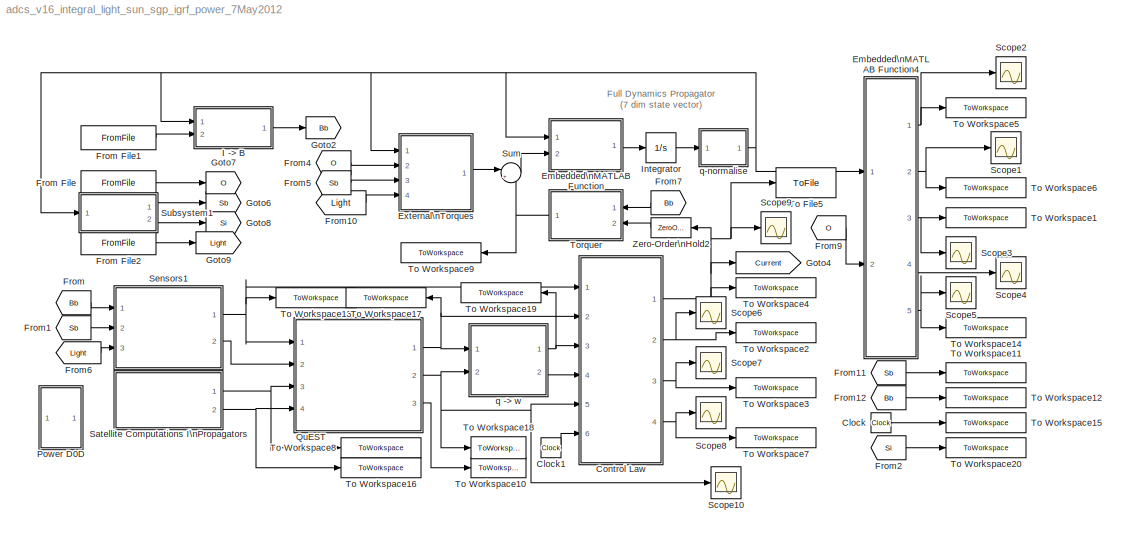
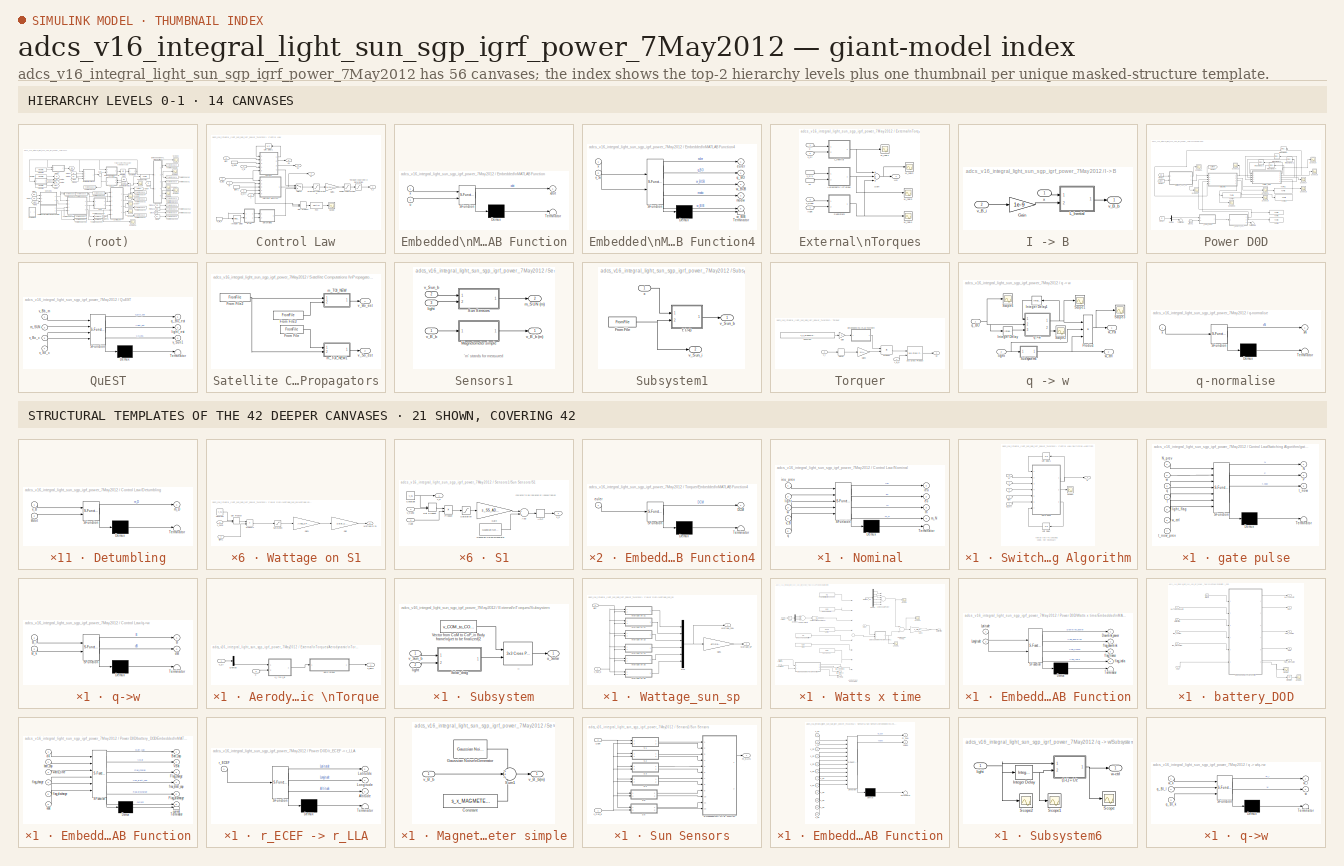
[diagram: thumbnail index - top-2 hierarchy levels (14 canvases) + 21 structural-template representatives of the remaining 42 canvases]
MODEL adcs_v16_integral_light_sun_sgp_igrf_power_7May2012
KIND model
BLOCK [Clock] Clock
  Decimation = 10
  SID = 814
BLOCK [Clock] Clock1
  Decimation = 10
  SID = 927
BLOCK [SubSystem] Control Law
  FunctionWithSeparateData = off
  MaskHideContents = off
  MinAlgLoopOccurrences = off
  Opaque = off
  Ports = [6, 4]
  PropExecContextOutsideSubsystem = off
  RTWSystemCode = Auto
  RequestExecContextInheritance = off
  SID = 892
  SystemSampleTime = s_FRAME_SIZE
  TreatAsAtomicUnit = on
BLOCK [SubSystem] Control Law/Detumbling
  FunctionWithSeparateData = off
  MaskDescription = Embedded MATLAB block
  MaskDisplay = disp('fcn');
  MaskHideContents = off
  MaskIconFrame = on
  MaskIconOpaque = off
  MaskIconRotate = none
  MaskIconUnits = autoscale
  MaskPortRotate = default
  MaskSelfModifiable = on
  MaskType = Stateflow
  MinAlgLoopOccurrences = off
  Opaque = off
  PermitHierarchicalResolution = ExplicitOnly
  Ports = [2, 1]
  PropExecContextOutsideSubsystem = off
  RTWSystemCode = Auto
  RequestExecContextInheritance = off
  SID = 898
  TreatAsAtomicUnit = on
BLOCK [Demux] Control Law/Detumbling/ Demux 
  Outputs = 1
  Ports = [1, 1]
  SID = 12
BLOCK [S-Function] Control Law/Detumbling/ SFunction 
  EnableBusSupport = on
  FunctionName = sf_sfun
  Parameters = Kdetumb,s_MAG_B
  PortCounts = [2 2]
  Ports = [2, 2]
  SID = 11
  Tag = Stateflow S-Function adcs_v16_integral_light_sun_sgp_igrf_power_7May2012 23
BLOCK [Terminator] Control Law/Detumbling/ Terminator 
  SID = 14
BLOCK [Inport] Control Law/Detumbling/Bdot
  IconDisplay = Port number
  Port = 2
  SID = 2
BLOCK [Outport] Control Law/Detumbling/m_D
  IconDisplay = Port number
  OutDataType = sfix(16)
  OutScaling = 2^0
  SID = 6
BLOCK [Inport] Control Law/Detumbling/v_B
  IconDisplay = Port number
  SID = 1
BLOCK [DotProduct] Control Law/Dot Product
  OutDataType = fixdt(1, 16)
  OutDataTypeStr = Inherit: Inherit via internal rule
  OutScaling = 2^-10
  OutputDataTypeScalingMode = Inherit via internal rule
  SID = 963
BLOCK [Fcn] Control Law/Fcn
  Expr = sqrt(u)
  SID = 965
BLOCK [Gain] Control Law/Gain1
  Gain = 1/(N*A)
  OutDataType = sfix(16)
  OutDataTypeMode = Inherit via internal rule
  OutDataTypeStr = Inherit: Inherit via internal rule
  OutScaling = 2^0
  ParamDataTypeStr = Inherit: Inherit via internal rule
  ParameterDataType = sfix(16)
  ParameterDataTypeMode = Inherit via internal rule
  ParameterScaling = 2^0
  SID = 899
  SaturateOnIntegerOverflow = off
BLOCK [Reference] Control Law/Integer Delay  REF=simulink/Discrete/Integer Delay
  NumDelays = 1
  Ports = [1, 1]
  SID = 900
  SourceBlock = simulink/Discrete/Integer Delay
  SourceType = Integer Delay
  samptime = -1
  vinit = 0.0
BLOCK [Saturate] Control Law/Moment\nSaturation
  LowerLimit = -s_m_MAX
  OutDataType = sfix(16)
  OutScaling = 2^0
  Ports = [1, 1]
  SID = 901
  UpperLimit = s_m_MAX
BLOCK [Outport] Control Law/N
  IconDisplay = Port number
  OutDataType = sfix(16)
  OutScaling = 2^0
  Port = 2
  SID = 920
BLOCK [SubSystem] Control Law/Nominal
  FunctionWithSeparateData = off
  MaskDescription = Embedded MATLAB block
  MaskDisplay = disp('fcn');
  MaskHideContents = off
  MaskIconFrame = on
  MaskIconOpaque = off
  MaskIconRotate = none
  MaskIconUnits = autoscale
  MaskPortRotate = default
  MaskSelfModifiable = on
  MaskType = Stateflow
  MinAlgLoopOccurrences = off
  Opaque = off
  PermitHierarchicalResolution = ExplicitOnly
  Ports = [5, 4]
  PropExecContextOutsideSubsystem = off
  RTWSystemCode = Auto
  RequestExecContextInheritance = off
  SID = 902
  TreatAsAtomicUnit = on
BLOCK [Demux] Control Law/Nominal/ Demux 
  Outputs = 1
  Ports = [1, 1]
  SID = 22
BLOCK [S-Function] Control Law/Nominal/ SFunction 
  EnableBusSupport = on
  FunctionName = sf_sfun
  Parameters = Kd,Ki,Kp,s_FRAME_SIZE
  PortCounts = [5 5]
  Ports = [5, 5]
  SID = 21
  Tag = Stateflow S-Function adcs_v16_integral_light_sun_sgp_igrf_power_7May2012 13
BLOCK [Terminator] Control Law/Nominal/ Terminator 
  SID = 24
BLOCK [Outport] Control Law/Nominal/eu
  IconDisplay = Port number
  Port = 2
  SID = 14
BLOCK [Outport] Control Law/Nominal/ieu
  IconDisplay = Port number
  SID = 19
BLOCK [Inport] Control Law/Nominal/ieu_prev
  IconDisplay = Port number
  SID = 17
BLOCK [Inport] Control Law/Nominal/light
  IconDisplay = Port number
  Port = 2
  SID = 12
BLOCK [Outport] Control Law/Nominal/m
  IconDisplay = Port number
  Port = 3
  SID = 13
BLOCK [Outport] Control Law/Nominal/m_N
  IconDisplay = Port number
  OutDataType = sfix(16)
  OutScaling = 2^0
  Port = 4
  SID = 7
BLOCK [Inport] Control Law/Nominal/q
  IconDisplay = Port number
  Port = 5
  SID = 15
BLOCK [Inport] Control Law/Nominal/v_B
  IconDisplay = Port number
  Port = 4
  SID = 2
BLOCK [Inport] Control Law/Nominal/w
  IconDisplay = Port number
  Port = 3
  SID = 1
BLOCK [Saturate] Control Law/Power\nSaturation
  LowerLimit = -I_MAX
  OutDataType = sfix(16)
  OutScaling = 2^0
  Ports = [1, 1]
  SID = 903
  UpperLimit = I_MAX
BLOCK [Scope] Control Law/Scope
  DataFormat = StructureWithTime
  Floating = off
  LimitDataPoints = off
  NumInputPorts = 1
  Ports = [1]
  SID = 964
  SampleTime = 0
  SaveName = ScopeData4
  YMax = 0.11
  YMin = 0
  ZoomMode = xonly
BLOCK [Switch] Control Law/Switch
  InputSameDT = off
  OutDataType = sfix(16)
  OutScaling = 2^0
  SID = 904
  SaturateOnIntegerOverflow = off
  Threshold = 0.5
BLOCK [SubSystem] Control Law/Switching Algorithm
  FunctionWithSeparateData = off
  MaskHideContents = off
  MinAlgLoopOccurrences = off
  Opaque = off
  Ports = [5, 1]
  PropExecContextOutsideSubsystem = off
  RTWSystemCode = Auto
  RequestExecContextInheritance = off
  SID = 905
BLOCK [Outport] Control Law/Switching Algorithm/N
  IconDisplay = Port number
  OutDataType = sfix(16)
  OutScaling = 2^0
  SID = 913
BLOCK [Scope] Control Law/Switching Algorithm/Scope1
  DataFormat = StructureWithTime
  Floating = off
  LimitDataPoints = off
  NumInputPorts = 1
  Ports = [1]
  SID = 966
  SampleTime = 0
  SaveName = ScopeData5
  TimeRange = 140000
  YMax = 1.3
  YMin = 0
  ZoomMode = xonly
BLOCK [UnitDelay] Control Law/Switching Algorithm/Unit Delay
  SID = 911
  SampleTime = -1
BLOCK [UnitDelay] Control Law/Switching Algorithm/Unit Delay1
  SID = 961
  SampleTime = -1
BLOCK [SubSystem] Control Law/Switching Algorithm/gate pulse
  FunctionWithSeparateData = off
  MaskDescription = Embedded MATLAB block
  MaskDisplay = disp('fcn');
  MaskHideContents = off
  MaskIconFrame = on
  MaskIconOpaque = off
  MaskIconRotate = none
  MaskIconUnits = autoscale
  MaskPortRotate = default
  MaskSelfModifiable = on
  MaskType = Stateflow
  MinAlgLoopOccurrences = off
  Opaque = off
  PermitHierarchicalResolution = ExplicitOnly
  Ports = [7, 3]
  PropExecContextOutsideSubsystem = off
  RTWSystemCode = Auto
  RequestExecContextInheritance = off
  SID = 912
  TreatAsAtomicUnit = on
BLOCK [Demux] Control Law/Switching Algorithm/gate pulse/ Demux 
  Outputs = 1
  Ports = [1, 1]
  SID = 21
BLOCK [S-Function] Control Law/Switching Algorithm/gate pulse/ SFunction 
  EnableBusSupport = on
  FunctionName = sf_sfun
  Parameters = check_time,tol_q4,tol_w,tolw_n2d
  PortCounts = [7 4]
  Ports = [7, 4]
  SID = 20
  Tag = Stateflow S-Function adcs_v16_integral_light_sun_sgp_igrf_power_7May2012 24
BLOCK [Terminator] Control Law/Switching Algorithm/gate pulse/ Terminator 
  SID = 23
BLOCK [Outport] Control Law/Switching Algorithm/gate pulse/N
  IconDisplay = Port number
  OutDataType = sfix(16)
  OutScaling = 2^0
  SID = 8
BLOCK [Inport] Control Law/Switching Algorithm/gate pulse/N_prev
  IconDisplay = Port number
  SID = 4
BLOCK [Outport] Control Law/Switching Algorithm/gate pulse/P
  IconDisplay = Port number
  Port = 2
  SID = 19
BLOCK [Inport] Control Law/Switching Algorithm/gate pulse/light_flag
  IconDisplay = Port number
  Port = 5
  SID = 14
BLOCK [Inport] Control Law/Switching Algorithm/gate pulse/q
  IconDisplay = Port number
  Port = 3
  SID = 2
BLOCK [Inport] Control Law/Switching Algorithm/gate pulse/t
  IconDisplay = Port number
  Port = 4
  SID = 3
BLOCK [Outport] Control Law/Switching Algorithm/gate pulse/t_now
  IconDisplay = Port number
  Port = 3
  SID = 9
BLOCK [Inport] Control Law/Switching Algorithm/gate pulse/t_now_prev
  IconDisplay = Port number
  Port = 7
  SID = 16
BLOCK [Inport] Control Law/Switching Algorithm/gate pulse/w
  IconDisplay = Port number
  OutDataType = sfix(16)
  OutScaling = 2^0
  Port = 2
  SID = 1
BLOCK [Inport] Control Law/Switching Algorithm/gate pulse/w_ctrl
  IconDisplay = Port number
  Port = 6
  SID = 15
BLOCK [Inport] Control Law/Switching Algorithm/light
  IconDisplay = Port number
  OutDataType = sfix(16)
  OutScaling = 2^0
  Port = 3
  SID = 908
BLOCK [Inport] Control Law/Switching Algorithm/q
  IconDisplay = Port number
  OutDataType = sfix(16)
  OutScaling = 2^0
  SID = 906
BLOCK [Inport] Control Law/Switching Algorithm/t
  IconDisplay = Port number
  OutDataType = sfix(16)
  OutScaling = 2^0
  Port = 5
  SID = 925
BLOCK [Inport] Control Law/Switching Algorithm/w
  IconDisplay = Port number
  OutDataType = sfix(16)
  OutScaling = 2^0
  Port = 2
  SID = 907
BLOCK [Inport] Control Law/Switching Algorithm/w_ctrl
  IconDisplay = Port number
  OutDataType = sfix(16)
  OutScaling = 2^0
  Port = 4
  SID = 909
BLOCK [Saturate] Control Law/Torquer\nCurrent\nSaturation
  LowerLimit = -I_TORQUER
  OutDataType = sfix(16)
  OutScaling = 2^0
  Ports = [1, 1]
  SID = 914
  UpperLimit = I_TORQUER
BLOCK [UnitDelay] Control Law/Unit Delay1
  SID = 968
  SampleTime = -1
  X0 = [0;0;0]
BLOCK [Outport] Control Law/eu
  IconDisplay = Port number
  OutDataType = sfix(16)
  OutScaling = 2^0
  Port = 3
  SID = 921
BLOCK [Inport] Control Law/light
  IconDisplay = Port number
  OutDataType = sfix(16)
  OutScaling = 2^0
  Port = 5
  SID = 897
BLOCK [InportShadow] Control Law/light1
  IconDisplay = Port number
  LatchByDelayingOutsideSignal = off
  LatchInputForFeedbackSignals = off
  OutDataType = sfix(16)
  OutScaling = 2^0
  Port = 5
  SID = 915
BLOCK [Outport] Control Law/m
  IconDisplay = Port number
  OutDataType = sfix(16)
  OutScaling = 2^0
  Port = 4
  SID = 922
BLOCK [SubSystem] Control Law/q->w
  FunctionWithSeparateData = off
  MaskDescription = Embedded MATLAB block
  MaskDisplay = disp('fcn');
  MaskHideContents = off
  MaskIconFrame = on
  MaskIconOpaque = off
  MaskIconRotate = none
  MaskIconUnits = autoscale
  MaskPortRotate = default
  MaskSelfModifiable = on
  MaskType = Stateflow
  MinAlgLoopOccurrences = off
  Opaque = off
  PermitHierarchicalResolution = ExplicitOnly
  Ports = [2, 2]
  PropExecContextOutsideSubsystem = off
  RTWSystemCode = Auto
  RequestExecContextInheritance = off
  SID = 916
  TreatAsAtomicUnit = on
BLOCK [Demux] Control Law/q->w/ Demux 
  Outputs = 1
  Ports = [1, 1]
  SID = 14
BLOCK [S-Function] Control Law/q->w/ SFunction 
  EnableBusSupport = on
  FunctionName = sf_sfun
  Parameters = s_FRAME_SIZE
  PortCounts = [2 3]
  Ports = [2, 3]
  SID = 13
  Tag = Stateflow S-Function adcs_v16_integral_light_sun_sgp_igrf_power_7May2012 10
BLOCK [Terminator] Control Law/q->w/ Terminator 
  SID = 16
BLOCK [Outport] Control Law/q->w/B
  IconDisplay = Port number
  SID = 12
BLOCK [Inport] Control Law/q->w/B_k
  IconDisplay = Port number
  Port = 2
  SID = 2
BLOCK [Inport] Control Law/q->w/B_l
  IconDisplay = Port number
  SID = 1
BLOCK [Outport] Control Law/q->w/dB
  IconDisplay = Port number
  OutDataType = sfix(16)
  OutScaling = 2^0
  Port = 2
  SID = 7
BLOCK [Inport] Control Law/q_BO
  IconDisplay = Port number
  OutDataType = sfix(16)
  OutScaling = 2^0
  Port = 2
  SID = 894
BLOCK [Inport] Control Law/t
  IconDisplay = Port number
  OutDataType = sfix(16)
  OutScaling = 2^0
  Port = 6
  SID = 926
BLOCK [Inport] Control Law/v_B
  IconDisplay = Port number
  OutDataType = sfix(16)
  OutScaling = 2^0
  SID = 893
BLOCK [InportShadow] Control Law/v_B_1
  IconDisplay = Port number
  LatchByDelayingOutsideSignal = off
  LatchInputForFeedbackSignals = off
  OutDataType = sfix(16)
  OutScaling = 2^0
  Port = 1
  SID = 917
BLOCK [Outport] Control Law/v_i
  IconDisplay = Port number
  OutDataType = sfix(16)
  OutScaling = 2^0
  SID = 919
BLOCK [Inport] Control Law/w
  IconDisplay = Port number
  OutDataType = sfix(16)
  OutScaling = 2^0
  Port = 3
  SID = 895
BLOCK [InportShadow] Control Law/w_BOB
  IconDisplay = Port number
  LatchByDelayingOutsideSignal = off
  LatchInputForFeedbackSignals = off
  OutDataType = sfix(16)
  OutScaling = 2^0
  Port = 3
  SID = 918
BLOCK [Inport] Control Law/w_ctrl
  IconDisplay = Port number
  OutDataType = sfix(16)
  OutScaling = 2^0
  Port = 4
  SID = 896
BLOCK [SubSystem] Embedded\nMATLAB Function
  FunctionWithSeparateData = off
  MaskDescription = Embedded MATLAB block
  MaskDisplay = disp('fcn');
  MaskHideContents = off
  MaskIconFrame = on
  MaskIconOpaque = off
  MaskIconRotate = none
  MaskIconUnits = autoscale
  MaskPortRotate = default
  MaskSelfModifiable = on
  MaskType = Stateflow
  MinAlgLoopOccurrences = off
  Opaque = off
  PermitHierarchicalResolution = ExplicitOnly
  Ports = [2, 1]
  PropExecContextOutsideSubsystem = off
  RTWSystemCode = Auto
  RequestExecContextInheritance = off
  SID = 13
  TreatAsAtomicUnit = on
BLOCK [Demux] Embedded\nMATLAB Function/ Demux 
  Outputs = 1
  Ports = [1, 1]
  SID = 12
BLOCK [S-Function] Embedded\nMATLAB Function/ SFunction 
  EnableBusSupport = on
  FunctionName = sf_sfun
  Parameters = m_INERTIA
  PortCounts = [2 2]
  Ports = [2, 2]
  SID = 11
  Tag = Stateflow S-Function adcs_v16_integral_light_sun_sgp_igrf_power_7May2012 2
BLOCK [Terminator] Embedded\nMATLAB Function/ Terminator 
  SID = 14
BLOCK [Inport] Embedded\nMATLAB Function/u
  IconDisplay = Port number
  OutDataType = sfix(16)
  OutScaling = 2^0
  Port = 2
  SID = 2
BLOCK [Inport] Embedded\nMATLAB Function/x
  IconDisplay = Port number
  SID = 1
BLOCK [Outport] Embedded\nMATLAB Function/xdot
  IconDisplay = Port number
  OutDataType = sfix(16)
  OutScaling = 2^0
  SID = 6
BLOCK [SubSystem] Embedded\nMATLAB Function4
  FunctionWithSeparateData = off
  MaskDescription = Embedded MATLAB block
  MaskDisplay = disp('a');
  MaskHideContents = off
  MaskIconFrame = on
  MaskIconOpaque = off
  MaskIconRotate = none
  MaskIconUnits = autoscale
  MaskPortRotate = default
  MaskSelfModifiable = on
  MaskType = Stateflow
  MinAlgLoopOccurrences = off
  Opaque = off
  PermitHierarchicalResolution = ExplicitOnly
  Ports = [2, 5]
  PropExecContextOutsideSubsystem = off
  RTWSystemCode = Auto
  RequestExecContextInheritance = off
  SID = 599
  TreatAsAtomicUnit = on
BLOCK [Demux] Embedded\nMATLAB Function4/ Demux 
  Outputs = 1
  Ports = [1, 1]
  SID = 17
BLOCK [S-Function] Embedded\nMATLAB Function4/ SFunction 
  EnableBusSupport = on
  FunctionName = sf_sfun
  Parameters = s_W_SAT
  PortCounts = [2 6]
  Ports = [2, 6]
  SID = 16
  Tag = Stateflow S-Function adcs_v16_integral_light_sun_sgp_igrf_power_7May2012 29
BLOCK [Terminator] Embedded\nMATLAB Function4/ Terminator 
  SID = 19
BLOCK [Outport] Embedded\nMATLAB Function4/euler
  IconDisplay = Port number
  SID = 6
BLOCK [Outport] Embedded\nMATLAB Function4/modw
  IconDisplay = Port number
  Port = 4
  SID = 13
BLOCK [Outport] Embedded\nMATLAB Function4/q_BO
  IconDisplay = Port number
  OutDataType = sfix(16)
  OutScaling = 2^0
  Port = 2
  SID = 7
BLOCK [Inport] Embedded\nMATLAB Function4/v_Si
  IconDisplay = Port number
  OutDataType = sfix(16)
  OutScaling = 2^0
  Port = 2
  SID = 1
BLOCK [Outport] Embedded\nMATLAB Function4/w_BIB
  IconDisplay = Port number
  Port = 5
  SID = 15
BLOCK [Outport] Embedded\nMATLAB Function4/w_BOB
  IconDisplay = Port number
  Port = 3
  SID = 12
BLOCK [Inport] Embedded\nMATLAB Function4/x
  IconDisplay = Port number
  SID = 2
BLOCK [SubSystem] External\nTorques
  FunctionWithSeparateData = off
  MaskHideContents = off
  MinAlgLoopOccurrences = off
  Opaque = off
  Ports = [4, 1]
  PropExecContextOutsideSubsystem = off
  RTWSystemCode = Auto
  RequestExecContextInheritance = off
  SID = 14
BLOCK [SubSystem] External\nTorques/Aerodynamic \nTorque
  FunctionWithSeparateData = off
  MaskHideContents = off
  MinAlgLoopOccurrences = off
  Opaque = off
  Ports = [2, 1]
  PropExecContextOutsideSubsystem = off
  RTWSystemCode = Auto
  RequestExecContextInheritance = off
  SID = 18
BLOCK [Demux] External\nTorques/Aerodynamic \nTorque/Demux
  DisplayOption = bar
  Outputs = 2
  Ports = [1, 2]
  SID = 25
BLOCK [SubSystem] External\nTorques/Aerodynamic \nTorque/aero torque
  FunctionWithSeparateData = off
  MaskDescription = Embedded MATLAB block
  MaskDisplay = disp('fcn');
  MaskHideContents = off
  MaskIconFrame = on
  MaskIconOpaque = off
  MaskIconRotate = none
  MaskIconUnits = autoscale
  MaskPortRotate = default
  MaskSelfModifiable = on
  MaskType = Stateflow
  MinAlgLoopOccurrences = off
  Opaque = off
  PermitHierarchicalResolution = ExplicitOnly
  Ports = [1, 1]
  PropExecContextOutsideSubsystem = off
  RTWSystemCode = Auto
  RequestExecContextInheritance = off
  SID = 38
  TreatAsAtomicUnit = on
BLOCK [Demux] External\nTorques/Aerodynamic \nTorque/aero torque/ Demux 
  Outputs = 1
  Ports = [1, 1]
  SID = 14
BLOCK [S-Function] External\nTorques/Aerodynamic \nTorque/aero torque/ SFunction 
  EnableBusSupport = on
  FunctionName = sf_sfun
  Parameters = Cd,side,v_COM_to_COP_b
  PortCounts = [1 2]
  Ports = [1, 2]
  SID = 13
  Tag = Stateflow S-Function adcs_v16_integral_light_sun_sgp_igrf_power_7May2012 16
BLOCK [Terminator] External\nTorques/Aerodynamic \nTorque/aero torque/ Terminator 
  SID = 16
BLOCK [Outport] External\nTorques/Aerodynamic \nTorque/aero torque/u_aero
  IconDisplay = Port number
  OutDataType = sfix(16)
  OutScaling = 2^0
  SID = 5
BLOCK [Inport] External\nTorques/Aerodynamic \nTorque/aero torque/v_B
  IconDisplay = Port number
  OutDataType = sfix(16)
  OutScaling = 2^0
  SID = 1
BLOCK [Outport] External\nTorques/Aerodynamic \nTorque/u_aero
  IconDisplay = Port number
  OutDataType = sfix(16)
  OutScaling = 2^0
  SID = 41
BLOCK [SubSystem] External\nTorques/Aerodynamic \nTorque/v_I to v_B
  FunctionWithSeparateData = off
  MaskDescription = Embedded MATLAB block
  MaskDisplay = disp('fcn');
  MaskHideContents = off
  MaskIconFrame = on
  MaskIconOpaque = off
  MaskIconRotate = none
  MaskIconUnits = autoscale
  MaskPortRotate = default
  MaskSelfModifiable = on
  MaskType = Stateflow
  MinAlgLoopOccurrences = off
  Opaque = off
  PermitHierarchicalResolution = ExplicitOnly
  Ports = [2, 1]
  PropExecContextOutsideSubsystem = off
  RTWSystemCode = Auto
  RequestExecContextInheritance = off
  SID = 40
  TreatAsAtomicUnit = on
BLOCK [Demux] External\nTorques/Aerodynamic \nTorque/v_I to v_B/ Demux 
  Outputs = 1
  Ports = [1, 1]
  SID = 12
BLOCK [S-Function] External\nTorques/Aerodynamic \nTorque/v_I to v_B/ SFunction 
  EnableBusSupport = on
  FunctionName = sf_sfun
  PortCounts = [2 2]
  Ports = [2, 2]
  SID = 11
  Tag = Stateflow S-Function adcs_v16_integral_light_sun_sgp_igrf_power_7May2012 20
BLOCK [Terminator] External\nTorques/Aerodynamic \nTorque/v_I to v_B/ Terminator 
  SID = 14
BLOCK [Outport] External\nTorques/Aerodynamic \nTorque/v_I to v_B/v_B
  IconDisplay = Port number
  OutDataType = sfix(16)
  OutScaling = 2^0
  SID = 6
BLOCK [Inport] External\nTorques/Aerodynamic \nTorque/v_I to v_B/v_I
  IconDisplay = Port number
  SID = 1
BLOCK [Inport] External\nTorques/Aerodynamic \nTorque/v_I to v_B/x
  IconDisplay = Port number
  Port = 2
  SID = 2
BLOCK [Inport] External\nTorques/Aerodynamic \nTorque/v_Si
  IconDisplay = Port number
  SID = 19
BLOCK [Inport] External\nTorques/Aerodynamic \nTorque/x
  IconDisplay = Port number
  Port = 2
  SID = 20
BLOCK [SubSystem] External\nTorques/L_Inertial
  FunctionWithSeparateData = off
  MaskDescription = Embedded MATLAB block
  MaskDisplay = disp('fcn');
  MaskHideContents = off
  MaskIconFrame = on
  MaskIconOpaque = off
  MaskIconRotate = none
  MaskIconUnits = autoscale
  MaskPortRotate = default
  MaskSelfModifiable = on
  MaskType = Stateflow
  MinAlgLoopOccurrences = off
  Opaque = off
  PermitHierarchicalResolution = ExplicitOnly
  Ports = [2, 1]
  PropExecContextOutsideSubsystem = off
  RTWSystemCode = Auto
  RequestExecContextInheritance = off
  SID = 42
  TreatAsAtomicUnit = on
BLOCK [Demux] External\nTorques/L_Inertial/ Demux 
  Outputs = 1
  Ports = [1, 1]
  SID = 12
BLOCK [S-Function] External\nTorques/L_Inertial/ SFunction 
  EnableBusSupport = on
  FunctionName = sf_sfun
  Parameters = m_INERTIA,mu
  PortCounts = [2 2]
  Ports = [2, 2]
  SID = 11
  Tag = Stateflow S-Function adcs_v16_integral_light_sun_sgp_igrf_power_7May2012 9
BLOCK [Terminator] External\nTorques/L_Inertial/ Terminator 
  SID = 14
BLOCK [Outport] External\nTorques/L_Inertial/tau
  IconDisplay = Port number
  OutDataType = sfix(16)
  OutScaling = 2^0
  SID = 6
BLOCK [Inport] External\nTorques/L_Inertial/v_Si
  IconDisplay = Port number
  Port = 2
  SID = 2
BLOCK [Inport] External\nTorques/L_Inertial/x
  IconDisplay = Port number
  SID = 1
BLOCK [SubSystem] External\nTorques/Subsystem
  FunctionWithSeparateData = off
  MaskHideContents = off
  MinAlgLoopOccurrences = off
  Opaque = off
  Ports = [2, 1]
  PropExecContextOutsideSubsystem = off
  RTWSystemCode = Auto
  RequestExecContextInheritance = off
  SID = 736
BLOCK [SubSystem] External\nTorques/Subsystem/Solar_drag
  FunctionWithSeparateData = off
  MaskDescription = Embedded MATLAB block
  MaskDisplay = disp('fcn');
  MaskHideContents = off
  MaskIconFrame = on
  MaskIconOpaque = off
  MaskIconRotate = none
  MaskIconUnits = autoscale
  MaskPortRotate = default
  MaskSelfModifiable = on
  MaskType = Stateflow
  MinAlgLoopOccurrences = off
  Opaque = off
  PermitHierarchicalResolution = ExplicitOnly
  Ports = [2, 1]
  PropExecContextOutsideSubsystem = off
  RTWSystemCode = Auto
  RequestExecContextInheritance = off
  SID = 728
  TreatAsAtomicUnit = on
BLOCK [Demux] External\nTorques/Subsystem/Solar_drag/ Demux 
  Outputs = 1
  Ports = [1, 1]
  SID = 16
BLOCK [S-Function] External\nTorques/Subsystem/Solar_drag/ SFunction 
  EnableBusSupport = on
  FunctionName = sf_sfun
  Parameters = Ca_Solar_Drag,P_momentum_flux_from_the_sun,side
  PortCounts = [2 2]
  Ports = [2, 2]
  SID = 15
  Tag = Stateflow S-Function adcs_v16_integral_light_sun_sgp_igrf_power_7May2012 8
BLOCK [Terminator] External\nTorques/Subsystem/Solar_drag/ Terminator 
  SID = 18
BLOCK [Inport] External\nTorques/Subsystem/Solar_drag/light
  IconDisplay = Port number
  Port = 2
  SID = 13
BLOCK [Outport] External\nTorques/Subsystem/Solar_drag/solar_drag
  IconDisplay = Port number
  OutDataType = sfix(16)
  OutScaling = 2^0
  SID = 8
BLOCK [Inport] External\nTorques/Subsystem/Solar_drag/v_Sun_b
  IconDisplay = Port number
  OutDataType = sfix(16)
  OutScaling = 2^0
  SID = 1
BLOCK [Constant] External\nTorques/Subsystem/Vector from CoM to CoP_in Body frame\n(yet to be finalized)2
  OutDataType = sfix(16)
  OutScaling = 2^0
  SID = 729
  Value = v_COM_to_COP_b
  VectorParams1D = off
BLOCK [Reference] External\nTorques/Subsystem/_  REF=aerolibutil/3x3 Cross Product
  FunctionWithSeparateData = off
  Ports = [2, 1]
  RTWMemSecDataConstants = Inherit from model
  RTWMemSecDataInternal = Inherit from model
  RTWMemSecDataParameters = Inherit from model
  RTWMemSecFuncExecute = Inherit from model
  RTWMemSecFuncInitTerm = Inherit from model
  SID = 730
  ShowPortLabels = FromPortIcon
  SourceBlock = aerolibutil/3x3 Cross Product
  SourceType = CrossProduct
  SystemSampleTime = -1
BLOCK [Inport] External\nTorques/Subsystem/light
  IconDisplay = Port number
  OutDataType = sfix(16)
  OutScaling = 2^0
  Port = 2
  SID = 739
BLOCK [Outport] External\nTorques/Subsystem/u_Solar
  IconDisplay = Port number
  OutDataType = sfix(16)
  OutScaling = 2^0
  SID = 738
BLOCK [Inport] External\nTorques/Subsystem/v_Sun_b
  IconDisplay = Port number
  OutDataType = sfix(16)
  OutScaling = 2^0
  SID = 737
BLOCK [Sum] External\nTorques/Sum
  InputSameDT = off
  Inputs = +++
  OutDataType = fixdt(1, 16)
  OutDataTypeMode = Inherit via internal rule
  OutDataTypeStr = Inherit: Inherit via internal rule
  OutScaling = 2^0
  Ports = [3, 1]
  SID = 43
  SaturateOnIntegerOverflow = off
BLOCK [Outport] External\nTorques/Ud
  IconDisplay = Port number
  OutDataType = sfix(16)
  OutScaling = 2^0
  SID = 50
BLOCK [Inport] External\nTorques/light
  IconDisplay = Port number
  OutDataType = sfix(16)
  OutScaling = 2^0
  Port = 4
  SID = 744
BLOCK [Inport] External\nTorques/v_Si
  IconDisplay = Port number
  OutDataType = sfix(16)
  OutScaling = 2^0
  Port = 2
  SID = 16
BLOCK [InportShadow] External\nTorques/v_Si1
  IconDisplay = Port number
  LatchByDelayingOutsideSignal = off
  LatchInputForFeedbackSignals = off
  OutDataType = sfix(16)
  OutScaling = 2^0
  Port = 2
  SID = 45
BLOCK [Inport] External\nTorques/v_Sunb
  IconDisplay = Port number
  OutDataType = sfix(16)
  OutScaling = 2^0
  Port = 3
  SID = 17
BLOCK [Scope] External\nTorques/w_real1
  DataFormat = StructureWithTime
  Floating = off
  LimitDataPoints = off
  NumInputPorts = 1
  Ports = [1]
  SID = 47
  SampleInput = on
  SampleTime = 5
  SaveName = ScopeData18
  TimeRange = 80000
  YMax = 1.1e-008
  YMin = -3e-009
  ZoomMode = xonly
BLOCK [Scope] External\nTorques/w_real2
  DataFormat = StructureWithTime
  Floating = off
  LimitDataPoints = off
  NumInputPorts = 1
  Ports = [1]
  SID = 741
  SampleInput = on
  SampleTime = 5
  SaveName = ScopeData17
  TimeRange = 80000
  YMax = 1e-008
  YMin = -7e-009
  ZoomMode = xonly
BLOCK [Scope] External\nTorques/w_real3
  DataFormat = StructureWithTime
  Floating = off
  LimitDataPoints = off
  NumInputPorts = 1
  Ports = [1]
  SID = 742
  SampleInput = on
  SampleTime = 5
  SaveName = ScopeData19
  YMax = 1.4e-009
  YMin = -8e-010
  ZoomMode = xonly
BLOCK [Scope] External\nTorques/w_real4
  DataFormat = StructureWithTime
  Floating = off
  LimitDataPoints = off
  NumInputPorts = 1
  Ports = [1]
  SID = 743
  SampleInput = on
  SampleTime = 5
  SaveName = ScopeData22
  YMax = 1e-008
  YMin = -6e-009
  ZoomMode = xonly
BLOCK [Inport] External\nTorques/x
  IconDisplay = Port number
  OutDataType = sfix(16)
  OutScaling = 2^0
  SID = 15
BLOCK [InportShadow] External\nTorques/x1
  IconDisplay = Port number
  LatchByDelayingOutsideSignal = off
  LatchInputForFeedbackSignals = off
  OutDataType = sfix(16)
  OutScaling = 2^0
  Port = 1
  SID = 49
BLOCK [From] From
  GotoTag = Bb
  SID = 51
BLOCK [FromFile] From File
  FileName = SGP_120k
  SID = 1350
BLOCK [FromFile] From File1
  FileName = Bi_120k
  SID = 1333
BLOCK [FromFile] From File2
  FileName = light_120k
  SID = 1351
  SampleTime = 0
BLOCK [From] From1
  GotoTag = Sb
  SID = 52
BLOCK [From] From10
  GotoTag = Light
  SID = 745
BLOCK [From] From11
  GotoTag = Sb
  SID = 804
BLOCK [From] From12
  GotoTag = Bb
  SID = 805
BLOCK [From] From2
  GotoTag = Si
  SID = 954
BLOCK [From] From4
  GotoTag = O
  SID = 55
BLOCK [From] From5
  GotoTag = Sb
  SID = 56
BLOCK [From] From6
  GotoTag = Light
  SID = 57
BLOCK [From] From7
  GotoTag = Bb
  SID = 58
BLOCK [From] From9
  GotoTag = O
  SID = 600
BLOCK [Goto] Goto2
  GotoTag = Bb
  SID = 62
  TagVisibility = local
BLOCK [Goto] Goto4
  GotoTag = Current
  SID = 1154
  TagVisibility = local
BLOCK [Goto] Goto6
  GotoTag = Sb
  SID = 1352
  TagVisibility = local
BLOCK [Goto] Goto7
  GotoTag = O
  SID = 1353
  TagVisibility = local
BLOCK [Goto] Goto8
  GotoTag = Si
  SID = 1354
  TagVisibility = local
BLOCK [Goto] Goto9
  GotoTag = Light
  SID = 1355
  TagVisibility = local
BLOCK [SubSystem] I -> B
  FunctionWithSeparateData = off
  MaskHideContents = off
  MinAlgLoopOccurrences = off
  Opaque = off
  Ports = [2, 1]
  PropExecContextOutsideSubsystem = off
  RTWSystemCode = Auto
  RequestExecContextInheritance = off
  SID = 323
BLOCK [Gain] I -> B/Gain
  Gain = 1e-9
  OutDataType = fixdt(1, 16)
  OutDataTypeMode = Inherit via internal rule
  OutDataTypeStr = Inherit: Inherit via internal rule
  OutScaling = 2^0
  ParamDataTypeStr = Inherit: Inherit via internal rule
  ParameterDataType = fixdt(1, 16)
  ParameterDataTypeMode = Inherit via internal rule
  ParameterScaling = 2^0
  SID = 820
  SaturateOnIntegerOverflow = off
BLOCK [SubSystem] I -> B/L_Inertial
  FunctionWithSeparateData = off
  MaskDescription = Embedded MATLAB block
  MaskDisplay = disp('fcn');
  MaskHideContents = off
  MaskIconFrame = on
  MaskIconOpaque = off
  MaskIconRotate = none
  MaskIconUnits = autoscale
  MaskPortRotate = default
  MaskSelfModifiable = on
  MaskType = Stateflow
  MinAlgLoopOccurrences = off
  Opaque = off
  PermitHierarchicalResolution = ExplicitOnly
  Ports = [2, 1]
  PropExecContextOutsideSubsystem = off
  RTWSystemCode = Auto
  RequestExecContextInheritance = off
  SID = 326
  TreatAsAtomicUnit = on
BLOCK [Demux] I -> B/L_Inertial/ Demux 
  Outputs = 1
  Ports = [1, 1]
  SID = 12
BLOCK [S-Function] I -> B/L_Inertial/ SFunction 
  EnableBusSupport = on
  FunctionName = sf_sfun
  PortCounts = [2 2]
  Ports = [2, 2]
  SID = 11
  Tag = Stateflow S-Function adcs_v16_integral_light_sun_sgp_igrf_power_7May2012 5
BLOCK [Terminator] I -> B/L_Inertial/ Terminator 
  SID = 14
BLOCK [Outport] I -> B/L_Inertial/v_B
  IconDisplay = Port number
  OutDataType = sfix(16)
  OutScaling = 2^0
  SID = 6
BLOCK [Inport] I -> B/L_Inertial/v_I
  IconDisplay = Port number
  Port = 2
  SID = 2
BLOCK [Inport] I -> B/L_Inertial/x
  IconDisplay = Port number
  SID = 1
BLOCK [Outport] I -> B/v_B_b
  IconDisplay = Port number
  OutDataType = sfix(16)
  OutScaling = 2^0
  SID = 357
BLOCK [Inport] I -> B/v_B_i
  IconDisplay = Port number
  OutDataType = sfix(16)
  OutScaling = 2^0
  Port = 2
  SID = 823
BLOCK [Inport] I -> B/x
  IconDisplay = Port number
  OutDataType = sfix(16)
  OutScaling = 2^0
  SID = 324
BLOCK [Integrator] Integrator
  InitialCondition = [q_BI0; wx0; wy0; wz0]
  Ports = [1, 1]
  SID = 65
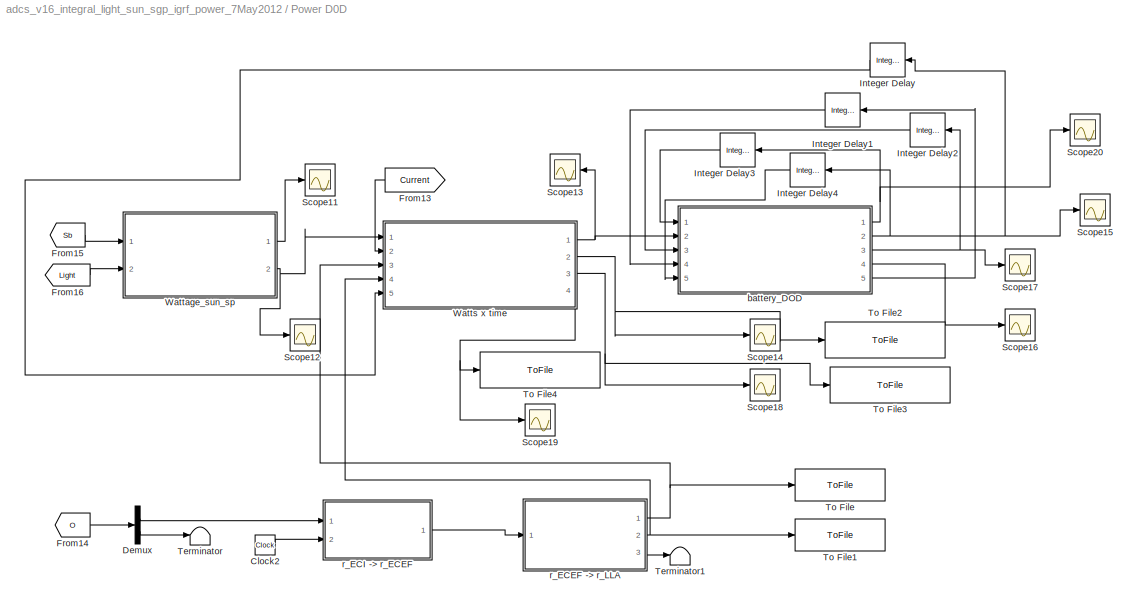
BLOCK [SubSystem] Power D0D
  FunctionWithSeparateData = off
  MaskHideContents = off
  MinAlgLoopOccurrences = off
  Opaque = off
  Ports = []
  PropExecContextOutsideSubsystem = off
  RTWSystemCode = Auto
  RequestExecContextInheritance = off
  SID = 1188
BLOCK [Clock] Power D0D/Clock2
  Decimation = 10
  SID = 1190
BLOCK [Demux] Power D0D/Demux
  DisplayOption = bar
  Outputs = 2
  Ports = [1, 2]
  SID = 1191
BLOCK [From] Power D0D/From13
  GotoTag = Current
  SID = 1192
BLOCK [From] Power D0D/From14
  GotoTag = O
  SID = 1193
BLOCK [From] Power D0D/From15
  GotoTag = Sb
  SID = 1194
BLOCK [From] Power D0D/From16
  GotoTag = Light
  SID = 1195
BLOCK [Reference] Power D0D/Integer Delay  REF=simulink/Discrete/Integer Delay
  NumDelays = 1
  Ports = [1, 1]
  SID = 1196
  SourceBlock = simulink/Discrete/Integer Delay
  SourceType = Integer Delay
  samptime = -1
  vinit = 0.0
BLOCK [Reference] Power D0D/Integer Delay1  REF=simulink/Discrete/Integer Delay
  NumDelays = 1
  Ports = [1, 1]
  SID = 1197
  SourceBlock = simulink/Discrete/Integer Delay
  SourceType = Integer Delay
  samptime = -1
  vinit = 0.0
BLOCK [Reference] Power D0D/Integer Delay2  REF=simulink/Discrete/Integer Delay
  NumDelays = 1
  Ports = [1, 1]
  SID = 1198
  SourceBlock = simulink/Discrete/Integer Delay
  SourceType = Integer Delay
  samptime = -1
  vinit = 0.0
BLOCK [Reference] Power D0D/Integer Delay3  REF=simulink/Discrete/Integer Delay
  NumDelays = 1
  Ports = [1, 1]
  SID = 1199
  SourceBlock = simulink/Discrete/Integer Delay
  SourceType = Integer Delay
  samptime = -1
  vinit = 0.0
BLOCK [Reference] Power D0D/Integer Delay4  REF=simulink/Discrete/Integer Delay
  NumDelays = 1
  Ports = [1, 1]
  SID = 1200
  SourceBlock = simulink/Discrete/Integer Delay
  SourceType = Integer Delay
  samptime = -1
  vinit = 0.0
BLOCK [Scope] Power D0D/Scope11
  DataFormat = StructureWithTime
  Floating = off
  LimitDataPoints = off
  NumInputPorts = 1
  Ports = [1]
  SID = 1201
  SampleInput = on
  SampleTime = Ts_display
  SaveName = ScopeData29
  YMax = 47.5
  YMin = 0
BLOCK [Scope] Power D0D/Scope12
  DataFormat = StructureWithTime
  Floating = off
  LimitDataPoints = off
  NumInputPorts = 1
  Ports = [1]
  SID = 1202
  SampleInput = on
  SampleTime = Ts_display
  SaveName = ScopeData30
  YMax = 8
  YMin = 0
BLOCK [Scope] Power D0D/Scope13
  DataFormat = StructureWithTime
  Floating = off
  LimitDataPoints = off
  NumInputPorts = 1
  Ports = [1]
  SID = 1203
  SampleInput = on
  SampleTime = Ts_display
  SaveName = ScopeData31
  YMax = 1.1
  YMin = -0.5
  ZoomMode = xonly
BLOCK [Scope] Power D0D/Scope14
  DataFormat = StructureWithTime
  Floating = off
  LimitDataPoints = off
  NumInputPorts = 1
  Ports = [1]
  SID = 1204
  SampleInput = on
  SampleTime = Ts_display
  SaveName = ScopeData25
  YMax = 1
  YMin = 0
  ZoomMode = xonly
BLOCK [Scope] Power D0D/Scope15
  DataFormat = StructureWithTime
  Floating = off
  LimitDataPoints = off
  NumInputPorts = 1
  Ports = [1]
  SID = 1205
  SampleInput = on
  SampleTime = Ts_display
  SaveName = ScopeData26
  YMax = 4.3
  YMin = 2.9
  ZoomMode = yonly
BLOCK [Scope] Power D0D/Scope16
  DataFormat = StructureWithTime
  Floating = off
  LimitDataPoints = off
  NumInputPorts = 1
  Ports = [1]
  SID = 1206
  SampleInput = on
  SampleTime = Ts_display
  SaveName = ScopeData27
  YMax = 0.945369
  YMin = 0.945369
BLOCK [Scope] Power D0D/Scope17
  DataFormat = StructureWithTime
  Floating = off
  LimitDataPoints = off
  NumInputPorts = 1
  Ports = [1]
  SID = 1207
  SampleInput = on
  SampleTime = Ts_display
  SaveName = ScopeData28
  YMin = -60
  ZoomMode = yonly
BLOCK [Scope] Power D0D/Scope18
  DataFormat = StructureWithTime
  Floating = off
  LimitDataPoints = off
  NumInputPorts = 1
  Ports = [1]
  SID = 1208
  SampleInput = on
  SampleTime = Ts_display
  SaveName = ScopeData32
  YMax = 1
  YMin = -1
  ZoomMode = xonly
BLOCK [Scope] Power D0D/Scope19
  DataFormat = StructureWithTime
  Floating = off
  LimitDataPoints = off
  NumInputPorts = 1
  Ports = [1]
  SID = 1209
  SampleInput = on
  SampleTime = Ts_display
  SaveName = ScopeData33
  YMax = 1
  YMin = -1
  ZoomMode = xonly
BLOCK [Scope] Power D0D/Scope20
  DataFormat = StructureWithTime
  Floating = off
  LimitDataPoints = off
  NumInputPorts = 1
  Ports = [1]
  SID = 1210
  SampleInput = on
  SampleTime = Ts_display
  SaveName = ScopeData37
  YMax = 2100
  YMin = 1000
  ZoomMode = yonly
BLOCK [Terminator] Power D0D/Terminator
  SID = 1211
BLOCK [Terminator] Power D0D/Terminator1
  SID = 1332
BLOCK [ToFile] Power D0D/To File
  Filename = Latitude.mat
  SID = 1212
BLOCK [ToFile] Power D0D/To File1
  Filename = Longitude.mat
  SID = 1213
BLOCK [ToFile] Power D0D/To File2
  Filename = flag_downlink.mat
  SID = 1214
BLOCK [ToFile] Power D0D/To File3
  Filename = flag_france.mat
  SID = 1215
BLOCK [ToFile] Power D0D/To File4
  Filename = flag_india.mat
  SID = 1216
BLOCK [SubSystem] Power D0D/Wattage_sun_sp
  FunctionWithSeparateData = off
  MaskHideContents = off
  MinAlgLoopOccurrences = off
  Opaque = off
  Ports = [2, 2]
  PropExecContextOutsideSubsystem = off
  RTWSystemCode = Auto
  RequestExecContextInheritance = off
  SID = 1217
BLOCK [Gain] Power D0D/Wattage_sun_sp/Gain1
  Gain = efficiany_solar_cell
  OutDataType = sfix(16)
  OutDataTypeMode = Inherit via internal rule
  OutDataTypeStr = Inherit: Inherit via internal rule
  OutScaling = 2^0
  ParamDataTypeStr = Inherit: Inherit via internal rule
  ParameterDataType = sfix(16)
  ParameterDataTypeMode = Inherit via internal rule
  ParameterScaling = 2^0
  SID = 1220
  SaturateOnIntegerOverflow = off
BLOCK [Mux] Power D0D/Wattage_sun_sp/Mux
  DisplayOption = bar
  Inputs = 6
  Ports = [6, 1]
  SID = 1221
BLOCK [SubSystem] Power D0D/Wattage_sun_sp/Wattage on S1
  FunctionWithSeparateData = off
  MaskHideContents = off
  MinAlgLoopOccurrences = off
  Opaque = off
  Ports = [2, 1]
  PropExecContextOutsideSubsystem = off
  RTWSystemCode = Auto
  RequestExecContextInheritance = off
  SID = 1222
BLOCK [Constant] Power D0D/Wattage_sun_sp/Wattage on S1/Constant
  OutDataType = sfix(16)
  OutScaling = 2^0
  SID = 1225
  Value = v_S1
BLOCK [DotProduct] Power D0D/Wattage_sun_sp/Wattage on S1/Dot Product
  OutDataType = sfix(16)
  OutDataTypeStr = Inherit: Inherit via internal rule
  OutScaling = 2^-10
  OutputDataTypeScalingMode = Inherit via internal rule
  SID = 1226
BLOCK [Gain] Power D0D/Wattage_sun_sp/Wattage on S1/Gain
  Gain = Solar_Constant
  OutDataType = sfix(16)
  OutDataTypeMode = Inherit via internal rule
  OutDataTypeStr = Inherit: Inherit via internal rule
  OutScaling = 2^0
  ParamDataTypeStr = Inherit: Inherit via internal rule
  ParameterDataType = sfix(16)
  ParameterDataTypeMode = Inherit via internal rule
  ParameterScaling = 2^0
  SID = 1227
  SaturateOnIntegerOverflow = off
BLOCK [Gain] Power D0D/Wattage_sun_sp/Wattage on S1/Gain1
  Gain = Area_SP_S1
  OutDataType = sfix(16)
  OutDataTypeMode = Inherit via internal rule
  OutDataTypeStr = Inherit: Inherit via internal rule
  OutScaling = 2^0
  ParamDataTypeStr = Inherit: Inherit via internal rule
  ParameterDataType = sfix(16)
  ParameterDataTypeMode = Inherit via internal rule
  ParameterScaling = 2^0
  SID = 1228
  SaturateOnIntegerOverflow = off
BLOCK [Product] Power D0D/Wattage_sun_sp/Wattage on S1/Product1
  InputSameDT = off
  OutDataType = fixdt(1, 16)
  OutDataTypeMode = Inherit via internal rule
  OutDataTypeStr = Inherit: Inherit via internal rule
  OutScaling = 2^0
  Ports = [2, 1]
  SID = 1229
  SaturateOnIntegerOverflow = off
BLOCK [Saturate] Power D0D/Wattage_sun_sp/Wattage on S1/Saturation
  LowerLimit = 0
  OutDataType = fixdt(1, 16)
  OutScaling = 2^0
  Ports = [1, 1]
  SID = 1230
  UpperLimit = 1000
BLOCK [Outport] Power D0D/Wattage_sun_sp/Wattage on S1/Wattage in S1
  IconDisplay = Port number
  OutDataType = sfix(16)
  OutScaling = 2^0
  SID = 1231
BLOCK [Inport] Power D0D/Wattage_sun_sp/Wattage on S1/light1
  IconDisplay = Port number
  OutDataType = sfix(16)
  OutScaling = 2^0
  Port = 2
  SID = 1224
BLOCK [Inport] Power D0D/Wattage_sun_sp/Wattage on S1/v_Sunb
  IconDisplay = Port number
  OutDataType = sfix(16)
  OutScaling = 2^0
  SID = 1223
BLOCK [SubSystem] Power D0D/Wattage_sun_sp/Wattage on S2
  FunctionWithSeparateData = off
  MaskHideContents = off
  MinAlgLoopOccurrences = off
  Opaque = off
  Ports = [2, 1]
  PropExecContextOutsideSubsystem = off
  RTWSystemCode = Auto
  RequestExecContextInheritance = off
  SID = 1232
BLOCK [Constant] Power D0D/Wattage_sun_sp/Wattage on S2/Constant
  OutDataType = sfix(16)
  OutScaling = 2^0
  SID = 1235
  Value = v_S2
BLOCK [DotProduct] Power D0D/Wattage_sun_sp/Wattage on S2/Dot Product
  OutDataType = sfix(16)
  OutDataTypeStr = Inherit: Inherit via internal rule
  OutScaling = 2^-10
  OutputDataTypeScalingMode = Inherit via internal rule
  SID = 1236
BLOCK [Gain] Power D0D/Wattage_sun_sp/Wattage on S2/Gain
  Gain = Solar_Constant
  OutDataType = sfix(16)
  OutDataTypeMode = Inherit via internal rule
  OutDataTypeStr = Inherit: Inherit via internal rule
  OutScaling = 2^0
  ParamDataTypeStr = Inherit: Inherit via internal rule
  ParameterDataType = sfix(16)
  ParameterDataTypeMode = Inherit via internal rule
  ParameterScaling = 2^0
  SID = 1237
  SaturateOnIntegerOverflow = off
BLOCK [Gain] Power D0D/Wattage_sun_sp/Wattage on S2/Gain1
  Gain = Area_SP_S2
  OutDataType = sfix(16)
  OutDataTypeMode = Inherit via internal rule
  OutDataTypeStr = Inherit: Inherit via internal rule
  OutScaling = 2^0
  ParamDataTypeStr = Inherit: Inherit via internal rule
  ParameterDataType = sfix(16)
  ParameterDataTypeMode = Inherit via internal rule
  ParameterScaling = 2^0
  SID = 1238
  SaturateOnIntegerOverflow = off
BLOCK [Product] Power D0D/Wattage_sun_sp/Wattage on S2/Product1
  InputSameDT = off
  OutDataType = fixdt(1, 16)
  OutDataTypeMode = Inherit via internal rule
  OutDataTypeStr = Inherit: Inherit via internal rule
  OutScaling = 2^0
  Ports = [2, 1]
  SID = 1239
  SaturateOnIntegerOverflow = off
BLOCK [Saturate] Power D0D/Wattage_sun_sp/Wattage on S2/Saturation
  LowerLimit = 0
  OutDataType = fixdt(1, 16)
  OutScaling = 2^0
  Ports = [1, 1]
  SID = 1240
  UpperLimit = 1000
BLOCK [Outport] Power D0D/Wattage_sun_sp/Wattage on S2/Wattage in S2
  IconDisplay = Port number
  OutDataType = sfix(16)
  OutScaling = 2^0
  SID = 1241
BLOCK [Inport] Power D0D/Wattage_sun_sp/Wattage on S2/light1
  IconDisplay = Port number
  OutDataType = sfix(16)
  OutScaling = 2^0
  Port = 2
  SID = 1234
BLOCK [Inport] Power D0D/Wattage_sun_sp/Wattage on S2/v_Sunb
  IconDisplay = Port number
  OutDataType = sfix(16)
  OutScaling = 2^0
  SID = 1233
BLOCK [SubSystem] Power D0D/Wattage_sun_sp/Wattage on S3
  FunctionWithSeparateData = off
  MaskHideContents = off
  MinAlgLoopOccurrences = off
  Opaque = off
  Ports = [2, 1]
  PropExecContextOutsideSubsystem = off
  RTWSystemCode = Auto
  RequestExecContextInheritance = off
  SID = 1242
BLOCK [Constant] Power D0D/Wattage_sun_sp/Wattage on S3/Constant
  OutDataType = sfix(16)
  OutScaling = 2^0
  SID = 1245
  Value = v_S3
BLOCK [DotProduct] Power D0D/Wattage_sun_sp/Wattage on S3/Dot Product
  OutDataType = sfix(16)
  OutDataTypeStr = Inherit: Inherit via internal rule
  OutScaling = 2^-10
  OutputDataTypeScalingMode = Inherit via internal rule
  SID = 1246
BLOCK [Gain] Power D0D/Wattage_sun_sp/Wattage on S3/Gain
  Gain = Solar_Constant
  OutDataType = sfix(16)
  OutDataTypeMode = Inherit via internal rule
  OutDataTypeStr = Inherit: Inherit via internal rule
  OutScaling = 2^0
  ParamDataTypeStr = Inherit: Inherit via internal rule
  ParameterDataType = sfix(16)
  ParameterDataTypeMode = Inherit via internal rule
  ParameterScaling = 2^0
  SID = 1247
  SaturateOnIntegerOverflow = off
BLOCK [Gain] Power D0D/Wattage_sun_sp/Wattage on S3/Gain1
  Gain = Area_SP_S3
  OutDataType = sfix(16)
  OutDataTypeMode = Inherit via internal rule
  OutDataTypeStr = Inherit: Inherit via internal rule
  OutScaling = 2^0
  ParamDataTypeStr = Inherit: Inherit via internal rule
  ParameterDataType = sfix(16)
  ParameterDataTypeMode = Inherit via internal rule
  ParameterScaling = 2^0
  SID = 1248
  SaturateOnIntegerOverflow = off
BLOCK [Product] Power D0D/Wattage_sun_sp/Wattage on S3/Product1
  InputSameDT = off
  OutDataType = fixdt(1, 16)
  OutDataTypeMode = Inherit via internal rule
  OutDataTypeStr = Inherit: Inherit via internal rule
  OutScaling = 2^0
  Ports = [2, 1]
  SID = 1249
  SaturateOnIntegerOverflow = off
BLOCK [Saturate] Power D0D/Wattage_sun_sp/Wattage on S3/Saturation
  LowerLimit = 0
  OutDataType = fixdt(1, 16)
  OutScaling = 2^0
  Ports = [1, 1]
  SID = 1250
  UpperLimit = 1000
BLOCK [Outport] Power D0D/Wattage_sun_sp/Wattage on S3/Wattage in S3
  IconDisplay = Port number
  OutDataType = sfix(16)
  OutScaling = 2^0
  SID = 1251
BLOCK [Inport] Power D0D/Wattage_sun_sp/Wattage on S3/light1
  IconDisplay = Port number
  OutDataType = sfix(16)
  OutScaling = 2^0
  Port = 2
  SID = 1244
BLOCK [Inport] Power D0D/Wattage_sun_sp/Wattage on S3/v_Sunb
  IconDisplay = Port number
  OutDataType = sfix(16)
  OutScaling = 2^0
  SID = 1243
BLOCK [SubSystem] Power D0D/Wattage_sun_sp/Wattage on S4
  FunctionWithSeparateData = off
  MaskHideContents = off
  MinAlgLoopOccurrences = off
  Opaque = off
  Ports = [2, 1]
  PropExecContextOutsideSubsystem = off
  RTWSystemCode = Auto
  RequestExecContextInheritance = off
  SID = 1252
BLOCK [Constant] Power D0D/Wattage_sun_sp/Wattage on S4/Constant
  OutDataType = sfix(16)
  OutScaling = 2^0
  SID = 1255
  Value = v_S4
BLOCK [DotProduct] Power D0D/Wattage_sun_sp/Wattage on S4/Dot Product
  OutDataType = sfix(16)
  OutDataTypeStr = Inherit: Inherit via internal rule
  OutScaling = 2^-10
  OutputDataTypeScalingMode = Inherit via internal rule
  SID = 1256
BLOCK [Gain] Power D0D/Wattage_sun_sp/Wattage on S4/Gain
  Gain = Solar_Constant
  OutDataType = sfix(16)
  OutDataTypeMode = Inherit via internal rule
  OutDataTypeStr = Inherit: Inherit via internal rule
  OutScaling = 2^0
  ParamDataTypeStr = Inherit: Inherit via internal rule
  ParameterDataType = sfix(16)
  ParameterDataTypeMode = Inherit via internal rule
  ParameterScaling = 2^0
  SID = 1257
  SaturateOnIntegerOverflow = off
BLOCK [Gain] Power D0D/Wattage_sun_sp/Wattage on S4/Gain1
  Gain = Area_SP_S4
  OutDataType = sfix(16)
  OutDataTypeMode = Inherit via internal rule
  OutDataTypeStr = Inherit: Inherit via internal rule
  OutScaling = 2^0
  ParamDataTypeStr = Inherit: Inherit via internal rule
  ParameterDataType = sfix(16)
  ParameterDataTypeMode = Inherit via internal rule
  ParameterScaling = 2^0
  SID = 1258
  SaturateOnIntegerOverflow = off
BLOCK [Product] Power D0D/Wattage_sun_sp/Wattage on S4/Product1
  InputSameDT = off
  OutDataType = fixdt(1, 16)
  OutDataTypeMode = Inherit via internal rule
  OutDataTypeStr = Inherit: Inherit via internal rule
  OutScaling = 2^0
  Ports = [2, 1]
  SID = 1259
  SaturateOnIntegerOverflow = off
BLOCK [Saturate] Power D0D/Wattage_sun_sp/Wattage on S4/Saturation
  LowerLimit = 0
  OutDataType = fixdt(1, 16)
  OutScaling = 2^0
  Ports = [1, 1]
  SID = 1260
  UpperLimit = 1000
BLOCK [Outport] Power D0D/Wattage_sun_sp/Wattage on S4/Wattage in S4
  IconDisplay = Port number
  OutDataType = sfix(16)
  OutScaling = 2^0
  SID = 1261
BLOCK [Inport] Power D0D/Wattage_sun_sp/Wattage on S4/light1
  IconDisplay = Port number
  OutDataType = sfix(16)
  OutScaling = 2^0
  Port = 2
  SID = 1254
BLOCK [Inport] Power D0D/Wattage_sun_sp/Wattage on S4/v_Sunb
  IconDisplay = Port number
  OutDataType = sfix(16)
  OutScaling = 2^0
  SID = 1253
BLOCK [SubSystem] Power D0D/Wattage_sun_sp/Wattage on S5
  FunctionWithSeparateData = off
  MaskHideContents = off
  MinAlgLoopOccurrences = off
  Opaque = off
  Ports = [2, 1]
  PropExecContextOutsideSubsystem = off
  RTWSystemCode = Auto
  RequestExecContextInheritance = off
  SID = 1262
BLOCK [Constant] Power D0D/Wattage_sun_sp/Wattage on S5/Constant
  OutDataType = sfix(16)
  OutScaling = 2^0
  SID = 1265
  Value = v_S5
BLOCK [DotProduct] Power D0D/Wattage_sun_sp/Wattage on S5/Dot Product
  OutDataType = sfix(16)
  OutDataTypeStr = Inherit: Inherit via internal rule
  OutScaling = 2^-10
  OutputDataTypeScalingMode = Inherit via internal rule
  SID = 1266
BLOCK [Gain] Power D0D/Wattage_sun_sp/Wattage on S5/Gain
  Gain = Solar_Constant
  OutDataType = sfix(16)
  OutDataTypeMode = Inherit via internal rule
  OutDataTypeStr = Inherit: Inherit via internal rule
  OutScaling = 2^0
  ParamDataTypeStr = Inherit: Inherit via internal rule
  ParameterDataType = sfix(16)
  ParameterDataTypeMode = Inherit via internal rule
  ParameterScaling = 2^0
  SID = 1267
  SaturateOnIntegerOverflow = off
BLOCK [Gain] Power D0D/Wattage_sun_sp/Wattage on S5/Gain1
  Gain = Area_SP_S5
  OutDataType = sfix(16)
  OutDataTypeMode = Inherit via internal rule
  OutDataTypeStr = Inherit: Inherit via internal rule
  OutScaling = 2^0
  ParamDataTypeStr = Inherit: Inherit via internal rule
  ParameterDataType = sfix(16)
  ParameterDataTypeMode = Inherit via internal rule
  ParameterScaling = 2^0
  SID = 1268
  SaturateOnIntegerOverflow = off
BLOCK [Product] Power D0D/Wattage_sun_sp/Wattage on S5/Product1
  InputSameDT = off
  OutDataType = fixdt(1, 16)
  OutDataTypeMode = Inherit via internal rule
  OutDataTypeStr = Inherit: Inherit via internal rule
  OutScaling = 2^0
  Ports = [2, 1]
  SID = 1269
  SaturateOnIntegerOverflow = off
BLOCK [Saturate] Power D0D/Wattage_sun_sp/Wattage on S5/Saturation
  LowerLimit = 0
  OutDataType = fixdt(1, 16)
  OutScaling = 2^0
  Ports = [1, 1]
  SID = 1270
  UpperLimit = 1000
BLOCK [Outport] Power D0D/Wattage_sun_sp/Wattage on S5/Wattage in S5
  IconDisplay = Port number
  OutDataType = sfix(16)
  OutScaling = 2^0
  SID = 1271
BLOCK [Inport] Power D0D/Wattage_sun_sp/Wattage on S5/light1
  IconDisplay = Port number
  OutDataType = sfix(16)
  OutScaling = 2^0
  Port = 2
  SID = 1264
BLOCK [Inport] Power D0D/Wattage_sun_sp/Wattage on S5/v_Sunb
  IconDisplay = Port number
  OutDataType = sfix(16)
  OutScaling = 2^0
  SID = 1263
BLOCK [SubSystem] Power D0D/Wattage_sun_sp/Wattage on S6
  FunctionWithSeparateData = off
  MaskHideContents = off
  MinAlgLoopOccurrences = off
  Opaque = off
  Ports = [2, 1]
  PropExecContextOutsideSubsystem = off
  RTWSystemCode = Auto
  RequestExecContextInheritance = off
  SID = 1272
BLOCK [Constant] Power D0D/Wattage_sun_sp/Wattage on S6/Constant
  OutDataType = sfix(16)
  OutScaling = 2^0
  SID = 1275
  Value = v_S6
BLOCK [DotProduct] Power D0D/Wattage_sun_sp/Wattage on S6/Dot Product
  OutDataType = sfix(16)
  OutDataTypeStr = Inherit: Inherit via internal rule
  OutScaling = 2^-10
  OutputDataTypeScalingMode = Inherit via internal rule
  SID = 1276
BLOCK [Gain] Power D0D/Wattage_sun_sp/Wattage on S6/Gain
  Gain = Solar_Constant
  OutDataType = sfix(16)
  OutDataTypeMode = Inherit via internal rule
  OutDataTypeStr = Inherit: Inherit via internal rule
  OutScaling = 2^0
  ParamDataTypeStr = Inherit: Inherit via internal rule
  ParameterDataType = sfix(16)
  ParameterDataTypeMode = Inherit via internal rule
  ParameterScaling = 2^0
  SID = 1277
  SaturateOnIntegerOverflow = off
BLOCK [Gain] Power D0D/Wattage_sun_sp/Wattage on S6/Gain1
  Gain = Area_SP_S6
  OutDataType = sfix(16)
  OutDataTypeMode = Inherit via internal rule
  OutDataTypeStr = Inherit: Inherit via internal rule
  OutScaling = 2^0
  ParamDataTypeStr = Inherit: Inherit via internal rule
  ParameterDataType = sfix(16)
  ParameterDataTypeMode = Inherit via internal rule
  ParameterScaling = 2^0
  SID = 1278
  SaturateOnIntegerOverflow = off
BLOCK [Product] Power D0D/Wattage_sun_sp/Wattage on S6/Product1
  InputSameDT = off
  OutDataType = fixdt(1, 16)
  OutDataTypeMode = Inherit via internal rule
  OutDataTypeStr = Inherit: Inherit via internal rule
  OutScaling = 2^0
  Ports = [2, 1]
  SID = 1279
  SaturateOnIntegerOverflow = off
BLOCK [Saturate] Power D0D/Wattage_sun_sp/Wattage on S6/Saturation
  LowerLimit = 0
  OutDataType = fixdt(1, 16)
  OutScaling = 2^0
  Ports = [1, 1]
  SID = 1280
  UpperLimit = 1000
BLOCK [Outport] Power D0D/Wattage_sun_sp/Wattage on S6/Wattage in S6
  IconDisplay = Port number
  OutDataType = sfix(16)
  OutScaling = 2^0
  SID = 1281
BLOCK [Inport] Power D0D/Wattage_sun_sp/Wattage on S6/light1
  IconDisplay = Port number
  OutDataType = sfix(16)
  OutScaling = 2^0
  Port = 2
  SID = 1274
BLOCK [Inport] Power D0D/Wattage_sun_sp/Wattage on S6/v_Sunb
  IconDisplay = Port number
  OutDataType = sfix(16)
  OutScaling = 2^0
  SID = 1273
BLOCK [Outport] Power D0D/Wattage_sun_sp/Wattage_SP
  IconDisplay = Port number
  OutDataType = fixdt(1, 16)
  OutScaling = 2^0
  Port = 2
  SID = 1283
BLOCK [Outport] Power D0D/Wattage_sun_sp/Wattage_SUN
  IconDisplay = Port number
  OutDataType = fixdt(1, 16)
  OutScaling = 2^0
  SID = 1282
BLOCK [Inport] Power D0D/Wattage_sun_sp/light
  IconDisplay = Port number
  OutDataType = sfix(16)
  OutScaling = 2^0
  Port = 2
  SID = 1219
BLOCK [Inport] Power D0D/Wattage_sun_sp/v_Sun_b
  IconDisplay = Port number
  OutDataType = sfix(16)
  OutScaling = 2^0
  SID = 1218
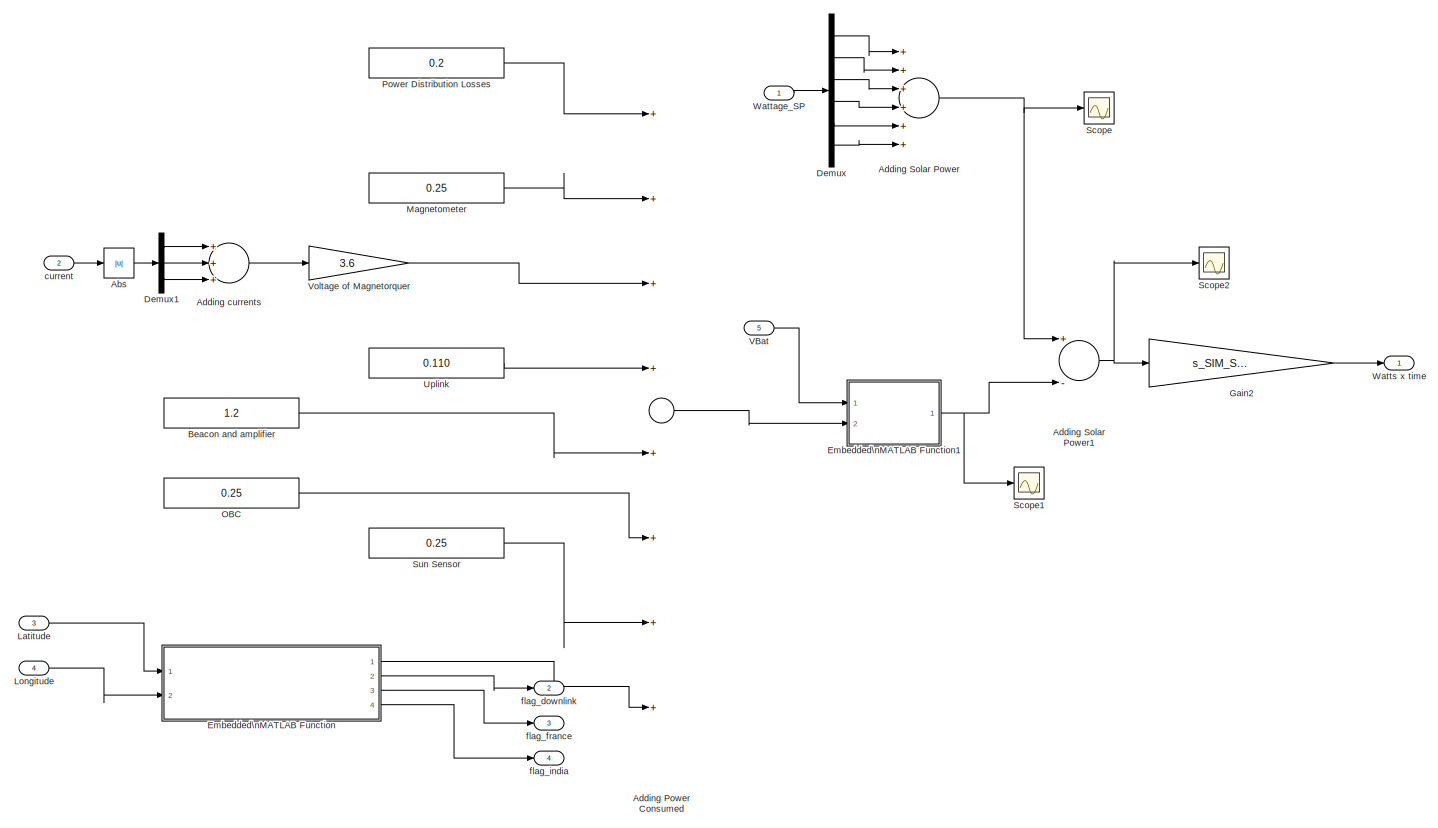
[diagram: Power D0D/Watts x time - part 1/1, most of the canvas]
BLOCK [SubSystem] Power D0D/Watts x time
  FunctionWithSeparateData = off
  MaskHideContents = off
  MinAlgLoopOccurrences = off
  Opaque = off
  Ports = [5, 4]
  PropExecContextOutsideSubsystem = off
  RTWSystemCode = Auto
  RequestExecContextInheritance = off
  SID = 1284
BLOCK [Abs] Power D0D/Watts x time/Abs
  OutDataType = fixdt(1, 16)
  OutScaling = 2^0
  SID = 1290
  SaturateOnIntegerOverflow = off
BLOCK [Sum] Power D0D/Watts x time/Adding Power Consumed
  InputSameDT = off
  Inputs = ++++++++
  OutDataType = fixdt(1, 16)
  OutDataTypeMode = Inherit via internal rule
  OutDataTypeStr = Inherit: Inherit via internal rule
  OutScaling = 2^-10
  Ports = [8, 1]
  SID = 1291
  SaturateOnIntegerOverflow = off
BLOCK [Sum] Power D0D/Watts x time/Adding Solar Power
  InputSameDT = off
  Inputs = ++++++
  OutDataType = fixdt(1, 16)
  OutDataTypeMode = Inherit via internal rule
  OutDataTypeStr = Inherit: Inherit via internal rule
  OutScaling = 2^-10
  Ports = [6, 1]
  SID = 1292
  SaturateOnIntegerOverflow = off
BLOCK [Sum] Power D0D/Watts x time/Adding Solar Power1
  InputSameDT = off
  Inputs = +-
  OutDataType = fixdt(1, 16)
  OutDataTypeMode = Inherit via internal rule
  OutDataTypeStr = Inherit: Inherit via internal rule
  OutScaling = 2^-10
  Ports = [2, 1]
  SID = 1293
  SaturateOnIntegerOverflow = off
BLOCK [Sum] Power D0D/Watts x time/Adding currents
  InputSameDT = off
  Inputs = +++
  OutDataType = fixdt(1, 16)
  OutDataTypeMode = Inherit via internal rule
  OutDataTypeStr = Inherit: Inherit via internal rule
  OutScaling = 2^-10
  Ports = [3, 1]
  SID = 1294
  SaturateOnIntegerOverflow = off
BLOCK [Constant] Power D0D/Watts x time/Beacon and amplifier
  OutDataType = fixdt(1, 16)
  OutScaling = 2^0
  SID = 1295
  Value = 1.2
BLOCK [Demux] Power D0D/Watts x time/Demux
  DisplayOption = bar
  Outputs = 6
  Ports = [1, 6]
  SID = 1296
BLOCK [Demux] Power D0D/Watts x time/Demux1
  DisplayOption = bar
  Outputs = 3
  Ports = [1, 3]
  SID = 1297
BLOCK [SubSystem] Power D0D/Watts x time/Embedded\nMATLAB Function
  FunctionWithSeparateData = off
  MaskDescription = Embedded MATLAB block
  MaskDisplay = disp('fcn');
  MaskHideContents = off
  MaskIconFrame = on
  MaskIconOpaque = off
  MaskIconRotate = none
  MaskIconUnits = autoscale
  MaskPortRotate = default
  MaskSelfModifiable = on
  MaskType = Stateflow
  MinAlgLoopOccurrences = off
  Opaque = off
  PermitHierarchicalResolution = ExplicitOnly
  Ports = [2, 4]
  PropExecContextOutsideSubsystem = off
  RTWSystemCode = Auto
  RequestExecContextInheritance = off
  SID = 1298
  TreatAsAtomicUnit = on
BLOCK [Demux] Power D0D/Watts x time/Embedded\nMATLAB Function/ Demux 
  Outputs = 1
  Ports = [1, 1]
  SID = 19
BLOCK [S-Function] Power D0D/Watts x time/Embedded\nMATLAB Function/ SFunction 
  EnableBusSupport = on
  FunctionName = sf_sfun
  PortCounts = [2 5]
  Ports = [2, 5]
  SID = 18
  Tag = Stateflow S-Function adcs_v16_integral_light_sun_sgp_igrf_power_7May2012 19
BLOCK [Terminator] Power D0D/Watts x time/Embedded\nMATLAB Function/ Terminator 
  SID = 21
BLOCK [Outport] Power D0D/Watts x time/Embedded\nMATLAB Function/Downlink_power
  IconDisplay = Port number
  SID = 14
BLOCK [Inport] Power D0D/Watts x time/Embedded\nMATLAB Function/Latitude
  IconDisplay = Port number
  SID = 12
BLOCK [Inport] Power D0D/Watts x time/Embedded\nMATLAB Function/Longitude
  IconDisplay = Port number
  Port = 2
  SID = 13
BLOCK [Outport] Power D0D/Watts x time/Embedded\nMATLAB Function/flag_downlink
  IconDisplay = Port number
  Port = 2
  SID = 15
BLOCK [Outport] Power D0D/Watts x time/Embedded\nMATLAB Function/flag_france
  IconDisplay = Port number
  Port = 3
  SID = 16
BLOCK [Outport] Power D0D/Watts x time/Embedded\nMATLAB Function/flag_india
  IconDisplay = Port number
  Port = 4
  SID = 17
BLOCK [SubSystem] Power D0D/Watts x time/Embedded\nMATLAB Function1
  FunctionWithSeparateData = off
  MaskDescription = Embedded MATLAB block
  MaskDisplay = disp('fcn');
  MaskHideContents = off
  MaskIconFrame = on
  MaskIconOpaque = off
  MaskIconRotate = none
  MaskIconUnits = autoscale
  MaskPortRotate = default
  MaskSelfModifiable = on
  MaskType = Stateflow
  MinAlgLoopOccurrences = off
  Opaque = off
  PermitHierarchicalResolution = ExplicitOnly
  Ports = [2, 1]
  PropExecContextOutsideSubsystem = off
  RTWSystemCode = Auto
  RequestExecContextInheritance = off
  SID = 1299
  TreatAsAtomicUnit = on
BLOCK [Demux] Power D0D/Watts x time/Embedded\nMATLAB Function1/ Demux 
  Outputs = 1
  Ports = [1, 1]
  SID = 12
BLOCK [S-Function] Power D0D/Watts x time/Embedded\nMATLAB Function1/ SFunction 
  EnableBusSupport = on
  FunctionName = sf_sfun
  PortCounts = [2 2]
  Ports = [2, 2]
  SID = 11
  Tag = Stateflow S-Function adcs_v16_integral_light_sun_sgp_igrf_power_7May2012 31
BLOCK [Terminator] Power D0D/Watts x time/Embedded\nMATLAB Function1/ Terminator 
  SID = 14
BLOCK [Inport] Power D0D/Watts x time/Embedded\nMATLAB Function1/Vbat
  IconDisplay = Port number
  OutDataType = sfix(16)
  OutScaling = 2^0
  SID = 2
BLOCK [Inport] Power D0D/Watts x time/Embedded\nMATLAB Function1/pow
  IconDisplay = Port number
  Port = 2
  SID = 1
BLOCK [Outport] Power D0D/Watts x time/Embedded\nMATLAB Function1/pow_drawn
  IconDisplay = Port number
  OutDataType = sfix(16)
  OutScaling = 2^0
  SID = 6
BLOCK [Gain] Power D0D/Watts x time/Gain2
  Gain = s_SIM_STEP_SIZE
  OutDataType = fixdt(1, 16)
  OutDataTypeMode = Inherit via internal rule
  OutDataTypeStr = Inherit: Inherit via internal rule
  OutScaling = 2^0
  ParamDataTypeStr = Inherit: Inherit via internal rule
  ParameterDataType = fixdt(1, 16)
  ParameterDataTypeMode = Inherit via internal rule
  ParameterScaling = 2^0
  SID = 1300
  SaturateOnIntegerOverflow = off
BLOCK [Inport] Power D0D/Watts x time/Latitude
  IconDisplay = Port number
  OutDataType = sfix(16)
  OutScaling = 2^0
  Port = 3
  SID = 1287
BLOCK [Inport] Power D0D/Watts x time/Longitude
  IconDisplay = Port number
  OutDataType = sfix(16)
  OutScaling = 2^0
  Port = 4
  SID = 1288
BLOCK [Constant] Power D0D/Watts x time/Magnetometer
  OutDataType = fixdt(1, 16)
  OutScaling = 2^0
  SID = 1301
  Value = 0.25
BLOCK [Constant] Power D0D/Watts x time/OBC
  OutDataType = fixdt(1, 16)
  OutScaling = 2^0
  SID = 1302
  Value = 0.25
BLOCK [Constant] Power D0D/Watts x time/Power Distribution Losses
  OutDataType = fixdt(1, 16)
  OutScaling = 2^0
  SID = 1303
  Value = 0.2
BLOCK [Scope] Power D0D/Watts x time/Scope
  DataFormat = StructureWithTime
  Floating = off
  LimitDataPoints = off
  NumInputPorts = 1
  Ports = [1]
  SID = 1304
  SampleTime = 0
  SaveName = ScopeData34
  YMax = 10.5
  YMin = 0
BLOCK [Scope] Power D0D/Watts x time/Scope1
  DataFormat = StructureWithTime
  Floating = off
  LimitDataPoints = off
  NumInputPorts = 1
  Ports = [1]
  SID = 1305
  SampleTime = 0
  SaveName = ScopeData35
  YMin = 2.25
BLOCK [Scope] Power D0D/Watts x time/Scope2
  DataFormat = StructureWithTime
  Floating = off
  LimitDataPoints = off
  NumInputPorts = 1
  Ports = [1]
  SID = 1306
  SampleTime = 0
  SaveName = ScopeData36
  YMax = 6.8
  YMin = 6.275
BLOCK [Constant] Power D0D/Watts x time/Sun Sensor
  OutDataType = fixdt(1, 16)
  OutScaling = 2^0
  SID = 1307
  Value = 0.25
BLOCK [Constant] Power D0D/Watts x time/Uplink
  OutDataType = fixdt(1, 16)
  OutScaling = 2^0
  SID = 1308
  Value = 0.110
BLOCK [Inport] Power D0D/Watts x time/VBat
  IconDisplay = Port number
  OutDataType = sfix(16)
  OutScaling = 2^0
  Port = 5
  SID = 1289
BLOCK [Gain] Power D0D/Watts x time/Voltage of Magnetorquer
  Gain = 3.6
  OutDataType = fixdt(1, 16)
  OutDataTypeMode = Inherit via internal rule
  OutDataTypeStr = Inherit: Inherit via internal rule
  OutScaling = 2^0
  ParamDataTypeStr = Inherit: Inherit via internal rule
  ParameterDataType = fixdt(1, 16)
  ParameterDataTypeMode = Inherit via internal rule
  ParameterScaling = 2^0
  SID = 1309
  SaturateOnIntegerOverflow = off
BLOCK [Inport] Power D0D/Watts x time/Wattage_SP
  IconDisplay = Port number
  OutDataType = sfix(16)
  OutScaling = 2^0
  SID = 1285
BLOCK [Outport] Power D0D/Watts x time/Watts x time
  IconDisplay = Port number
  OutDataType = fixdt(1, 16)
  OutScaling = 2^0
  SID = 1310
BLOCK [Inport] Power D0D/Watts x time/current
  IconDisplay = Port number
  OutDataType = sfix(16)
  OutScaling = 2^0
  Port = 2
  SID = 1286
BLOCK [Outport] Power D0D/Watts x time/flag_downlink
  IconDisplay = Port number
  OutDataType = fixdt(1, 16)
  OutScaling = 2^0
  Port = 2
  SID = 1311
BLOCK [Outport] Power D0D/Watts x time/flag_france
  IconDisplay = Port number
  OutDataType = fixdt(1, 16)
  OutScaling = 2^0
  Port = 3
  SID = 1312
BLOCK [Outport] Power D0D/Watts x time/flag_india
  IconDisplay = Port number
  OutDataType = fixdt(1, 16)
  OutScaling = 2^0
  Port = 4
  SID = 1313
BLOCK [SubSystem] Power D0D/battery_DOD
  FunctionWithSeparateData = off
  MaskHideContents = off
  MinAlgLoopOccurrences = off
  Opaque = off
  Ports = [5, 5]
  PropExecContextOutsideSubsystem = off
  RTWSystemCode = Auto
  RequestExecContextInheritance = off
  SID = 1314
BLOCK [Outport] Power D0D/battery_DOD/BATT Capacity
  IconDisplay = Port number
  OutDataType = fixdt(1, 16)
  OutScaling = 2^0
  SID = 1325
BLOCK [Inport] Power D0D/battery_DOD/BATTERY Capacity
  IconDisplay = Port number
  OutDataType = sfix(16)
  OutScaling = 2^0
  SID = 1315
BLOCK [Clock] Power D0D/battery_DOD/Clock
  Decimation = 10
  SID = 1320
BLOCK [Outport] Power D0D/battery_DOD/DOD
  IconDisplay = Port number
  OutDataType = fixdt(1, 16)
  OutScaling = 2^0
  Port = 4
  SID = 1328
BLOCK [SubSystem] Power D0D/battery_DOD/Embedded\nMATLAB Function
  FunctionWithSeparateData = off
  MaskDescription = Embedded MATLAB block
  MaskDisplay = disp('fcn');
  MaskHideContents = off
  MaskIconFrame = on
  MaskIconOpaque = off
  MaskIconRotate = none
  MaskIconUnits = autoscale
  MaskPortRotate = default
  MaskSelfModifiable = on
  MaskType = Stateflow
  MinAlgLoopOccurrences = off
  Opaque = off
  PermitHierarchicalResolution = ExplicitOnly
  Ports = [6, 6]
  PropExecContextOutsideSubsystem = off
  RTWSystemCode = Auto
  RequestExecContextInheritance = off
  SID = 1321
  TreatAsAtomicUnit = on
BLOCK [Demux] Power D0D/battery_DOD/Embedded\nMATLAB Function/ Demux 
  Outputs = 1
  Ports = [1, 1]
  SID = 22
BLOCK [S-Function] Power D0D/battery_DOD/Embedded\nMATLAB Function/ SFunction 
  EnableBusSupport = on
  FunctionName = sf_sfun
  Parameters = s_SIM_STEP_SIZE
  PortCounts = [6 7]
  Ports = [6, 7]
  SID = 21
  Tag = Stateflow S-Function adcs_v16_integral_light_sun_sgp_igrf_power_7May2012 26
BLOCK [Terminator] Power D0D/battery_DOD/Embedded\nMATLAB Function/ Terminator 
  SID = 24
BLOCK [Outport] Power D0D/battery_DOD/Embedded\nMATLAB Function/Batt_cap
  IconDisplay = Port number
  OutDataType = sfix(16)
  OutScaling = 2^0
  SID = 5
BLOCK [Outport] Power D0D/battery_DOD/Embedded\nMATLAB Function/Flag_charge
  IconDisplay = Port number
  Port = 3
  SID = 14
BLOCK [Outport] Power D0D/battery_DOD/Embedded\nMATLAB Function/Flag_discharge
  IconDisplay = Port number
  Port = 5
  SID = 17
BLOCK [Outport] Power D0D/battery_DOD/Embedded\nMATLAB Function/VBat
  IconDisplay = Port number
  Port = 2
  SID = 12
BLOCK [Inport] Power D0D/battery_DOD/Embedded\nMATLAB Function/batt_cap
  IconDisplay = Port number
  Port = 2
  SID = 10
BLOCK [Inport] Power D0D/battery_DOD/Embedded\nMATLAB Function/clk
  IconDisplay = Port number
  OutDataType = sfix(16)
  OutScaling = 2^0
  SID = 1
BLOCK [Outport] Power D0D/battery_DOD/Embedded\nMATLAB Function/current
  IconDisplay = Port number
  Port = 6
  SID = 20
BLOCK [Inport] Power D0D/battery_DOD/Embedded\nMATLAB Function/flag_charge
  IconDisplay = Port number
  Port = 4
  SID = 13
BLOCK [Inport] Power D0D/battery_DOD/Embedded\nMATLAB Function/flag_discharge
  IconDisplay = Port number
  Port = 5
  SID = 16
BLOCK [Outport] Power D0D/battery_DOD/Embedded\nMATLAB Function/frac_Batt_cap
  IconDisplay = Port number
  Port = 4
  SID = 15
BLOCK [Inport] Power D0D/battery_DOD/Embedded\nMATLAB Function/vbat
  IconDisplay = Port number
  Port = 6
  SID = 19
BLOCK [Inport] Power D0D/battery_DOD/Embedded\nMATLAB Function/watts_time
  IconDisplay = Port number
  Port = 3
  SID = 11
BLOCK [Outport] Power D0D/battery_DOD/Flag_charge
  IconDisplay = Port number
  OutDataType = fixdt(1, 16)
  OutScaling = 2^0
  Port = 3
  SID = 1327
BLOCK [Outport] Power D0D/battery_DOD/Flag_discharge
  IconDisplay = Port number
  OutDataType = fixdt(1, 16)
  OutScaling = 2^0
  Port = 5
  SID = 1329
BLOCK [Integrator] Power D0D/battery_DOD/Integrator
  Ports = [1, 1]
  SID = 1322
BLOCK [Scope] Power D0D/battery_DOD/Scope
  DataFormat = StructureWithTime
  Floating = off
  LimitDataPoints = off
  NumInputPorts = 1
  Ports = [1]
  SID = 1323
  SampleTime = 0
  SaveName = ScopeData38
  YMax = -0.275
  YMin = -0.625
  ZoomMode = xonly
BLOCK [Scope] Power D0D/battery_DOD/Scope1
  DataFormat = StructureWithTime
  Floating = off
  LimitDataPoints = off
  NumInputPorts = 1
  Ports = [1]
  SID = 1324
  SampleTime = 0
  SaveName = ScopeData39
  YMax = -0.275
  YMin = -0.625
  ZoomMode = xonly
BLOCK [Outport] Power D0D/battery_DOD/VBAT
  IconDisplay = Port number
  OutDataType = fixdt(1, 16)
  OutScaling = 2^0
  Port = 2
  SID = 1326
BLOCK [Inport] Power D0D/battery_DOD/Watts x time
  IconDisplay = Port number
  OutDataType = sfix(16)
  OutScaling = 2^0
  Port = 2
  SID = 1316
BLOCK [Inport] Power D0D/battery_DOD/flag_charge
  IconDisplay = Port number
  OutDataType = sfix(16)
  OutScaling = 2^0
  Port = 3
  SID = 1317
BLOCK [Inport] Power D0D/battery_DOD/flag_discharge
  IconDisplay = Port number
  OutDataType = sfix(16)
  OutScaling = 2^0
  Port = 4
  SID = 1318
BLOCK [Inport] Power D0D/battery_DOD/vbat
  IconDisplay = Port number
  OutDataType = sfix(16)
  OutScaling = 2^0
  Port = 5
  SID = 1319
BLOCK [SubSystem] Power D0D/r_ECEF -> r_LLA
  FunctionWithSeparateData = off
  MaskDescription = Embedded MATLAB block
  MaskDisplay = disp('fcn');
  MaskHideContents = off
  MaskIconFrame = on
  MaskIconOpaque = off
  MaskIconRotate = none
  MaskIconUnits = autoscale
  MaskPortRotate = default
  MaskSelfModifiable = on
  MaskType = Stateflow
  MinAlgLoopOccurrences = off
  Opaque = off
  PermitHierarchicalResolution = ExplicitOnly
  Ports = [1, 3]
  PropExecContextOutsideSubsystem = off
  RTWSystemCode = Auto
  RequestExecContextInheritance = off
  SID = 1330
  TreatAsAtomicUnit = on
BLOCK [Demux] Power D0D/r_ECEF -> r_LLA/ Demux 
  Outputs = 1
  Ports = [1, 1]
  SID = 13
BLOCK [S-Function] Power D0D/r_ECEF -> r_LLA/ SFunction 
  EnableBusSupport = on
  FunctionName = sf_sfun
  PortCounts = [1 4]
  Ports = [1, 4]
  SID = 12
  Tag = Stateflow S-Function adcs_v16_integral_light_sun_sgp_igrf_power_7May2012 28
BLOCK [Terminator] Power D0D/r_ECEF -> r_LLA/ Terminator 
  SID = 15
BLOCK [Outport] Power D0D/r_ECEF -> r_LLA/Altitude
  IconDisplay = Port number
  Port = 3
  SID = 11
BLOCK [Outport] Power D0D/r_ECEF -> r_LLA/Latitutde
  IconDisplay = Port number
  OutDataType = sfix(16)
  OutScaling = 2^0
  SID = 5
BLOCK [Outport] Power D0D/r_ECEF -> r_LLA/Longitude
  IconDisplay = Port number
  Port = 2
  SID = 10
BLOCK [Inport] Power D0D/r_ECEF -> r_LLA/r_ECEF
  IconDisplay = Port number
  OutDataType = sfix(16)
  OutScaling = 2^0
  SID = 1
BLOCK [SubSystem] Power D0D/r_ECI -> r_ECEF
  FunctionWithSeparateData = off
  MaskDescription = Embedded MATLAB block
  MaskDisplay = disp('fcn');
  MaskHideContents = off
  MaskIconFrame = on
  MaskIconOpaque = off
  MaskIconRotate = none
  MaskIconUnits = autoscale
  MaskPortRotate = default
  MaskSelfModifiable = on
  MaskType = Stateflow
  MinAlgLoopOccurrences = off
  Opaque = off
  PermitHierarchicalResolution = ExplicitOnly
  Ports = [2, 1]
  PropExecContextOutsideSubsystem = off
  RTWSystemCode = Auto
  RequestExecContextInheritance = off
  SID = 1331
  TreatAsAtomicUnit = on
BLOCK [Demux] Power D0D/r_ECI -> r_ECEF/ Demux 
  Outputs = 1
  Ports = [1, 1]
  SID = 16
BLOCK [S-Function] Power D0D/r_ECI -> r_ECEF/ SFunction 
  EnableBusSupport = on
  FunctionName = sf_sfun
  Parameters = equinox,today
  PortCounts = [2 2]
  Ports = [2, 2]
  SID = 15
  Tag = Stateflow S-Function adcs_v16_integral_light_sun_sgp_igrf_power_7May2012 30
BLOCK [Terminator] Power D0D/r_ECI -> r_ECEF/ Terminator 
  SID = 18
BLOCK [Outport] Power D0D/r_ECI -> r_ECEF/r_ECEF
  IconDisplay = Port number
  OutDataType = sfix(16)
  OutScaling = 2^0
  SID = 5
BLOCK [Inport] Power D0D/r_ECI -> r_ECEF/r_I
  IconDisplay = Port number
  SID = 14
BLOCK [Inport] Power D0D/r_ECI -> r_ECEF/t
  IconDisplay = Port number
  Port = 2
  SID = 11
BLOCK [SubSystem] QuEST
  FunctionWithSeparateData = off
  MaskDescription = Embedded MATLAB block
  MaskDisplay = disp('QuEST');
  MaskHideContents = off
  MaskIconFrame = on
  MaskIconOpaque = off
  MaskIconRotate = none
  MaskIconUnits = autoscale
  MaskPortRotate = default
  MaskSelfModifiable = on
  MaskType = Stateflow
  MinAlgLoopOccurrences = off
  Opaque = off
  PermitHierarchicalResolution = ExplicitOnly
  Ports = [4, 3]
  PropExecContextOutsideSubsystem = off
  RTWSystemCode = Auto
  RequestExecContextInheritance = off
  SID = 863
  SystemSampleTime = s_FRAME_SIZE
  TreatAsAtomicUnit = on
BLOCK [Demux] QuEST/ Demux 
  Outputs = 1
  Ports = [1, 1]
  SID = 22
BLOCK [S-Function] QuEST/ SFunction 
  EnableBusSupport = on
  FunctionName = sf_sfun
  Parameters = Snum,s_MAGMETER_WEIGHT,s_SS_ADC_gain,s_SS_MAX_ANGLE
  PortCounts = [4 4]
  Ports = [4, 4]
  SID = 21
  Tag = Stateflow S-Function adcs_v16_integral_light_sun_sgp_igrf_power_7May2012 11
BLOCK [Terminator] QuEST/ Terminator 
  SID = 24
BLOCK [Outport] QuEST/light_est
  IconDisplay = Port number
  Port = 2
  SID = 17
BLOCK [Inport] QuEST/m_SUN
  IconDisplay = Port number
  Port = 2
  SID = 10
BLOCK [Outport] QuEST/q_BO_est
  IconDisplay = Port number
  OutDataType = sfix(16)
  OutScaling = 2^0
  SID = 5
BLOCK [Inport] QuEST/v_Bb_m
  IconDisplay = Port number
  OutDataType = sfix(16)
  OutScaling = 2^0
  SID = 1
BLOCK [Inport] QuEST/v_Bo_c
  IconDisplay = Port number
  Port = 3
  SID = 11
BLOCK [Inport] QuEST/v_So_c
  IconDisplay = Port number
  Port = 4
  SID = 12
BLOCK [Outport] QuEST/v_Sun1
  IconDisplay = Port number
  Port = 3
  SID = 20
BLOCK [SubSystem] Satellite Computations I\nPropagators
  FunctionWithSeparateData = off
  MaskHideContents = off
  MinAlgLoopOccurrences = off
  Opaque = off
  Ports = [0, 2]
  PropExecContextOutsideSubsystem = off
  RTWSystemCode = Auto
  RequestExecContextInheritance = off
  SID = 848
  SystemSampleTime = s_FRAME_SIZE
  TreatAsAtomicUnit = on
BLOCK [FromFile] Satellite Computations I\nPropagators/From File
  FileName = Si_120k
  SID = 956
BLOCK [FromFile] Satellite Computations I\nPropagators/From File2
  FileName = SGP_est_120k
  SID = 850
BLOCK [FromFile] Satellite Computations I\nPropagators/From File3
  FileName = Bi8_est_120k
  SID = 851
BLOCK [SubSystem] Satellite Computations I\nPropagators/m_TOI_NEW
  FunctionWithSeparateData = off
  MaskDescription = Embedded MATLAB block
  MaskDisplay = disp('fcn');
  MaskHideContents = off
  MaskIconFrame = on
  MaskIconOpaque = off
  MaskIconRotate = none
  MaskIconUnits = autoscale
  MaskPortRotate = default
  MaskSelfModifiable = on
  MaskType = Stateflow
  MinAlgLoopOccurrences = off
  Opaque = off
  PermitHierarchicalResolution = ExplicitOnly
  Ports = [2, 1]
  PropExecContextOutsideSubsystem = off
  RTWSystemCode = Auto
  RequestExecContextInheritance = off
  SID = 859
  TreatAsAtomicUnit = on
BLOCK [Demux] Satellite Computations I\nPropagators/m_TOI_NEW/ Demux 
  Outputs = 1
  Ports = [1, 1]
  SID = 12
BLOCK [S-Function] Satellite Computations I\nPropagators/m_TOI_NEW/ SFunction 
  EnableBusSupport = on
  FunctionName = sf_sfun
  PortCounts = [2 2]
  Ports = [2, 2]
  SID = 11
  Tag = Stateflow S-Function adcs_v16_integral_light_sun_sgp_igrf_power_7May2012 25
BLOCK [Terminator] Satellite Computations I\nPropagators/m_TOI_NEW/ Terminator 
  SID = 14
BLOCK [Inport] Satellite Computations I\nPropagators/m_TOI_NEW/ECI
  IconDisplay = Port number
  OutDataType = sfix(16)
  OutScaling = 2^0
  SID = 1
BLOCK [Inport] Satellite Computations I\nPropagators/m_TOI_NEW/v_I
  IconDisplay = Port number
  Port = 2
  SID = 10
BLOCK [Outport] Satellite Computations I\nPropagators/m_TOI_NEW/v_O
  IconDisplay = Port number
  OutDataType = sfix(16)
  OutScaling = 2^0
  SID = 5
BLOCK [SubSystem] Satellite Computations I\nPropagators/m_TOI_NEW1
  FunctionWithSeparateData = off
  MaskDescription = Embedded MATLAB block
  MaskDisplay = disp('fcn');
  MaskHideContents = off
  MaskIconFrame = on
  MaskIconOpaque = off
  MaskIconRotate = none
  MaskIconUnits = autoscale
  MaskPortRotate = default
  MaskSelfModifiable = on
  MaskType = Stateflow
  MinAlgLoopOccurrences = off
  Opaque = off
  PermitHierarchicalResolution = ExplicitOnly
  Ports = [2, 1]
  PropExecContextOutsideSubsystem = off
  RTWSystemCode = Auto
  RequestExecContextInheritance = off
  SID = 860
  TreatAsAtomicUnit = on
BLOCK [Demux] Satellite Computations I\nPropagators/m_TOI_NEW1/ Demux 
  Outputs = 1
  Ports = [1, 1]
  SID = 12
BLOCK [S-Function] Satellite Computations I\nPropagators/m_TOI_NEW1/ SFunction 
  EnableBusSupport = on
  FunctionName = sf_sfun
  PortCounts = [2 2]
  Ports = [2, 2]
  SID = 11
  Tag = Stateflow S-Function adcs_v16_integral_light_sun_sgp_igrf_power_7May2012 12
BLOCK [Terminator] Satellite Computations I\nPropagators/m_TOI_NEW1/ Terminator 
  SID = 14
BLOCK [Inport] Satellite Computations I\nPropagators/m_TOI_NEW1/ECI
  IconDisplay = Port number
  OutDataType = sfix(16)
  OutScaling = 2^0
  Port = 2
  SID = 1
BLOCK [Inport] Satellite Computations I\nPropagators/m_TOI_NEW1/v_I
  IconDisplay = Port number
  SID = 10
BLOCK [Outport] Satellite Computations I\nPropagators/m_TOI_NEW1/v_O
  IconDisplay = Port number
  OutDataType = sfix(16)
  OutScaling = 2^0
  SID = 5
BLOCK [Outport] Satellite Computations I\nPropagators/v_Bo_est
  IconDisplay = Port number
  OutDataType = sfix(16)
  OutScaling = 2^0
  SID = 861
BLOCK [Outport] Satellite Computations I\nPropagators/v_So_est
  IconDisplay = Port number
  OutDataType = sfix(16)
  OutScaling = 2^0
  Port = 2
  SID = 862
BLOCK [Scope] Scope1
  DataFormat = StructureWithTime
  Floating = off
  LimitDataPoints = off
  NumInputPorts = 1
  Ports = [1]
  SID = 936
  SampleInput = on
  SampleTime = Ts_display
  SaveName = ScopeData11
  YMax = 10
  YMin = -10
  ZoomMode = xonly
BLOCK [Scope] Scope10
  DataFormat = StructureWithTime
  Floating = off
  LimitDataPoints = off
  NumInputPorts = 1
  Ports = [1]
  SID = 1027
  SampleInput = on
  SampleTime = Ts_display
  SaveName = ScopeData24
  YMax = 1
  YMin = 0
  ZoomMode = xonly
BLOCK [Scope] Scope2
  DataFormat = StructureWithTime
  Floating = off
  LimitDataPoints = off
  NumInputPorts = 1
  Ports = [1]
  SID = 706
  SampleInput = on
  SampleTime = Ts_display
  SaveName = ScopeData7
  TimeRange = 120000
  YMax = 100
  YMin = -30
  ZoomMode = yonly
BLOCK [Scope] Scope3
  DataFormat = StructureWithTime
  Floating = off
  LimitDataPoints = off
  NumInputPorts = 1
  Ports = [1]
  SID = 937
  SampleInput = on
  SampleTime = Ts_display
  SaveName = ScopeData13
  YMax = 0.0225
  YMin = -0.0225
  ZoomMode = xonly
BLOCK [Scope] Scope4
  DataFormat = StructureWithTime
  Floating = off
  LimitDataPoints = off
  NumInputPorts = 1
  Ports = [1]
  SID = 938
  SampleInput = on
  SampleTime = Ts_display
  SaveName = ScopeData14
  YMax = 0.00035
  YMin = -2.71051e-020
  ZoomMode = yonly
BLOCK [Scope] Scope5
  DataFormat = StructureWithTime
  Floating = off
  LimitDataPoints = off
  NumInputPorts = 1
  Ports = [1]
  SID = 939
  SampleInput = on
  SampleTime = Ts_display
  SaveName = ScopeData15
  YMax = 10
  YMin = -10
  ZoomMode = xonly
BLOCK [Scope] Scope6
  DataFormat = StructureWithTime
  Floating = off
  LimitDataPoints = off
  NumInputPorts = 1
  Ports = [1]
  SID = 940
  SampleInput = on
  SampleTime = Ts_display
  SaveName = ScopeData16
  YMax = 1
  YMin = -1
  ZoomMode = xonly
BLOCK [Scope] Scope7
  DataFormat = StructureWithTime
  Floating = off
  LimitDataPoints = off
  NumInputPorts = 1
  Ports = [1]
  SID = 941
  SampleInput = on
  SampleTime = Ts_display
  SaveName = ScopeData20
  YMax = 10
  YMin = -10
  ZoomMode = xonly
BLOCK [Scope] Scope8
  DataFormat = StructureWithTime
  Floating = off
  LimitDataPoints = off
  NumInputPorts = 1
  Ports = [1]
  SID = 942
  SampleInput = on
  SampleTime = Ts_display
  SaveName = ScopeData21
  YMax = 10
  YMin = -10
  ZoomMode = xonly
BLOCK [Scope] Scope9
  DataFormat = StructureWithTime
  Floating = off
  LimitDataPoints = off
  NumInputPorts = 1
  Ports = [1]
  SID = 950
  SampleInput = on
  SampleTime = Ts_display
  SaveName = ScopeData23
  YMax = 0.035
  YMin = -0.03
BLOCK [SubSystem] Sensors1
  FunctionWithSeparateData = off
  MaskHideContents = off
  MinAlgLoopOccurrences = off
  Opaque = off
  Ports = [3, 2]
  PropExecContextOutsideSubsystem = off
  RTWSystemCode = Auto
  RequestExecContextInheritance = off
  SID = 85
BLOCK [SubSystem] Sensors1/Magnetometer simple
  FunctionWithSeparateData = off
  MaskHideContents = off
  MinAlgLoopOccurrences = off
  Opaque = off
  Ports = [1, 1]
  PropExecContextOutsideSubsystem = off
  RTWSystemCode = Auto
  RequestExecContextInheritance = off
  SID = 116
BLOCK [Constant] Sensors1/Magnetometer simple/Constant
  OutDataType = fixdt(1, 16)
  OutScaling = 2^0
  SID = 118
  Value = s_x_MAGMETER_BIAS
BLOCK [Reference] Sensors1/Magnetometer simple/Gaussian Noise\nGenerator  REF=commnoisgen2/Gaussian Noise\nGenerator
  FunctionWithSeparateData = off
  Ports = [0, 1]
  RTWMemSecDataConstants = Inherit from model
  RTWMemSecDataInternal = Inherit from model
  RTWMemSecDataParameters = Inherit from model
  RTWMemSecFuncExecute = Inherit from model
  RTWMemSecFuncInitTerm = Inherit from model
  SID = 119
  ShowPortLabels = FromPortIcon
  SourceBlock = commnoisgen2/Gaussian Noise\nGenerator
  SourceType = Gaussian Noise Generator
  SystemSampleTime = -1
  Ts = s_SIM_STEP_SIZE
  d = s_x_MAGMETER
  frameBased = off
  m = 0
  orient = off
  outDataType = double
  s = 41
  sampPerFrame = 1
BLOCK [Sum] Sensors1/Magnetometer simple/Sum1
  IconShape = round
  InputSameDT = off
  Inputs = +++
  OutDataType = sfix(16)
  OutDataTypeMode = Inherit via internal rule
  OutDataTypeStr = Inherit: Inherit via internal rule
  OutScaling = 2^0
  Ports = [3, 1]
  SID = 120
  SaturateOnIntegerOverflow = off
BLOCK [Inport] Sensors1/Magnetometer simple/v_B_b
  IconDisplay = Port number
  OutDataType = sfix(16)
  OutScaling = 2^0
  SID = 117
BLOCK [Outport] Sensors1/Magnetometer simple/v_B_b(m)
  IconDisplay = Port number
  OutDataType = sfix(16)
  OutScaling = 2^0
  SID = 121
BLOCK [SubSystem] Sensors1/Sun Sensors
  FunctionWithSeparateData = off
  MaskHideContents = off
  MinAlgLoopOccurrences = off
  Opaque = off
  Ports = [2, 1]
  PropExecContextOutsideSubsystem = off
  RTWSystemCode = Auto
  RequestExecContextInheritance = off
  SID = 122
BLOCK [SubSystem] Sensors1/Sun Sensors/Embedded\nMATLAB Function
  FunctionWithSeparateData = off
  MaskDescription = Embedded MATLAB block
  MaskDisplay = disp('fcn');
  MaskHideContents = off
  MaskIconFrame = on
  MaskIconOpaque = off
  MaskIconRotate = none
  MaskIconUnits = autoscale
  MaskPortRotate = default
  MaskSelfModifiable = on
  MaskType = Stateflow
  MinAlgLoopOccurrences = off
  Opaque = off
  PermitHierarchicalResolution = ExplicitOnly
  Ports = [12, 2]
  PropExecContextOutsideSubsystem = off
  RTWSystemCode = Auto
  RequestExecContextInheritance = off
  SID = 125
  TreatAsAtomicUnit = on
BLOCK [Demux] Sensors1/Sun Sensors/Embedded\nMATLAB Function/ Demux 
  Outputs = 1
  Ports = [1, 1]
  SID = 37
BLOCK [S-Function] Sensors1/Sun Sensors/Embedded\nMATLAB Function/ SFunction 
  EnableBusSupport = on
  FunctionName = sf_sfun
  Parameters = Snum,s_SS_MAX_ANGLE
  PortCounts = [12 3]
  Ports = [12, 3]
  SID = 36
  Tag = Stateflow S-Function adcs_v16_integral_light_sun_sgp_igrf_power_7May2012 22
BLOCK [Terminator] Sensors1/Sun Sensors/Embedded\nMATLAB Function/ Terminator 
  SID = 39
BLOCK [Outport] Sensors1/Sun Sensors/Embedded\nMATLAB Function/m_SUN
  IconDisplay = Port number
  OutDataType = sfix(16)
  OutScaling = 2^0
  SID = 28
BLOCK [Inport] Sensors1/Sun Sensors/Embedded\nMATLAB Function/s_S1
  IconDisplay = Port number
  Port = 2
  SID = 2
BLOCK [Inport] Sensors1/Sun Sensors/Embedded\nMATLAB Function/s_S2
  IconDisplay = Port number
  Port = 4
  SID = 4
BLOCK [Inport] Sensors1/Sun Sensors/Embedded\nMATLAB Function/s_S3
  IconDisplay = Port number
  Port = 6
  SID = 6
BLOCK [Inport] Sensors1/Sun Sensors/Embedded\nMATLAB Function/s_S4
  IconDisplay = Port number
  Port = 8
  SID = 8
BLOCK [Inport] Sensors1/Sun Sensors/Embedded\nMATLAB Function/s_S5
  IconDisplay = Port number
  Port = 10
  SID = 10
BLOCK [Inport] Sensors1/Sun Sensors/Embedded\nMATLAB Function/s_S6
  IconDisplay = Port number
  Port = 12
  SID = 35
BLOCK [Inport] Sensors1/Sun Sensors/Embedded\nMATLAB Function/v_S1
  IconDisplay = Port number
  OutDataType = sfix(16)
  OutScaling = 2^0
  SID = 1
BLOCK [Inport] Sensors1/Sun Sensors/Embedded\nMATLAB Function/v_S2
  IconDisplay = Port number
  Port = 3
  SID = 3
BLOCK [Inport] Sensors1/Sun Sensors/Embedded\nMATLAB Function/v_S3
  IconDisplay = Port number
  Port = 5
  SID = 5
BLOCK [Inport] Sensors1/Sun Sensors/Embedded\nMATLAB Function/v_S4
  IconDisplay = Port number
  Port = 7
  SID = 7
BLOCK [Inport] Sensors1/Sun Sensors/Embedded\nMATLAB Function/v_S5
  IconDisplay = Port number
  Port = 9
  SID = 9
BLOCK [Inport] Sensors1/Sun Sensors/Embedded\nMATLAB Function/v_S6
  IconDisplay = Port number
  Port = 11
  SID = 11
BLOCK [Outport] Sensors1/Sun Sensors/Embedded\nMATLAB Function/values
  IconDisplay = Port number
  Port = 2
  SID = 29
BLOCK [Inport] Sensors1/Sun Sensors/Light
  IconDisplay = Port number
  OutDataType = sfix(16)
  OutScaling = 2^0
  Port = 2
  SID = 124
BLOCK [SubSystem] Sensors1/Sun Sensors/S1
  FunctionWithSeparateData = off
  MaskHideContents = off
  MinAlgLoopOccurrences = off
  Opaque = off
  Ports = [2, 2]
  PropExecContextOutsideSubsystem = off
  RTWSystemCode = Auto
  RequestExecContextInheritance = off
  SID = 126
BLOCK [Quantizer] Sensors1/Sun Sensors/S1/ADC
  QuantizationInterval = 1/s_SS_ADC_res
  SID = 129
BLOCK [Sum] Sensors1/Sun Sensors/S1/Add
  InputSameDT = off
  OutDataType = sfix(16)
  OutDataTypeMode = Inherit via internal rule
  OutDataTypeStr = Inherit: Inherit via internal rule
  OutScaling = 2^-10
  Ports = [2, 1]
  SID = 130
  SaturateOnIntegerOverflow = off
BLOCK [Constant] Sensors1/Sun Sensors/S1/Constant
  OutDataType = sfix(16)
  OutScaling = 2^0
  SID = 131
  Value = v_S1
BLOCK [DotProduct] Sensors1/Sun Sensors/S1/Dot Product
  OutDataType = sfix(16)
  OutDataTypeStr = Inherit: Inherit via internal rule
  OutScaling = 2^-10
  OutputDataTypeScalingMode = Inherit via internal rule
  SID = 132
BLOCK [Gain] Sensors1/Sun Sensors/S1/Gain
  Gain = s_SS_ADC_gain
  OutDataType = sfix(16)
  OutDataTypeMode = Inherit via internal rule
  OutDataTypeStr = Inherit: Inherit via internal rule
  OutScaling = 2^0
  ParamDataTypeStr = Inherit: Inherit via internal rule
  ParameterDataType = sfix(16)
  ParameterDataTypeMode = Inherit via internal rule
  ParameterScaling = 2^0
  SID = 133
  SaturateOnIntegerOverflow = off
BLOCK [Reference] Sensors1/Sun Sensors/S1/Gaussian Noise\nGenerator  REF=commnoisgen2/Gaussian Noise\nGenerator
  FunctionWithSeparateData = off
  Ports = [0, 1]
  RTWMemSecDataConstants = Inherit from model
  RTWMemSecDataInternal = Inherit from model
  RTWMemSecDataParameters = Inherit from model
  RTWMemSecFuncExecute = Inherit from model
  RTWMemSecFuncInitTerm = Inherit from model
  SID = 134
  ShowPortLabels = FromPortIcon
  SourceBlock = commnoisgen2/Gaussian Noise\nGenerator
  SourceType = Gaussian Noise Generator
  SystemSampleTime = -1
  Ts = s_SIM_STEP_SIZE
  d = s_x_SUNSENSOR
  frameBased = off
  m = 0
  orient = off
  outDataType = double
  s = 41
  sampPerFrame = 1
BLOCK [Product] Sensors1/Sun Sensors/S1/Product
  InputSameDT = off
  OutDataType = fixdt(1, 16)
  OutDataTypeMode = Inherit via internal rule
  OutDataTypeStr = Inherit: Inherit via internal rule
  OutScaling = 2^0
  Ports = [2, 1]
  SID = 135
  SaturateOnIntegerOverflow = off
BLOCK [Saturate] Sensors1/Sun Sensors/S1/Saturation
  LowerLimit = 0
  OutDataType = sfix(16)
  OutScaling = 2^0
  Ports = [1, 1]
  SID = 136
  UpperLimit = inf
BLOCK [Inport] Sensors1/Sun Sensors/S1/light
  IconDisplay = Port number
  OutDataType = sfix(16)
  OutScaling = 2^0
  SID = 127
BLOCK [Outport] Sensors1/Sun Sensors/S1/s_S
  IconDisplay = Port number
  OutDataType = sfix(16)
  OutScaling = 2^0
  Port = 2
  SID = 138
BLOCK [Outport] Sensors1/Sun Sensors/S1/v_S
  IconDisplay = Port number
  OutDataType = sfix(16)
  OutScaling = 2^0
  SID = 137
BLOCK [Inport] Sensors1/Sun Sensors/S1/v_Sunb
  IconDisplay = Port number
  OutDataType = sfix(16)
  OutScaling = 2^0
  Port = 2
  SID = 128
BLOCK [SubSystem] Sensors1/Sun Sensors/S2
  FunctionWithSeparateData = off
  MaskHideContents = off
  MinAlgLoopOccurrences = off
  Opaque = off
  Ports = [2, 2]
  PropExecContextOutsideSubsystem = off
  RTWSystemCode = Auto
  RequestExecContextInheritance = off
  SID = 178
BLOCK [Quantizer] Sensors1/Sun Sensors/S2/ADC
  QuantizationInterval = 1/s_SS_ADC_res
  SID = 181
BLOCK [Sum] Sensors1/Sun Sensors/S2/Add
  InputSameDT = off
  OutDataType = sfix(16)
  OutDataTypeMode = Inherit via internal rule
  OutDataTypeStr = Inherit: Inherit via internal rule
  OutScaling = 2^-10
  Ports = [2, 1]
  SID = 182
  SaturateOnIntegerOverflow = off
BLOCK [Constant] Sensors1/Sun Sensors/S2/Constant
  OutDataType = sfix(16)
  OutScaling = 2^0
  SID = 183
  Value = v_S2
BLOCK [DotProduct] Sensors1/Sun Sensors/S2/Dot Product
  OutDataType = sfix(16)
  OutDataTypeStr = Inherit: Inherit via internal rule
  OutScaling = 2^-10
  OutputDataTypeScalingMode = Inherit via internal rule
  SID = 184
BLOCK [Gain] Sensors1/Sun Sensors/S2/Gain
  Gain = s_SS_ADC_gain
  OutDataType = sfix(16)
  OutDataTypeMode = Inherit via internal rule
  OutDataTypeStr = Inherit: Inherit via internal rule
  OutScaling = 2^0
  ParamDataTypeStr = Inherit: Inherit via internal rule
  ParameterDataType = sfix(16)
  ParameterDataTypeMode = Inherit via internal rule
  ParameterScaling = 2^0
  SID = 185
  SaturateOnIntegerOverflow = off
BLOCK [Reference] Sensors1/Sun Sensors/S2/Gaussian Noise\nGenerator  REF=commnoisgen2/Gaussian Noise\nGenerator
  FunctionWithSeparateData = off
  Ports = [0, 1]
  RTWMemSecDataConstants = Inherit from model
  RTWMemSecDataInternal = Inherit from model
  RTWMemSecDataParameters = Inherit from model
  RTWMemSecFuncExecute = Inherit from model
  RTWMemSecFuncInitTerm = Inherit from model
  SID = 186
  ShowPortLabels = FromPortIcon
  SourceBlock = commnoisgen2/Gaussian Noise\nGenerator
  SourceType = Gaussian Noise Generator
  SystemSampleTime = -1
  Ts = s_SIM_STEP_SIZE
  d = s_x_SUNSENSOR
  frameBased = off
  m = 0
  orient = off
  outDataType = double
  s = 41
  sampPerFrame = 1
BLOCK [Product] Sensors1/Sun Sensors/S2/Product
  InputSameDT = off
  OutDataType = fixdt(1, 16)
  OutDataTypeMode = Inherit via internal rule
  OutDataTypeStr = Inherit: Inherit via internal rule
  OutScaling = 2^0
  Ports = [2, 1]
  SID = 187
  SaturateOnIntegerOverflow = off
BLOCK [Saturate] Sensors1/Sun Sensors/S2/Saturation
  LowerLimit = 0
  OutDataType = sfix(16)
  OutScaling = 2^0
  Ports = [1, 1]
  SID = 188
  UpperLimit = inf
BLOCK [Inport] Sensors1/Sun Sensors/S2/light
  IconDisplay = Port number
  OutDataType = sfix(16)
  OutScaling = 2^0
  SID = 179
BLOCK [Outport] Sensors1/Sun Sensors/S2/s_S
  IconDisplay = Port number
  OutDataType = sfix(16)
  OutScaling = 2^0
  Port = 2
  SID = 190
BLOCK [Outport] Sensors1/Sun Sensors/S2/v_S
  IconDisplay = Port number
  OutDataType = sfix(16)
  OutScaling = 2^0
  SID = 189
BLOCK [Inport] Sensors1/Sun Sensors/S2/v_Sunb
  IconDisplay = Port number
  OutDataType = sfix(16)
  OutScaling = 2^0
  Port = 2
  SID = 180
BLOCK [SubSystem] Sensors1/Sun Sensors/S3
  FunctionWithSeparateData = off
  MaskHideContents = off
  MinAlgLoopOccurrences = off
  Opaque = off
  Ports = [2, 2]
  PropExecContextOutsideSubsystem = off
  RTWSystemCode = Auto
  RequestExecContextInheritance = off
  SID = 191
BLOCK [Quantizer] Sensors1/Sun Sensors/S3/ADC
  QuantizationInterval = 1/s_SS_ADC_res
  SID = 194
BLOCK [Sum] Sensors1/Sun Sensors/S3/Add
  InputSameDT = off
  OutDataType = sfix(16)
  OutDataTypeMode = Inherit via internal rule
  OutDataTypeStr = Inherit: Inherit via internal rule
  OutScaling = 2^-10
  Ports = [2, 1]
  SID = 195
  SaturateOnIntegerOverflow = off
BLOCK [Constant] Sensors1/Sun Sensors/S3/Constant
  OutDataType = sfix(16)
  OutScaling = 2^0
  SID = 196
  Value = v_S3
BLOCK [DotProduct] Sensors1/Sun Sensors/S3/Dot Product
  OutDataType = sfix(16)
  OutDataTypeStr = Inherit: Inherit via internal rule
  OutScaling = 2^-10
  OutputDataTypeScalingMode = Inherit via internal rule
  SID = 197
BLOCK [Gain] Sensors1/Sun Sensors/S3/Gain
  Gain = s_SS_ADC_gain
  OutDataType = sfix(16)
  OutDataTypeMode = Inherit via internal rule
  OutDataTypeStr = Inherit: Inherit via internal rule
  OutScaling = 2^0
  ParamDataTypeStr = Inherit: Inherit via internal rule
  ParameterDataType = sfix(16)
  ParameterDataTypeMode = Inherit via internal rule
  ParameterScaling = 2^0
  SID = 198
  SaturateOnIntegerOverflow = off
BLOCK [Reference] Sensors1/Sun Sensors/S3/Gaussian Noise\nGenerator  REF=commnoisgen2/Gaussian Noise\nGenerator
  FunctionWithSeparateData = off
  Ports = [0, 1]
  RTWMemSecDataConstants = Inherit from model
  RTWMemSecDataInternal = Inherit from model
  RTWMemSecDataParameters = Inherit from model
  RTWMemSecFuncExecute = Inherit from model
  RTWMemSecFuncInitTerm = Inherit from model
  SID = 199
  ShowPortLabels = FromPortIcon
  SourceBlock = commnoisgen2/Gaussian Noise\nGenerator
  SourceType = Gaussian Noise Generator
  SystemSampleTime = -1
  Ts = s_SIM_STEP_SIZE
  d = s_x_SUNSENSOR
  frameBased = off
  m = 0
  orient = off
  outDataType = double
  s = 41
  sampPerFrame = 1
BLOCK [Product] Sensors1/Sun Sensors/S3/Product
  InputSameDT = off
  OutDataType = fixdt(1, 16)
  OutDataTypeMode = Inherit via internal rule
  OutDataTypeStr = Inherit: Inherit via internal rule
  OutScaling = 2^0
  Ports = [2, 1]
  SID = 200
  SaturateOnIntegerOverflow = off
BLOCK [Saturate] Sensors1/Sun Sensors/S3/Saturation
  LowerLimit = 0
  OutDataType = sfix(16)
  OutScaling = 2^0
  Ports = [1, 1]
  SID = 201
  UpperLimit = inf
BLOCK [Inport] Sensors1/Sun Sensors/S3/light
  IconDisplay = Port number
  OutDataType = sfix(16)
  OutScaling = 2^0
  SID = 192
BLOCK [Outport] Sensors1/Sun Sensors/S3/s_S
  IconDisplay = Port number
  OutDataType = sfix(16)
  OutScaling = 2^0
  Port = 2
  SID = 203
BLOCK [Outport] Sensors1/Sun Sensors/S3/v_S
  IconDisplay = Port number
  OutDataType = sfix(16)
  OutScaling = 2^0
  SID = 202
BLOCK [Inport] Sensors1/Sun Sensors/S3/v_Sunb
  IconDisplay = Port number
  OutDataType = sfix(16)
  OutScaling = 2^0
  Port = 2
  SID = 193
BLOCK [SubSystem] Sensors1/Sun Sensors/S4
  FunctionWithSeparateData = off
  MaskHideContents = off
  MinAlgLoopOccurrences = off
  Opaque = off
  Ports = [2, 2]
  PropExecContextOutsideSubsystem = off
  RTWSystemCode = Auto
  RequestExecContextInheritance = off
  SID = 204
BLOCK [Quantizer] Sensors1/Sun Sensors/S4/ADC
  QuantizationInterval = 1/s_SS_ADC_res
  SID = 207
BLOCK [Sum] Sensors1/Sun Sensors/S4/Add
  InputSameDT = off
  OutDataType = sfix(16)
  OutDataTypeMode = Inherit via internal rule
  OutDataTypeStr = Inherit: Inherit via internal rule
  OutScaling = 2^-10
  Ports = [2, 1]
  SID = 208
  SaturateOnIntegerOverflow = off
BLOCK [Constant] Sensors1/Sun Sensors/S4/Constant
  OutDataType = sfix(16)
  OutScaling = 2^0
  SID = 209
  Value = v_S4
BLOCK [DotProduct] Sensors1/Sun Sensors/S4/Dot Product
  OutDataType = sfix(16)
  OutDataTypeStr = Inherit: Inherit via internal rule
  OutScaling = 2^-10
  OutputDataTypeScalingMode = Inherit via internal rule
  SID = 210
BLOCK [Gain] Sensors1/Sun Sensors/S4/Gain
  Gain = s_SS_ADC_gain
  OutDataType = sfix(16)
  OutDataTypeMode = Inherit via internal rule
  OutDataTypeStr = Inherit: Inherit via internal rule
  OutScaling = 2^0
  ParamDataTypeStr = Inherit: Inherit via internal rule
  ParameterDataType = sfix(16)
  ParameterDataTypeMode = Inherit via internal rule
  ParameterScaling = 2^0
  SID = 211
  SaturateOnIntegerOverflow = off
BLOCK [Reference] Sensors1/Sun Sensors/S4/Gaussian Noise\nGenerator  REF=commnoisgen2/Gaussian Noise\nGenerator
  FunctionWithSeparateData = off
  Ports = [0, 1]
  RTWMemSecDataConstants = Inherit from model
  RTWMemSecDataInternal = Inherit from model
  RTWMemSecDataParameters = Inherit from model
  RTWMemSecFuncExecute = Inherit from model
  RTWMemSecFuncInitTerm = Inherit from model
  SID = 212
  ShowPortLabels = FromPortIcon
  SourceBlock = commnoisgen2/Gaussian Noise\nGenerator
  SourceType = Gaussian Noise Generator
  SystemSampleTime = -1
  Ts = s_SIM_STEP_SIZE
  d = s_x_SUNSENSOR
  frameBased = off
  m = 0
  orient = off
  outDataType = double
  s = 41
  sampPerFrame = 1
BLOCK [Product] Sensors1/Sun Sensors/S4/Product
  InputSameDT = off
  OutDataType = fixdt(1, 16)
  OutDataTypeMode = Inherit via internal rule
  OutDataTypeStr = Inherit: Inherit via internal rule
  OutScaling = 2^0
  Ports = [2, 1]
  SID = 213
  SaturateOnIntegerOverflow = off
BLOCK [Saturate] Sensors1/Sun Sensors/S4/Saturation
  LowerLimit = 0
  OutDataType = sfix(16)
  OutScaling = 2^0
  Ports = [1, 1]
  SID = 214
  UpperLimit = inf
BLOCK [Inport] Sensors1/Sun Sensors/S4/light
  IconDisplay = Port number
  OutDataType = sfix(16)
  OutScaling = 2^0
  SID = 205
BLOCK [Outport] Sensors1/Sun Sensors/S4/s_S
  IconDisplay = Port number
  OutDataType = sfix(16)
  OutScaling = 2^0
  Port = 2
  SID = 216
BLOCK [Outport] Sensors1/Sun Sensors/S4/v_S
  IconDisplay = Port number
  OutDataType = sfix(16)
  OutScaling = 2^0
  SID = 215
BLOCK [Inport] Sensors1/Sun Sensors/S4/v_Sunb
  IconDisplay = Port number
  OutDataType = sfix(16)
  OutScaling = 2^0
  Port = 2
  SID = 206
BLOCK [SubSystem] Sensors1/Sun Sensors/S5
  FunctionWithSeparateData = off
  MaskHideContents = off
  MinAlgLoopOccurrences = off
  Opaque = off
  Ports = [2, 2]
  PropExecContextOutsideSubsystem = off
  RTWSystemCode = Auto
  RequestExecContextInheritance = off
  SID = 217
BLOCK [Quantizer] Sensors1/Sun Sensors/S5/ADC
  QuantizationInterval = 1/s_SS_ADC_res
  SID = 220
BLOCK [Sum] Sensors1/Sun Sensors/S5/Add
  InputSameDT = off
  OutDataType = sfix(16)
  OutDataTypeMode = Inherit via internal rule
  OutDataTypeStr = Inherit: Inherit via internal rule
  OutScaling = 2^-10
  Ports = [2, 1]
  SID = 221
  SaturateOnIntegerOverflow = off
BLOCK [Constant] Sensors1/Sun Sensors/S5/Constant
  OutDataType = sfix(16)
  OutScaling = 2^0
  SID = 222
  Value = v_S5
BLOCK [DotProduct] Sensors1/Sun Sensors/S5/Dot Product
  OutDataType = sfix(16)
  OutDataTypeStr = Inherit: Inherit via internal rule
  OutScaling = 2^-10
  OutputDataTypeScalingMode = Inherit via internal rule
  SID = 223
BLOCK [Gain] Sensors1/Sun Sensors/S5/Gain
  Gain = s_SS_ADC_gain
  OutDataType = sfix(16)
  OutDataTypeMode = Inherit via internal rule
  OutDataTypeStr = Inherit: Inherit via internal rule
  OutScaling = 2^0
  ParamDataTypeStr = Inherit: Inherit via internal rule
  ParameterDataType = sfix(16)
  ParameterDataTypeMode = Inherit via internal rule
  ParameterScaling = 2^0
  SID = 224
  SaturateOnIntegerOverflow = off
BLOCK [Reference] Sensors1/Sun Sensors/S5/Gaussian Noise\nGenerator  REF=commnoisgen2/Gaussian Noise\nGenerator
  FunctionWithSeparateData = off
  Ports = [0, 1]
  RTWMemSecDataConstants = Inherit from model
  RTWMemSecDataInternal = Inherit from model
  RTWMemSecDataParameters = Inherit from model
  RTWMemSecFuncExecute = Inherit from model
  RTWMemSecFuncInitTerm = Inherit from model
  SID = 225
  ShowPortLabels = FromPortIcon
  SourceBlock = commnoisgen2/Gaussian Noise\nGenerator
  SourceType = Gaussian Noise Generator
  SystemSampleTime = -1
  Ts = s_SIM_STEP_SIZE
  d = s_x_SUNSENSOR
  frameBased = off
  m = 0
  orient = off
  outDataType = double
  s = 41
  sampPerFrame = 1
BLOCK [Product] Sensors1/Sun Sensors/S5/Product
  InputSameDT = off
  OutDataType = fixdt(1, 16)
  OutDataTypeMode = Inherit via internal rule
  OutDataTypeStr = Inherit: Inherit via internal rule
  OutScaling = 2^0
  Ports = [2, 1]
  SID = 226
  SaturateOnIntegerOverflow = off
BLOCK [Saturate] Sensors1/Sun Sensors/S5/Saturation
  LowerLimit = 0
  OutDataType = sfix(16)
  OutScaling = 2^0
  Ports = [1, 1]
  SID = 227
  UpperLimit = inf
BLOCK [Inport] Sensors1/Sun Sensors/S5/light
  IconDisplay = Port number
  OutDataType = sfix(16)
  OutScaling = 2^0
  SID = 218
BLOCK [Outport] Sensors1/Sun Sensors/S5/s_S
  IconDisplay = Port number
  OutDataType = sfix(16)
  OutScaling = 2^0
  Port = 2
  SID = 229
BLOCK [Outport] Sensors1/Sun Sensors/S5/v_S
  IconDisplay = Port number
  OutDataType = sfix(16)
  OutScaling = 2^0
  SID = 228
BLOCK [Inport] Sensors1/Sun Sensors/S5/v_Sunb
  IconDisplay = Port number
  OutDataType = sfix(16)
  OutScaling = 2^0
  Port = 2
  SID = 219
BLOCK [SubSystem] Sensors1/Sun Sensors/S6
  FunctionWithSeparateData = off
  MaskHideContents = off
  MinAlgLoopOccurrences = off
  Opaque = off
  Ports = [2, 2]
  PropExecContextOutsideSubsystem = off
  RTWSystemCode = Auto
  RequestExecContextInheritance = off
  SID = 230
BLOCK [Quantizer] Sensors1/Sun Sensors/S6/ADC
  QuantizationInterval = 1/s_SS_ADC_res
  SID = 233
BLOCK [Sum] Sensors1/Sun Sensors/S6/Add
  InputSameDT = off
  OutDataType = sfix(16)
  OutDataTypeMode = Inherit via internal rule
  OutDataTypeStr = Inherit: Inherit via internal rule
  OutScaling = 2^-10
  Ports = [2, 1]
  SID = 234
  SaturateOnIntegerOverflow = off
BLOCK [Constant] Sensors1/Sun Sensors/S6/Constant
  OutDataType = sfix(16)
  OutScaling = 2^0
  SID = 235
  Value = v_S6
BLOCK [DotProduct] Sensors1/Sun Sensors/S6/Dot Product
  OutDataType = sfix(16)
  OutDataTypeStr = Inherit: Inherit via internal rule
  OutScaling = 2^-10
  OutputDataTypeScalingMode = Inherit via internal rule
  SID = 236
BLOCK [Gain] Sensors1/Sun Sensors/S6/Gain
  Gain = s_SS_ADC_gain
  OutDataType = sfix(16)
  OutDataTypeMode = Inherit via internal rule
  OutDataTypeStr = Inherit: Inherit via internal rule
  OutScaling = 2^0
  ParamDataTypeStr = Inherit: Inherit via internal rule
  ParameterDataType = sfix(16)
  ParameterDataTypeMode = Inherit via internal rule
  ParameterScaling = 2^0
  SID = 237
  SaturateOnIntegerOverflow = off
BLOCK [Reference] Sensors1/Sun Sensors/S6/Gaussian Noise\nGenerator  REF=commnoisgen2/Gaussian Noise\nGenerator
  FunctionWithSeparateData = off
  Ports = [0, 1]
  RTWMemSecDataConstants = Inherit from model
  RTWMemSecDataInternal = Inherit from model
  RTWMemSecDataParameters = Inherit from model
  RTWMemSecFuncExecute = Inherit from model
  RTWMemSecFuncInitTerm = Inherit from model
  SID = 238
  ShowPortLabels = FromPortIcon
  SourceBlock = commnoisgen2/Gaussian Noise\nGenerator
  SourceType = Gaussian Noise Generator
  SystemSampleTime = -1
  Ts = s_SIM_STEP_SIZE
  d = s_x_SUNSENSOR
  frameBased = off
  m = 0
  orient = off
  outDataType = double
  s = 41
  sampPerFrame = 1
BLOCK [Product] Sensors1/Sun Sensors/S6/Product
  InputSameDT = off
  OutDataType = fixdt(1, 16)
  OutDataTypeMode = Inherit via internal rule
  OutDataTypeStr = Inherit: Inherit via internal rule
  OutScaling = 2^0
  Ports = [2, 1]
  SID = 239
  SaturateOnIntegerOverflow = off
BLOCK [Saturate] Sensors1/Sun Sensors/S6/Saturation
  LowerLimit = 0
  OutDataType = sfix(16)
  OutScaling = 2^0
  Ports = [1, 1]
  SID = 240
  UpperLimit = inf
BLOCK [Inport] Sensors1/Sun Sensors/S6/light
  IconDisplay = Port number
  OutDataType = sfix(16)
  OutScaling = 2^0
  SID = 231
BLOCK [Outport] Sensors1/Sun Sensors/S6/s_S
  IconDisplay = Port number
  OutDataType = sfix(16)
  OutScaling = 2^0
  Port = 2
  SID = 242
BLOCK [Outport] Sensors1/Sun Sensors/S6/v_S
  IconDisplay = Port number
  OutDataType = sfix(16)
  OutScaling = 2^0
  SID = 241
BLOCK [Inport] Sensors1/Sun Sensors/S6/v_Sunb
  IconDisplay = Port number
  OutDataType = sfix(16)
  OutScaling = 2^0
  Port = 2
  SID = 232
BLOCK [Outport] Sensors1/Sun Sensors/m_SUN
  IconDisplay = Port number
  OutDataType = fixdt(1, 16)
  OutScaling = 2^0
  SID = 284
BLOCK [Inport] Sensors1/Sun Sensors/v_Sun_b
  IconDisplay = Port number
  OutDataType = sfix(16)
  OutScaling = 2^0
  SID = 123
BLOCK [Inport] Sensors1/light
  IconDisplay = Port number
  OutDataType = sfix(16)
  OutScaling = 2^0
  Port = 3
  SID = 89
BLOCK [Outport] Sensors1/m_SUN (m)
  IconDisplay = Port number
  OutDataType = sfix(16)
  OutScaling = 2^0
  Port = 2
  SID = 286
BLOCK [Inport] Sensors1/v_B_b
  IconDisplay = Port number
  OutDataType = sfix(16)
  OutScaling = 2^0
  SID = 86
BLOCK [Outport] Sensors1/v_B_b (m)
  IconDisplay = Port number
  OutDataType = sfix(16)
  OutScaling = 2^0
  SID = 287
BLOCK [Inport] Sensors1/v_Sun_b
  IconDisplay = Port number
  OutDataType = sfix(16)
  OutScaling = 2^0
  Port = 2
  SID = 87
BLOCK [SubSystem] Subsystem1
  FunctionWithSeparateData = off
  MaskHideContents = off
  MinAlgLoopOccurrences = off
  Opaque = off
  Ports = [1, 2]
  PropExecContextOutsideSubsystem = off
  RTWSystemCode = Auto
  RequestExecContextInheritance = off
  SID = 1356
BLOCK [FromFile] Subsystem1/From File
  FileName = Si_120k
  SID = 1358
  SampleTime = 0
BLOCK [SubSystem] Subsystem1/f: I->B
  FunctionWithSeparateData = off
  MaskDescription = Embedded MATLAB block
  MaskDisplay = disp('fcn');
  MaskHideContents = off
  MaskIconFrame = on
  MaskIconOpaque = off
  MaskIconRotate = none
  MaskIconUnits = autoscale
  MaskPortRotate = default
  MaskSelfModifiable = on
  MaskType = Stateflow
  MinAlgLoopOccurrences = off
  Opaque = off
  PermitHierarchicalResolution = ExplicitOnly
  Ports = [2, 1]
  PropExecContextOutsideSubsystem = off
  RTWSystemCode = Auto
  RequestExecContextInheritance = off
  SID = 1359
  TreatAsAtomicUnit = on
BLOCK [Demux] Subsystem1/f: I->B/ Demux 
  Outputs = 1
  Ports = [1, 1]
  SID = 12
BLOCK [S-Function] Subsystem1/f: I->B/ SFunction 
  EnableBusSupport = on
  FunctionName = sf_sfun
  PortCounts = [2 2]
  Ports = [2, 2]
  SID = 11
  Tag = Stateflow S-Function adcs_v16_integral_light_sun_sgp_igrf_power_7May2012 14
BLOCK [Terminator] Subsystem1/f: I->B/ Terminator 
  SID = 14
BLOCK [Outport] Subsystem1/f: I->B/v_B
  IconDisplay = Port number
  OutDataType = sfix(16)
  OutScaling = 2^0
  SID = 6
BLOCK [Inport] Subsystem1/f: I->B/v_I
  IconDisplay = Port number
  Port = 2
  SID = 2
BLOCK [Inport] Subsystem1/f: I->B/x
  IconDisplay = Port number
  SID = 1
BLOCK [Outport] Subsystem1/v_Sun_b
  IconDisplay = Port number
  OutDataType = sfix(16)
  OutScaling = 2^0
  SID = 1360
BLOCK [Outport] Subsystem1/v_Sun_i
  IconDisplay = Port number
  OutDataType = sfix(16)
  OutScaling = 2^0
  Port = 2
  SID = 1361
BLOCK [Inport] Subsystem1/x
  IconDisplay = Port number
  OutDataType = sfix(16)
  OutScaling = 2^0
  SID = 1357
BLOCK [Sum] Sum
  IconShape = round
  InputSameDT = off
  Inputs = |++
  OutDataType = sfix(16)
  OutDataTypeMode = Inherit via internal rule
  OutDataTypeStr = Inherit: Inherit via internal rule
  OutScaling = 2^0
  Ports = [2, 1]
  SID = 311
  SaturateOnIntegerOverflow = off
BLOCK [ToFile] To File5
  Filename = torque.mat
  SID = 1180
BLOCK [ToWorkspace] To Workspace1
  MaxDataPoints = inf
  Ports = [1]
  SID = 790
  SampleTime = Ts_display
  SaveFormat = Array
  VariableName = w_BOB_real
BLOCK [ToWorkspace] To Workspace10
  MaxDataPoints = inf
  Ports = [1]
  SID = 802
  SampleTime = Ts_display
  SaveFormat = Array
  VariableName = v_sun_est
BLOCK [ToWorkspace] To Workspace11
  MaxDataPoints = inf
  Ports = [1]
  SID = 803
  SampleTime = Ts_display
  SaveFormat = Array
  VariableName = v_sun_real
BLOCK [ToWorkspace] To Workspace12
  MaxDataPoints = inf
  Ports = [1]
  SID = 806
  SampleTime = Ts_display
  SaveFormat = Array
  VariableName = v_Bb_real
BLOCK [ToWorkspace] To Workspace13
  MaxDataPoints = inf
  Ports = [1]
  SID = 807
  SampleTime = Ts_display
  SaveFormat = Array
  VariableName = v_Bb_m
BLOCK [ToWorkspace] To Workspace14
  MaxDataPoints = inf
  Ports = [1]
  SID = 810
  SampleTime = Ts_display
  SaveFormat = Array
  VariableName = w_BIB_real
BLOCK [ToWorkspace] To Workspace15
  MaxDataPoints = inf
  Ports = [1]
  SID = 815
  SampleTime = Ts_display
  SaveFormat = Array
  VariableName = t
BLOCK [ToWorkspace] To Workspace16
  MaxDataPoints = inf
  Ports = [1]
  SID = 817
  SampleTime = Ts_display
  SaveFormat = Array
  VariableName = v_Sun_o_calc
BLOCK [ToWorkspace] To Workspace17
  MaxDataPoints = inf
  Ports = [1]
  SID = 934
  SampleTime = Ts_display
  SaveFormat = Array
  VariableName = q_BO_est
BLOCK [ToWorkspace] To Workspace18
  MaxDataPoints = inf
  Ports = [1]
  SID = 935
  SampleTime = Ts_display
  SaveFormat = Array
  VariableName = light
BLOCK [ToWorkspace] To Workspace19
  MaxDataPoints = inf
  Ports = [1]
  SID = 959
  SampleTime = Ts_display
  SaveFormat = Array
  VariableName = w_BOB_est
BLOCK [ToWorkspace] To Workspace2
  MaxDataPoints = inf
  Ports = [1]
  SID = 786
  SampleTime = Ts_display
  SaveFormat = Array
  VariableName = N_save
BLOCK [ToWorkspace] To Workspace20
  MaxDataPoints = inf
  Ports = [1]
  SID = 953
  SampleTime = Ts_display
  SaveFormat = Array
  VariableName = v_Sun_i
BLOCK [ToWorkspace] To Workspace3
  MaxDataPoints = inf
  Ports = [1]
  SID = 787
  SampleTime = Ts_display
  SaveFormat = Array
  VariableName = eu_ctrl
BLOCK [ToWorkspace] To Workspace4
  MaxDataPoints = inf
  Ports = [1]
  SID = 788
  SampleTime = Ts_display
  SaveFormat = Array
  VariableName = current
BLOCK [ToWorkspace] To Workspace5
  MaxDataPoints = inf
  Ports = [1]
  SID = 791
  SampleTime = Ts_display
  SaveFormat = Array
  VariableName = euler
BLOCK [ToWorkspace] To Workspace6
  MaxDataPoints = inf
  Ports = [1]
  SID = 792
  SampleTime = Ts_display
  SaveFormat = Array
  VariableName = q_BO_real
BLOCK [ToWorkspace] To Workspace7
  MaxDataPoints = inf
  Ports = [1]
  SID = 776
  SampleTime = Ts_display
  SaveFormat = Array
  VariableName = m_desired
BLOCK [ToWorkspace] To Workspace8
  MaxDataPoints = inf
  Ports = [1]
  SID = 811
  SampleTime = Ts_display
  SaveFormat = Array
  VariableName = v_Bo
BLOCK [ToWorkspace] To Workspace9
  MaxDataPoints = inf
  Ports = [1]
  SID = 801
  SampleTime = Ts_display
  SaveFormat = Array
  VariableName = u_control
BLOCK [SubSystem] Torquer
  FunctionWithSeparateData = off
  MaskHideContents = off
  MinAlgLoopOccurrences = off
  Opaque = off
  Ports = [2, 1]
  PropExecContextOutsideSubsystem = off
  RTWSystemCode = Auto
  RequestExecContextInheritance = off
  SID = 312
BLOCK [Reference] Torquer/3x3 Cross Product  REF=aerolibutil/3x3 Cross Product
  FunctionWithSeparateData = off
  Ports = [2, 1]
  RTWMemSecDataConstants = Inherit from model
  RTWMemSecDataInternal = Inherit from model
  RTWMemSecDataParameters = Inherit from model
  RTWMemSecFuncExecute = Inherit from model
  RTWMemSecFuncInitTerm = Inherit from model
  SID = 315
  ShowPortLabels = FromPortIcon
  SourceBlock = aerolibutil/3x3 Cross Product
  SourceType = CrossProduct
  SystemSampleTime = -1
BLOCK [Constant] Torquer/Constant
  OutDataType = sfix(16)
  OutScaling = 2^0
  SID = 316
  Value = v_x_MOUNTING_THETA_ZYX_BODY_TORQUER
BLOCK [SubSystem] Torquer/Embedded\nMATLAB Function4
  FunctionWithSeparateData = off
  MaskDescription = Embedded MATLAB block
  MaskDisplay = disp('f');
  MaskHideContents = off
  MaskIconFrame = on
  MaskIconOpaque = off
  MaskIconRotate = none
  MaskIconUnits = autoscale
  MaskPortRotate = default
  MaskSelfModifiable = on
  MaskType = Stateflow
  MinAlgLoopOccurrences = off
  Opaque = off
  PermitHierarchicalResolution = ExplicitOnly
  Ports = [1, 1]
  PropExecContextOutsideSubsystem = off
  RTWSystemCode = Auto
  RequestExecContextInheritance = off
  SID = 317
  TreatAsAtomicUnit = on
BLOCK [Demux] Torquer/Embedded\nMATLAB Function4/ Demux 
  Outputs = 1
  Ports = [1, 1]
  SID = 15
BLOCK [S-Function] Torquer/Embedded\nMATLAB Function4/ SFunction 
  EnableBusSupport = on
  FunctionName = sf_sfun
  PortCounts = [1 2]
  Ports = [1, 2]
  SID = 14
  Tag = Stateflow S-Function adcs_v16_integral_light_sun_sgp_igrf_power_7May2012 1
BLOCK [Terminator] Torquer/Embedded\nMATLAB Function4/ Terminator 
  SID = 17
BLOCK [Outport] Torquer/Embedded\nMATLAB Function4/DCM
  IconDisplay = Port number
  OutDataType = sfix(16)
  OutScaling = 2^0
  SID = 7
BLOCK [Inport] Torquer/Embedded\nMATLAB Function4/euler
  IconDisplay = Port number
  SID = 13
BLOCK [Gain] Torquer/Gain
  Gain = 0
  OutDataType = sfix(16)
  OutDataTypeMode = Inherit via internal rule
  OutDataTypeStr = Inherit: Inherit via internal rule
  OutScaling = 2^0
  ParamDataTypeStr = Inherit: Inherit via internal rule
  ParameterDataType = sfix(16)
  ParameterDataTypeMode = Inherit via internal rule
  ParameterScaling = 2^0
  SID = 318
  SaturateOnIntegerOverflow = off
BLOCK [Gain] Torquer/Gain2
  Gain = N*A
  OutDataType = sfix(16)
  OutDataTypeMode = Inherit via internal rule
  OutDataTypeStr = Inherit: Inherit via internal rule
  OutScaling = 2^0
  ParamDataTypeStr = Inherit: Inherit via internal rule
  ParameterDataType = sfix(16)
  ParameterDataTypeMode = Inherit via internal rule
  ParameterScaling = 2^0
  SID = 319
  SaturateOnIntegerOverflow = off
BLOCK [Quantizer] Torquer/PWM
  QuantizationInterval = s_PWM_RES
  SID = 320
BLOCK [Product] Torquer/Product
  InputSameDT = off
  Multiplication = Matrix(*)
  OutDataType = sfix(16)
  OutDataTypeMode = Inherit via internal rule
  OutDataTypeStr = Inherit: Inherit via internal rule
  OutScaling = 2^0
  Ports = [2, 1]
  SID = 321
  SaturateOnIntegerOverflow = off
BLOCK [Outport] Torquer/Uc
  IconDisplay = Port number
  OutDataType = sfix(16)
  OutScaling = 2^0
  SID = 322
BLOCK [Inport] Torquer/v_B_b
  IconDisplay = Port number
  OutDataType = sfix(16)
  OutScaling = 2^0
  SID = 313
BLOCK [Inport] Torquer/v_i
  IconDisplay = Port number
  OutDataType = sfix(16)
  OutScaling = 2^0
  Port = 2
  SID = 314
BLOCK [ZeroOrderHold] Zero-Order\nHold2
  SID = 358
  SampleTime = s_FRAME_SIZE
BLOCK [SubSystem] q -> w
  FunctionWithSeparateData = off
  MaskHideContents = off
  MinAlgLoopOccurrences = off
  Opaque = off
  Ports = [2, 2]
  PropExecContextOutsideSubsystem = off
  RTWSystemCode = Auto
  RequestExecContextInheritance = off
  SID = 864
  SystemSampleTime = s_FRAME_SIZE
  TreatAsAtomicUnit = on
BLOCK [Reference] q -> w/Integer Delay  REF=simulink/Discrete/Integer Delay
  NumDelays = 1
  Ports = [1, 1]
  SID = 867
  SourceBlock = simulink/Discrete/Integer Delay
  SourceType = Integer Delay
  samptime = -1
  vinit = 0.0
BLOCK [Reference] q -> w/Integer Delay1  REF=simulink/Discrete/Integer Delay
  NumDelays = 1
  Ports = [1, 1]
  SID = 929
  SourceBlock = simulink/Discrete/Integer Delay
  SourceType = Integer Delay
  samptime = -1
  vinit = [0;0;0]
BLOCK [Product] q -> w/Product
  InputSameDT = off
  Inputs = 3
  OutDataType = fixdt(1, 16)
  OutDataTypeMode = Inherit via internal rule
  OutDataTypeStr = Inherit: Inherit via internal rule
  OutScaling = 2^0
  Ports = [3, 1]
  SID = 876
  SaturateOnIntegerOverflow = off
BLOCK [Scope] q -> w/Scope1
  DataFormat = StructureWithTime
  Floating = off
  LimitDataPoints = off
  NumInputPorts = 1
  Ports = [1]
  SID = 947
  SampleInput = on
  SaveName = ScopeData9
  YMax = 10
  YMin = -10
  ZoomMode = xonly
BLOCK [Scope] q -> w/Scope2
  DataFormat = StructureWithTime
  Floating = off
  LimitDataPoints = off
  NumInputPorts = 1
  Ports = [1]
  SID = 948
  SampleInput = on
  SaveName = ScopeData10
  YMax = 0.0175
  YMin = -0.015
  ZoomMode = xonly
BLOCK [Scope] q -> w/Scope3
  DataFormat = StructureWithTime
  Floating = off
  LimitDataPoints = off
  NumInputPorts = 1
  Ports = [1]
  SID = 949
  SampleInput = on
  SaveName = ScopeData12
  YMax = 10
  YMin = -10
BLOCK [Scope] q -> w/Scope6
  DataFormat = StructureWithTime
  Floating = off
  LimitDataPoints = off
  NumInputPorts = 1
  Ports = [1]
  SID = 943
  SampleInput = on
  SaveName = ScopeData8
  YMax = 10
  YMin = -10
  ZoomMode = xonly
BLOCK [SubSystem] q -> w/Subsystem6
  FunctionWithSeparateData = off
  MaskHideContents = off
  MinAlgLoopOccurrences = off
  Opaque = off
  Ports = [1, 1]
  PropExecContextOutsideSubsystem = off
  RTWSystemCode = Auto
  RequestExecContextInheritance = off
  SID = 881
BLOCK [SubSystem] q -> w/Subsystem6/(1-L) + L//z
  FunctionWithSeparateData = off
  MaskDescription = Embedded MATLAB block
  MaskDisplay = disp('fcn');
  MaskHideContents = off
  MaskIconFrame = on
  MaskIconOpaque = off
  MaskIconRotate = none
  MaskIconUnits = autoscale
  MaskPortRotate = default
  MaskSelfModifiable = on
  MaskType = Stateflow
  MinAlgLoopOccurrences = off
  Opaque = off
  PermitHierarchicalResolution = ExplicitOnly
  Ports = [2, 1]
  PropExecContextOutsideSubsystem = off
  RTWSystemCode = Auto
  RequestExecContextInheritance = off
  SID = 883
  TreatAsAtomicUnit = on
BLOCK [Demux] q -> w/Subsystem6/(1-L) + L//z/ Demux 
  Outputs = 1
  Ports = [1, 1]
  SID = 12
BLOCK [S-Function] q -> w/Subsystem6/(1-L) + L//z/ SFunction 
  EnableBusSupport = on
  FunctionName = sf_sfun
  PortCounts = [2 2]
  Ports = [2, 2]
  SID = 11
  Tag = Stateflow S-Function adcs_v16_integral_light_sun_sgp_igrf_power_7May2012 6
BLOCK [Terminator] q -> w/Subsystem6/(1-L) + L//z/ Terminator 
  SID = 14
BLOCK [Inport] q -> w/Subsystem6/(1-L) + L//z/a
  IconDisplay = Port number
  OutDataType = sfix(16)
  OutScaling = 2^0
  SID = 1
BLOCK [Inport] q -> w/Subsystem6/(1-L) + L//z/b
  IconDisplay = Port number
  Port = 2
  SID = 10
BLOCK [Outport] q -> w/Subsystem6/(1-L) + L//z/y
  IconDisplay = Port number
  OutDataType = sfix(16)
  OutScaling = 2^0
  SID = 5
BLOCK [Reference] q -> w/Subsystem6/Integer Delay  REF=simulink/Discrete/Integer Delay
  NumDelays = 300
  Ports = [1, 1]
  SID = 884
  SourceBlock = simulink/Discrete/Integer Delay
  SourceType = Integer Delay
  samptime = -1
  vinit = 0.0
BLOCK [Scope] q -> w/Subsystem6/Scope
  DataFormat = StructureWithTime
  Floating = off
  LimitDataPoints = off
  NumInputPorts = 1
  Ports = [1]
  SID = 885
  SampleTime = 0
  ZoomMode = xonly
BLOCK [Scope] q -> w/Subsystem6/Scope1
  DataFormat = StructureWithTime
  Floating = off
  LimitDataPoints = off
  NumInputPorts = 1
  Ports = [1]
  SID = 886
  SampleTime = 0
  SaveName = ScopeData1
  ZoomMode = xonly
BLOCK [Scope] q -> w/Subsystem6/Scope2
  DataFormat = StructureWithTime
  Floating = off
  LimitDataPoints = off
  NumInputPorts = 1
  Ports = [1]
  SID = 887
  SampleTime = 0
  SaveName = ScopeData2
  TimeRange = 80000
  ZoomMode = yonly
BLOCK [Inport] q -> w/Subsystem6/light
  IconDisplay = Port number
  OutDataType = fixdt(1, 16)
  OutScaling = 2^0
  SID = 882
BLOCK [Outport] q -> w/Subsystem6/w-ctrl
  IconDisplay = Port number
  OutDataType = fixdt(1, 16)
  OutScaling = 2^0
  SID = 888
BLOCK [Inport] q -> w/light
  IconDisplay = Port number
  Port = 2
  SID = 866
BLOCK [SubSystem] q -> w/q->w
  FunctionWithSeparateData = off
  MaskDescription = Embedded MATLAB block
  MaskDisplay = disp('fcn');
  MaskHideContents = off
  MaskIconFrame = on
  MaskIconOpaque = off
  MaskIconRotate = none
  MaskIconUnits = autoscale
  MaskPortRotate = default
  MaskSelfModifiable = on
  MaskType = Stateflow
  MinAlgLoopOccurrences = off
  Opaque = off
  PermitHierarchicalResolution = ExplicitOnly
  Ports = [3, 2]
  PropExecContextOutsideSubsystem = off
  RTWSystemCode = Auto
  RequestExecContextInheritance = off
  SID = 889
  TreatAsAtomicUnit = on
BLOCK [Demux] q -> w/q->w/ Demux 
  Outputs = 1
  Ports = [1, 1]
  SID = 16
BLOCK [S-Function] q -> w/q->w/ SFunction 
  EnableBusSupport = on
  FunctionName = sf_sfun
  Parameters = s_FRAME_SIZE,s_TAU_W
  PortCounts = [3 3]
  Ports = [3, 3]
  SID = 15
  Tag = Stateflow S-Function adcs_v16_integral_light_sun_sgp_igrf_power_7May2012 27
BLOCK [Terminator] q -> w/q->w/ Terminator 
  SID = 18
BLOCK [Inport] q -> w/q->w/q_BI_k
  IconDisplay = Port number
  Port = 3
  SID = 2
BLOCK [Inport] q -> w/q->w/q_BI_l
  IconDisplay = Port number
  Port = 2
  SID = 1
BLOCK [Outport] q -> w/q->w/w
  IconDisplay = Port number
  OutDataType = sfix(16)
  OutScaling = 2^0
  Port = 2
  SID = 7
BLOCK [Inport] q -> w/q->w/w_k
  IconDisplay = Port number
  SID = 12
BLOCK [Outport] q -> w/q->w/w_l
  IconDisplay = Port number
  SID = 13
BLOCK [Inport] q -> w/q_BO
  IconDisplay = Port number
  SID = 865
BLOCK [Outport] q -> w/w_ctrl
  IconDisplay = Port number
  Port = 2
  SID = 891
BLOCK [Outport] q -> w/w_est
  IconDisplay = Port number
  SID = 890
BLOCK [SubSystem] q-normalise
  FunctionWithSeparateData = off
  MaskDescription = Embedded MATLAB block
  MaskDisplay = disp('fcn');
  MaskHideContents = off
  MaskIconFrame = on
  MaskIconOpaque = off
  MaskIconRotate = none
  MaskIconUnits = autoscale
  MaskPortRotate = default
  MaskSelfModifiable = on
  MaskType = Stateflow
  MinAlgLoopOccurrences = off
  Opaque = off
  PermitHierarchicalResolution = ExplicitOnly
  Ports = [1, 1]
  PropExecContextOutsideSubsystem = off
  RTWSystemCode = Auto
  RequestExecContextInheritance = off
  SID = 359
  TreatAsAtomicUnit = on
BLOCK [Demux] q-normalise/ Demux 
  Outputs = 1
  Ports = [1, 1]
  SID = 11
BLOCK [S-Function] q-normalise/ SFunction 
  EnableBusSupport = on
  FunctionName = sf_sfun
  PortCounts = [1 2]
  Ports = [1, 2]
  SID = 10
  Tag = Stateflow S-Function adcs_v16_integral_light_sun_sgp_igrf_power_7May2012 7
BLOCK [Terminator] q-normalise/ Terminator 
  SID = 13
BLOCK [Inport] q-normalise/x
  IconDisplay = Port number
  OutDataType = sfix(16)
  OutScaling = 2^0
  SID = 1
BLOCK [Outport] q-normalise/xN
  IconDisplay = Port number
  OutDataType = sfix(16)
  OutScaling = 2^0
  SID = 5
ANNOTATION (root): Full Dynamics Propagator\n (7 dim state vector)
ANNOTATION Control Law/Switching Algorithm: remov the t=0 checking \ncode, not necessary
ANNOTATION Sensors1: 'm' stands for measured
ANNOTATION Sensors1/Sun Sensors/S1: cos/acos to be replaced by lookup tables
ANNOTATION Sensors1/Sun Sensors/S2: cos/acos to be replaced by lookup tables
ANNOTATION Sensors1/Sun Sensors/S3: cos/acos to be replaced by lookup tables
ANNOTATION Sensors1/Sun Sensors/S4: cos/acos to be replaced by lookup tables
ANNOTATION Sensors1/Sun Sensors/S5: cos/acos to be replaced by lookup tables
ANNOTATION Sensors1/Sun Sensors/S6: cos/acos to be replaced by lookup tables
LINE Clock1:1 -> Control Law:6
LINE Clock:1 -> To Workspace15:1
LINE Control Law/Detumbling/ Demux :1 -> Control Law/Detumbling/ Terminator :1
LINE Control Law/Detumbling/ SFunction :1 -> Control Law/Detumbling/ Demux :1
LINE Control Law/Detumbling/ SFunction :2 -> Control Law/Detumbling/m_D:1
LINE Control Law/Detumbling/Bdot:1 -> Control Law/Detumbling/ SFunction :2
LINE Control Law/Detumbling/v_B:1 -> Control Law/Detumbling/ SFunction :1
LINE Control Law/Detumbling:1 -> Control Law/Switch:3
LINE Control Law/Dot Product:1 -> Control Law/Fcn:1
LINE Control Law/Fcn:1 -> Control Law/Scope:1
LINE Control Law/Gain1:1 -> Control Law/Power\nSaturation:1
LINE Control Law/Integer Delay:1 -> Control Law/q->w:2
LINE Control Law/Moment\nSaturation:1 -> Control Law/Gain1:1
LINE Control Law/Nominal/ Demux :1 -> Control Law/Nominal/ Terminator :1
LINE Control Law/Nominal/ SFunction :1 -> Control Law/Nominal/ Demux :1
LINE Control Law/Nominal/ SFunction :2 -> Control Law/Nominal/ieu:1
LINE Control Law/Nominal/ SFunction :3 -> Control Law/Nominal/eu:1
LINE Control Law/Nominal/ SFunction :4 -> Control Law/Nominal/m:1
LINE Control Law/Nominal/ SFunction :5 -> Control Law/Nominal/m_N:1
LINE Control Law/Nominal/ieu_prev:1 -> Control Law/Nominal/ SFunction :1
LINE Control Law/Nominal/light:1 -> Control Law/Nominal/ SFunction :2
LINE Control Law/Nominal/q:1 -> Control Law/Nominal/ SFunction :5
LINE Control Law/Nominal/v_B:1 -> Control Law/Nominal/ SFunction :4
LINE Control Law/Nominal/w:1 -> Control Law/Nominal/ SFunction :3
LINE Control Law/Nominal:1 -> Control Law/Unit Delay1:1
LINE Control Law/Nominal:2 -> Control Law/eu:1
LINE Control Law/Nominal:3 -> Control Law/m:1
LINE Control Law/Nominal:4 -> Control Law/Switch:1
LINE Control Law/Power\nSaturation:1 -> Control Law/Torquer\nCurrent\nSaturation:1
LINE Control Law/Switch:1 -> Control Law/Moment\nSaturation:1
LINE Control Law/Switching Algorithm/Unit Delay1:1 -> Control Law/Switching Algorithm/gate pulse:1
LINE Control Law/Switching Algorithm/Unit Delay:1 -> Control Law/Switching Algorithm/gate pulse:7
LINE Control Law/Switching Algorithm/gate pulse/ Demux :1 -> Control Law/Switching Algorithm/gate pulse/ Terminator :1
LINE Control Law/Switching Algorithm/gate pulse/ SFunction :1 -> Control Law/Switching Algorithm/gate pulse/ Demux :1
LINE Control Law/Switching Algorithm/gate pulse/ SFunction :2 -> Control Law/Switching Algorithm/gate pulse/N:1
LINE Control Law/Switching Algorithm/gate pulse/ SFunction :3 -> Control Law/Switching Algorithm/gate pulse/P:1
LINE Control Law/Switching Algorithm/gate pulse/ SFunction :4 -> Control Law/Switching Algorithm/gate pulse/t_now:1
LINE Control Law/Switching Algorithm/gate pulse/N_prev:1 -> Control Law/Switching Algorithm/gate pulse/ SFunction :1
LINE Control Law/Switching Algorithm/gate pulse/light_flag:1 -> Control Law/Switching Algorithm/gate pulse/ SFunction :5
LINE Control Law/Switching Algorithm/gate pulse/q:1 -> Control Law/Switching Algorithm/gate pulse/ SFunction :3
LINE Control Law/Switching Algorithm/gate pulse/t:1 -> Control Law/Switching Algorithm/gate pulse/ SFunction :4
LINE Control Law/Switching Algorithm/gate pulse/t_now_prev:1 -> Control Law/Switching Algorithm/gate pulse/ SFunction :7
LINE Control Law/Switching Algorithm/gate pulse/w:1 -> Control Law/Switching Algorithm/gate pulse/ SFunction :2
LINE Control Law/Switching Algorithm/gate pulse/w_ctrl:1 -> Control Law/Switching Algorithm/gate pulse/ SFunction :6
NET Control Law/Switching Algorithm/gate pulse:1 -> Control Law/Switching Algorithm/N:1, Control Law/Switching Algorithm/Unit Delay1:1
LINE Control Law/Switching Algorithm/gate pulse:2 -> Control Law/Switching Algorithm/Scope1:1
LINE Control Law/Switching Algorithm/gate pulse:3 -> Control Law/Switching Algorithm/Unit Delay:1
LINE Control Law/Switching Algorithm/light:1 -> Control Law/Switching Algorithm/gate pulse:5
LINE Control Law/Switching Algorithm/q:1 -> Control Law/Switching Algorithm/gate pulse:3
LINE Control Law/Switching Algorithm/t:1 -> Control Law/Switching Algorithm/gate pulse:4
LINE Control Law/Switching Algorithm/w:1 -> Control Law/Switching Algorithm/gate pulse:2
LINE Control Law/Switching Algorithm/w_ctrl:1 -> Control Law/Switching Algorithm/gate pulse:6
NET Control Law/Switching Algorithm:1 -> Control Law/N:1, Control Law/Switch:2
LINE Control Law/Torquer\nCurrent\nSaturation:1 -> Control Law/v_i:1
LINE Control Law/Unit Delay1:1 -> Control Law/Nominal:1
LINE Control Law/light1:1 -> Control Law/Switching Algorithm:3
LINE Control Law/light:1 -> Control Law/Nominal:2
LINE Control Law/q->w/ Demux :1 -> Control Law/q->w/ Terminator :1
LINE Control Law/q->w/ SFunction :1 -> Control Law/q->w/ Demux :1
LINE Control Law/q->w/ SFunction :2 -> Control Law/q->w/B:1
LINE Control Law/q->w/ SFunction :3 -> Control Law/q->w/dB:1
LINE Control Law/q->w/B_k:1 -> Control Law/q->w/ SFunction :2
LINE Control Law/q->w/B_l:1 -> Control Law/q->w/ SFunction :1
LINE Control Law/q->w:1 -> Control Law/Detumbling:1
LINE Control Law/q->w:2 -> Control Law/Detumbling:2
NET Control Law/q_BO:1 -> Control Law/Nominal:5, Control Law/Switching Algorithm:1
LINE Control Law/t:1 -> Control Law/Switching Algorithm:5
LINE Control Law/v_B:1 -> Control Law/Nominal:4
NET Control Law/v_B_1:1 -> Control Law/Integer Delay:1, Control Law/q->w:1
NET Control Law/w:1 -> Control Law/Dot Product:1, Control Law/Dot Product:2, Control Law/Switching Algorithm:2
LINE Control Law/w_BOB:1 -> Control Law/Nominal:3
LINE Control Law/w_ctrl:1 -> Control Law/Switching Algorithm:4
NET Control Law:1 -> Goto4:1, Scope9:1, To File5:1, To Workspace4:1, Zero-Order\nHold2:1
NET Control Law:2 -> Scope6:1, To Workspace2:1
NET Control Law:3 -> Scope7:1, To Workspace3:1
NET Control Law:4 -> Scope8:1, To Workspace7:1
LINE Embedded\nMATLAB Function/ Demux :1 -> Embedded\nMATLAB Function/ Terminator :1
LINE Embedded\nMATLAB Function/ SFunction :1 -> Embedded\nMATLAB Function/ Demux :1
LINE Embedded\nMATLAB Function/ SFunction :2 -> Embedded\nMATLAB Function/xdot:1
LINE Embedded\nMATLAB Function/u:1 -> Embedded\nMATLAB Function/ SFunction :2
LINE Embedded\nMATLAB Function/x:1 -> Embedded\nMATLAB Function/ SFunction :1
LINE Embedded\nMATLAB Function4/ Demux :1 -> Embedded\nMATLAB Function4/ Terminator :1
LINE Embedded\nMATLAB Function4/ SFunction :1 -> Embedded\nMATLAB Function4/ Demux :1
LINE Embedded\nMATLAB Function4/ SFunction :2 -> Embedded\nMATLAB Function4/euler:1
LINE Embedded\nMATLAB Function4/ SFunction :3 -> Embedded\nMATLAB Function4/q_BO:1
LINE Embedded\nMATLAB Function4/ SFunction :4 -> Embedded\nMATLAB Function4/w_BOB:1
LINE Embedded\nMATLAB Function4/ SFunction :5 -> Embedded\nMATLAB Function4/modw:1
LINE Embedded\nMATLAB Function4/ SFunction :6 -> Embedded\nMATLAB Function4/w_BIB:1
LINE Embedded\nMATLAB Function4/v_Si:1 -> Embedded\nMATLAB Function4/ SFunction :2
LINE Embedded\nMATLAB Function4/x:1 -> Embedded\nMATLAB Function4/ SFunction :1
NET Embedded\nMATLAB Function4:1 -> Scope2:1, To Workspace5:1
NET Embedded\nMATLAB Function4:2 -> Scope1:1, To Workspace6:1
NET Embedded\nMATLAB Function4:3 -> Scope3:1, To Workspace1:1
LINE Embedded\nMATLAB Function4:4 -> Scope4:1
NET Embedded\nMATLAB Function4:5 -> Scope5:1, To Workspace14:1
LINE Embedded\nMATLAB Function:1 -> Integrator:1
LINE External\nTorques/Aerodynamic \nTorque/Demux:2 -> External\nTorques/Aerodynamic \nTorque/v_I to v_B:1
LINE External\nTorques/Aerodynamic \nTorque/aero torque/ Demux :1 -> External\nTorques/Aerodynamic \nTorque/aero torque/ Terminator :1
LINE External\nTorques/Aerodynamic \nTorque/aero torque/ SFunction :1 -> External\nTorques/Aerodynamic \nTorque/aero torque/ Demux :1
LINE External\nTorques/Aerodynamic \nTorque/aero torque/ SFunction :2 -> External\nTorques/Aerodynamic \nTorque/aero torque/u_aero:1
LINE External\nTorques/Aerodynamic \nTorque/aero torque/v_B:1 -> External\nTorques/Aerodynamic \nTorque/aero torque/ SFunction :1
LINE External\nTorques/Aerodynamic \nTorque/aero torque:1 -> External\nTorques/Aerodynamic \nTorque/u_aero:1
LINE External\nTorques/Aerodynamic \nTorque/v_I to v_B/ Demux :1 -> External\nTorques/Aerodynamic \nTorque/v_I to v_B/ Terminator :1
LINE External\nTorques/Aerodynamic \nTorque/v_I to v_B/ SFunction :1 -> External\nTorques/Aerodynamic \nTorque/v_I to v_B/ Demux :1
LINE External\nTorques/Aerodynamic \nTorque/v_I to v_B/ SFunction :2 -> External\nTorques/Aerodynamic \nTorque/v_I to v_B/v_B:1
LINE External\nTorques/Aerodynamic \nTorque/v_I to v_B/v_I:1 -> External\nTorques/Aerodynamic \nTorque/v_I to v_B/ SFunction :1
LINE External\nTorques/Aerodynamic \nTorque/v_I to v_B/x:1 -> External\nTorques/Aerodynamic \nTorque/v_I to v_B/ SFunction :2
LINE External\nTorques/Aerodynamic \nTorque/v_I to v_B:1 -> External\nTorques/Aerodynamic \nTorque/aero torque:1
LINE External\nTorques/Aerodynamic \nTorque/v_Si:1 -> External\nTorques/Aerodynamic \nTorque/Demux:1
LINE External\nTorques/Aerodynamic \nTorque/x:1 -> External\nTorques/Aerodynamic \nTorque/v_I to v_B:2
NET External\nTorques/Aerodynamic \nTorque:1 -> External\nTorques/Sum:2, External\nTorques/w_real3:1
LINE External\nTorques/L_Inertial/ Demux :1 -> External\nTorques/L_Inertial/ Terminator :1
LINE External\nTorques/L_Inertial/ SFunction :1 -> External\nTorques/L_Inertial/ Demux :1
LINE External\nTorques/L_Inertial/ SFunction :2 -> External\nTorques/L_Inertial/tau:1
LINE External\nTorques/L_Inertial/v_Si:1 -> External\nTorques/L_Inertial/ SFunction :2
LINE External\nTorques/L_Inertial/x:1 -> External\nTorques/L_Inertial/ SFunction :1
NET External\nTorques/L_Inertial:1 -> External\nTorques/Sum:1, External\nTorques/w_real1:1
LINE External\nTorques/Subsystem/Solar_drag/ Demux :1 -> External\nTorques/Subsystem/Solar_drag/ Terminator :1
LINE External\nTorques/Subsystem/Solar_drag/ SFunction :1 -> External\nTorques/Subsystem/Solar_drag/ Demux :1
LINE External\nTorques/Subsystem/Solar_drag/ SFunction :2 -> External\nTorques/Subsystem/Solar_drag/solar_drag:1
LINE External\nTorques/Subsystem/Solar_drag/light:1 -> External\nTorques/Subsystem/Solar_drag/ SFunction :2
LINE External\nTorques/Subsystem/Solar_drag/v_Sun_b:1 -> External\nTorques/Subsystem/Solar_drag/ SFunction :1
LINE External\nTorques/Subsystem/Solar_drag:1 -> External\nTorques/Subsystem/_:2
LINE External\nTorques/Subsystem/Vector from CoM to CoP_in Body frame\n(yet to be finalized)2:1 -> External\nTorques/Subsystem/_:1
LINE External\nTorques/Subsystem/_:1 -> External\nTorques/Subsystem/u_Solar:1
LINE External\nTorques/Subsystem/light:1 -> External\nTorques/Subsystem/Solar_drag:2
LINE External\nTorques/Subsystem/v_Sun_b:1 -> External\nTorques/Subsystem/Solar_drag:1
NET External\nTorques/Subsystem:1 -> External\nTorques/Sum:3, External\nTorques/w_real4:1
NET External\nTorques/Sum:1 -> External\nTorques/Ud:1, External\nTorques/w_real2:1
LINE External\nTorques/light:1 -> External\nTorques/Subsystem:2
LINE External\nTorques/v_Si1:1 -> External\nTorques/Aerodynamic \nTorque:1
LINE External\nTorques/v_Si:1 -> External\nTorques/L_Inertial:2
LINE External\nTorques/v_Sunb:1 -> External\nTorques/Subsystem:1
LINE External\nTorques/x1:1 -> External\nTorques/Aerodynamic \nTorque:2
LINE External\nTorques/x:1 -> External\nTorques/L_Inertial:1
LINE External\nTorques:1 -> Sum:1
LINE From File1:1 -> I -> B:2
LINE From File2:1 -> Goto9:1
LINE From File:1 -> Goto7:1
LINE From10:1 -> External\nTorques:4
LINE From11:1 -> To Workspace11:1
LINE From12:1 -> To Workspace12:1
LINE From1:1 -> Sensors1:2
LINE From2:1 -> To Workspace20:1
LINE From4:1 -> External\nTorques:2
LINE From5:1 -> External\nTorques:3
LINE From6:1 -> Sensors1:3
LINE From7:1 -> Torquer:1
LINE From9:1 -> Embedded\nMATLAB Function4:2
LINE From:1 -> Sensors1:1
LINE I -> B/Gain:1 -> I -> B/L_Inertial:2
LINE I -> B/L_Inertial/ Demux :1 -> I -> B/L_Inertial/ Terminator :1
LINE I -> B/L_Inertial/ SFunction :1 -> I -> B/L_Inertial/ Demux :1
LINE I -> B/L_Inertial/ SFunction :2 -> I -> B/L_Inertial/v_B:1
LINE I -> B/L_Inertial/v_I:1 -> I -> B/L_Inertial/ SFunction :2
LINE I -> B/L_Inertial/x:1 -> I -> B/L_Inertial/ SFunction :1
LINE I -> B/L_Inertial:1 -> I -> B/v_B_b:1
LINE I -> B/v_B_i:1 -> I -> B/Gain:1
LINE I -> B/x:1 -> I -> B/L_Inertial:1
LINE I -> B:1 -> Goto2:1
LINE Integrator:1 -> q-normalise:1
LINE Power D0D/Clock2:1 -> Power D0D/r_ECI -> r_ECEF:2
LINE Power D0D/Demux:1 -> Power D0D/r_ECI -> r_ECEF:1
LINE Power D0D/Demux:2 -> Power D0D/Terminator:1
LINE Power D0D/From13:1 -> Power D0D/Watts x time:2
LINE Power D0D/From14:1 -> Power D0D/Demux:1
LINE Power D0D/From15:1 -> Power D0D/Wattage_sun_sp:1
LINE Power D0D/From16:1 -> Power D0D/Wattage_sun_sp:2
LINE Power D0D/Integer Delay1:1 -> Power D0D/battery_DOD:4
LINE Power D0D/Integer Delay2:1 -> Power D0D/battery_DOD:3
LINE Power D0D/Integer Delay3:1 -> Power D0D/battery_DOD:1
LINE Power D0D/Integer Delay4:1 -> Power D0D/battery_DOD:5
LINE Power D0D/Integer Delay:1 -> Power D0D/Watts x time:5
LINE Power D0D/Wattage_sun_sp/Gain1:1 -> Power D0D/Wattage_sun_sp/Wattage_SP:1
NET Power D0D/Wattage_sun_sp/Mux:1 -> Power D0D/Wattage_sun_sp/Gain1:1, Power D0D/Wattage_sun_sp/Wattage_SUN:1
LINE Power D0D/Wattage_sun_sp/Wattage on S1/Constant:1 -> Power D0D/Wattage_sun_sp/Wattage on S1/Dot Product:1
LINE Power D0D/Wattage_sun_sp/Wattage on S1/Dot Product:1 -> Power D0D/Wattage_sun_sp/Wattage on S1/Product1:1
LINE Power D0D/Wattage_sun_sp/Wattage on S1/Gain1:1 -> Power D0D/Wattage_sun_sp/Wattage on S1/Gain:1
LINE Power D0D/Wattage_sun_sp/Wattage on S1/Gain:1 -> Power D0D/Wattage_sun_sp/Wattage on S1/Wattage in S1:1
LINE Power D0D/Wattage_sun_sp/Wattage on S1/Product1:1 -> Power D0D/Wattage_sun_sp/Wattage on S1/Saturation:1
LINE Power D0D/Wattage_sun_sp/Wattage on S1/Saturation:1 -> Power D0D/Wattage_sun_sp/Wattage on S1/Gain1:1
LINE Power D0D/Wattage_sun_sp/Wattage on S1/light1:1 -> Power D0D/Wattage_sun_sp/Wattage on S1/Product1:2
LINE Power D0D/Wattage_sun_sp/Wattage on S1/v_Sunb:1 -> Power D0D/Wattage_sun_sp/Wattage on S1/Dot Product:2
LINE Power D0D/Wattage_sun_sp/Wattage on S1:1 -> Power D0D/Wattage_sun_sp/Mux:1
LINE Power D0D/Wattage_sun_sp/Wattage on S2/Constant:1 -> Power D0D/Wattage_sun_sp/Wattage on S2/Dot Product:1
LINE Power D0D/Wattage_sun_sp/Wattage on S2/Dot Product:1 -> Power D0D/Wattage_sun_sp/Wattage on S2/Product1:1
LINE Power D0D/Wattage_sun_sp/Wattage on S2/Gain1:1 -> Power D0D/Wattage_sun_sp/Wattage on S2/Gain:1
LINE Power D0D/Wattage_sun_sp/Wattage on S2/Gain:1 -> Power D0D/Wattage_sun_sp/Wattage on S2/Wattage in S2:1
LINE Power D0D/Wattage_sun_sp/Wattage on S2/Product1:1 -> Power D0D/Wattage_sun_sp/Wattage on S2/Saturation:1
LINE Power D0D/Wattage_sun_sp/Wattage on S2/Saturation:1 -> Power D0D/Wattage_sun_sp/Wattage on S2/Gain1:1
LINE Power D0D/Wattage_sun_sp/Wattage on S2/light1:1 -> Power D0D/Wattage_sun_sp/Wattage on S2/Product1:2
LINE Power D0D/Wattage_sun_sp/Wattage on S2/v_Sunb:1 -> Power D0D/Wattage_sun_sp/Wattage on S2/Dot Product:2
LINE Power D0D/Wattage_sun_sp/Wattage on S2:1 -> Power D0D/Wattage_sun_sp/Mux:2
LINE Power D0D/Wattage_sun_sp/Wattage on S3/Constant:1 -> Power D0D/Wattage_sun_sp/Wattage on S3/Dot Product:1
LINE Power D0D/Wattage_sun_sp/Wattage on S3/Dot Product:1 -> Power D0D/Wattage_sun_sp/Wattage on S3/Product1:1
LINE Power D0D/Wattage_sun_sp/Wattage on S3/Gain1:1 -> Power D0D/Wattage_sun_sp/Wattage on S3/Gain:1
LINE Power D0D/Wattage_sun_sp/Wattage on S3/Gain:1 -> Power D0D/Wattage_sun_sp/Wattage on S3/Wattage in S3:1
LINE Power D0D/Wattage_sun_sp/Wattage on S3/Product1:1 -> Power D0D/Wattage_sun_sp/Wattage on S3/Saturation:1
LINE Power D0D/Wattage_sun_sp/Wattage on S3/Saturation:1 -> Power D0D/Wattage_sun_sp/Wattage on S3/Gain1:1
LINE Power D0D/Wattage_sun_sp/Wattage on S3/light1:1 -> Power D0D/Wattage_sun_sp/Wattage on S3/Product1:2
LINE Power D0D/Wattage_sun_sp/Wattage on S3/v_Sunb:1 -> Power D0D/Wattage_sun_sp/Wattage on S3/Dot Product:2
LINE Power D0D/Wattage_sun_sp/Wattage on S3:1 -> Power D0D/Wattage_sun_sp/Mux:3
LINE Power D0D/Wattage_sun_sp/Wattage on S4/Constant:1 -> Power D0D/Wattage_sun_sp/Wattage on S4/Dot Product:1
LINE Power D0D/Wattage_sun_sp/Wattage on S4/Dot Product:1 -> Power D0D/Wattage_sun_sp/Wattage on S4/Product1:1
LINE Power D0D/Wattage_sun_sp/Wattage on S4/Gain1:1 -> Power D0D/Wattage_sun_sp/Wattage on S4/Gain:1
LINE Power D0D/Wattage_sun_sp/Wattage on S4/Gain:1 -> Power D0D/Wattage_sun_sp/Wattage on S4/Wattage in S4:1
LINE Power D0D/Wattage_sun_sp/Wattage on S4/Product1:1 -> Power D0D/Wattage_sun_sp/Wattage on S4/Saturation:1
LINE Power D0D/Wattage_sun_sp/Wattage on S4/Saturation:1 -> Power D0D/Wattage_sun_sp/Wattage on S4/Gain1:1
LINE Power D0D/Wattage_sun_sp/Wattage on S4/light1:1 -> Power D0D/Wattage_sun_sp/Wattage on S4/Product1:2
LINE Power D0D/Wattage_sun_sp/Wattage on S4/v_Sunb:1 -> Power D0D/Wattage_sun_sp/Wattage on S4/Dot Product:2
LINE Power D0D/Wattage_sun_sp/Wattage on S4:1 -> Power D0D/Wattage_sun_sp/Mux:4
LINE Power D0D/Wattage_sun_sp/Wattage on S5/Constant:1 -> Power D0D/Wattage_sun_sp/Wattage on S5/Dot Product:1
LINE Power D0D/Wattage_sun_sp/Wattage on S5/Dot Product:1 -> Power D0D/Wattage_sun_sp/Wattage on S5/Product1:1
LINE Power D0D/Wattage_sun_sp/Wattage on S5/Gain1:1 -> Power D0D/Wattage_sun_sp/Wattage on S5/Gain:1
LINE Power D0D/Wattage_sun_sp/Wattage on S5/Gain:1 -> Power D0D/Wattage_sun_sp/Wattage on S5/Wattage in S5:1
LINE Power D0D/Wattage_sun_sp/Wattage on S5/Product1:1 -> Power D0D/Wattage_sun_sp/Wattage on S5/Saturation:1
LINE Power D0D/Wattage_sun_sp/Wattage on S5/Saturation:1 -> Power D0D/Wattage_sun_sp/Wattage on S5/Gain1:1
LINE Power D0D/Wattage_sun_sp/Wattage on S5/light1:1 -> Power D0D/Wattage_sun_sp/Wattage on S5/Product1:2
LINE Power D0D/Wattage_sun_sp/Wattage on S5/v_Sunb:1 -> Power D0D/Wattage_sun_sp/Wattage on S5/Dot Product:2
LINE Power D0D/Wattage_sun_sp/Wattage on S5:1 -> Power D0D/Wattage_sun_sp/Mux:5
LINE Power D0D/Wattage_sun_sp/Wattage on S6/Constant:1 -> Power D0D/Wattage_sun_sp/Wattage on S6/Dot Product:1
LINE Power D0D/Wattage_sun_sp/Wattage on S6/Dot Product:1 -> Power D0D/Wattage_sun_sp/Wattage on S6/Product1:1
LINE Power D0D/Wattage_sun_sp/Wattage on S6/Gain1:1 -> Power D0D/Wattage_sun_sp/Wattage on S6/Gain:1
LINE Power D0D/Wattage_sun_sp/Wattage on S6/Gain:1 -> Power D0D/Wattage_sun_sp/Wattage on S6/Wattage in S6:1
LINE Power D0D/Wattage_sun_sp/Wattage on S6/Product1:1 -> Power D0D/Wattage_sun_sp/Wattage on S6/Saturation:1
LINE Power D0D/Wattage_sun_sp/Wattage on S6/Saturation:1 -> Power D0D/Wattage_sun_sp/Wattage on S6/Gain1:1
LINE Power D0D/Wattage_sun_sp/Wattage on S6/light1:1 -> Power D0D/Wattage_sun_sp/Wattage on S6/Product1:2
LINE Power D0D/Wattage_sun_sp/Wattage on S6/v_Sunb:1 -> Power D0D/Wattage_sun_sp/Wattage on S6/Dot Product:2
LINE Power D0D/Wattage_sun_sp/Wattage on S6:1 -> Power D0D/Wattage_sun_sp/Mux:6
NET Power D0D/Wattage_sun_sp/light:1 -> Power D0D/Wattage_sun_sp/Wattage on S1:2, Power D0D/Wattage_sun_sp/Wattage on S2:2, Power D0D/Wattage_sun_sp/Wattage on S3:2, Power D0D/Wattage_sun_sp/Wattage on S4:2, Power D0D/Wattage_sun_sp/Wattage on S5:2, Power D0D/Wattage_sun_sp/Wattage on S6:2
NET Power D0D/Wattage_sun_sp/v_Sun_b:1 -> Power D0D/Wattage_sun_sp/Wattage on S1:1, Power D0D/Wattage_sun_sp/Wattage on S2:1, Power D0D/Wattage_sun_sp/Wattage on S3:1, Power D0D/Wattage_sun_sp/Wattage on S4:1, Power D0D/Wattage_sun_sp/Wattage on S5:1, Power D0D/Wattage_sun_sp/Wattage on S6:1
LINE Power D0D/Wattage_sun_sp:1 -> Power D0D/Scope11:1
NET Power D0D/Wattage_sun_sp:2 -> Power D0D/Scope12:1, Power D0D/Watts x time:1
LINE Power D0D/Watts x time/Abs:1 -> Power D0D/Watts x time/Demux1:1
LINE Power D0D/Watts x time/Adding Power Consumed:1 -> Power D0D/Watts x time/Embedded\nMATLAB Function1:2
NET Power D0D/Watts x time/Adding Solar Power1:1 -> Power D0D/Watts x time/Gain2:1, Power D0D/Watts x time/Scope2:1
NET Power D0D/Watts x time/Adding Solar Power:1 -> Power D0D/Watts x time/Adding Solar Power1:1, Power D0D/Watts x time/Scope:1
LINE Power D0D/Watts x time/Adding currents:1 -> Power D0D/Watts x time/Voltage of Magnetorquer:1
LINE Power D0D/Watts x time/Beacon and amplifier:1 -> Power D0D/Watts x time/Adding Power Consumed:5
LINE Power D0D/Watts x time/Demux1:1 -> Power D0D/Watts x time/Adding currents:1
LINE Power D0D/Watts x time/Demux1:2 -> Power D0D/Watts x time/Adding currents:2
LINE Power D0D/Watts x time/Demux1:3 -> Power D0D/Watts x time/Adding currents:3
LINE Power D0D/Watts x time/Demux:1 -> Power D0D/Watts x time/Adding Solar Power:1
LINE Power D0D/Watts x time/Demux:2 -> Power D0D/Watts x time/Adding Solar Power:2
LINE Power D0D/Watts x time/Demux:3 -> Power D0D/Watts x time/Adding Solar Power:3
LINE Power D0D/Watts x time/Demux:4 -> Power D0D/Watts x time/Adding Solar Power:4
LINE Power D0D/Watts x time/Demux:5 -> Power D0D/Watts x time/Adding Solar Power:5
LINE Power D0D/Watts x time/Demux:6 -> Power D0D/Watts x time/Adding Solar Power:6
LINE Power D0D/Watts x time/Embedded\nMATLAB Function/ Demux :1 -> Power D0D/Watts x time/Embedded\nMATLAB Function/ Terminator :1
LINE Power D0D/Watts x time/Embedded\nMATLAB Function/ SFunction :1 -> Power D0D/Watts x time/Embedded\nMATLAB Function/ Demux :1
LINE Power D0D/Watts x time/Embedded\nMATLAB Function/ SFunction :2 -> Power D0D/Watts x time/Embedded\nMATLAB Function/Downlink_power:1
LINE Power D0D/Watts x time/Embedded\nMATLAB Function/ SFunction :3 -> Power D0D/Watts x time/Embedded\nMATLAB Function/flag_downlink:1
LINE Power D0D/Watts x time/Embedded\nMATLAB Function/ SFunction :4 -> Power D0D/Watts x time/Embedded\nMATLAB Function/flag_france:1
LINE Power D0D/Watts x time/Embedded\nMATLAB Function/ SFunction :5 -> Power D0D/Watts x time/Embedded\nMATLAB Function/flag_india:1
LINE Power D0D/Watts x time/Embedded\nMATLAB Function/Latitude:1 -> Power D0D/Watts x time/Embedded\nMATLAB Function/ SFunction :1
LINE Power D0D/Watts x time/Embedded\nMATLAB Function/Longitude:1 -> Power D0D/Watts x time/Embedded\nMATLAB Function/ SFunction :2
LINE Power D0D/Watts x time/Embedded\nMATLAB Function1/ Demux :1 -> Power D0D/Watts x time/Embedded\nMATLAB Function1/ Terminator :1
LINE Power D0D/Watts x time/Embedded\nMATLAB Function1/ SFunction :1 -> Power D0D/Watts x time/Embedded\nMATLAB Function1/ Demux :1
LINE Power D0D/Watts x time/Embedded\nMATLAB Function1/ SFunction :2 -> Power D0D/Watts x time/Embedded\nMATLAB Function1/pow_drawn:1
LINE Power D0D/Watts x time/Embedded\nMATLAB Function1/Vbat:1 -> Power D0D/Watts x time/Embedded\nMATLAB Function1/ SFunction :1
LINE Power D0D/Watts x time/Embedded\nMATLAB Function1/pow:1 -> Power D0D/Watts x time/Embedded\nMATLAB Function1/ SFunction :2
NET Power D0D/Watts x time/Embedded\nMATLAB Function1:1 -> Power D0D/Watts x time/Adding Solar Power1:2, Power D0D/Watts x time/Scope1:1
LINE Power D0D/Watts x time/Embedded\nMATLAB Function:1 -> Power D0D/Watts x time/Adding Power Consumed:8
LINE Power D0D/Watts x time/Embedded\nMATLAB Function:2 -> Power D0D/Watts x time/flag_downlink:1
LINE Power D0D/Watts x time/Embedded\nMATLAB Function:3 -> Power D0D/Watts x time/flag_france:1
LINE Power D0D/Watts x time/Embedded\nMATLAB Function:4 -> Power D0D/Watts x time/flag_india:1
LINE Power D0D/Watts x time/Gain2:1 -> Power D0D/Watts x time/Watts x time:1
LINE Power D0D/Watts x time/Latitude:1 -> Power D0D/Watts x time/Embedded\nMATLAB Function:1
LINE Power D0D/Watts x time/Longitude:1 -> Power D0D/Watts x time/Embedded\nMATLAB Function:2
LINE Power D0D/Watts x time/Magnetometer:1 -> Power D0D/Watts x time/Adding Power Consumed:2
LINE Power D0D/Watts x time/OBC:1 -> Power D0D/Watts x time/Adding Power Consumed:6
LINE Power D0D/Watts x time/Power Distribution Losses:1 -> Power D0D/Watts x time/Adding Power Consumed:1
LINE Power D0D/Watts x time/Sun Sensor:1 -> Power D0D/Watts x time/Adding Power Consumed:7
LINE Power D0D/Watts x time/Uplink:1 -> Power D0D/Watts x time/Adding Power Consumed:4
LINE Power D0D/Watts x time/VBat:1 -> Power D0D/Watts x time/Embedded\nMATLAB Function1:1
LINE Power D0D/Watts x time/Voltage of Magnetorquer:1 -> Power D0D/Watts x time/Adding Power Consumed:3
LINE Power D0D/Watts x time/Wattage_SP:1 -> Power D0D/Watts x time/Demux:1
LINE Power D0D/Watts x time/current:1 -> Power D0D/Watts x time/Abs:1
NET Power D0D/Watts x time:1 -> Power D0D/Scope13:1, Power D0D/battery_DOD:2
NET Power D0D/Watts x time:2 -> Power D0D/Scope14:1, Power D0D/To File2:1
NET Power D0D/Watts x time:3 -> Power D0D/Scope18:1, Power D0D/To File3:1
NET Power D0D/Watts x time:4 -> Power D0D/Scope19:1, Power D0D/To File4:1
LINE Power D0D/battery_DOD/BATTERY Capacity:1 -> Power D0D/battery_DOD/Embedded\nMATLAB Function:2
LINE Power D0D/battery_DOD/Clock:1 -> Power D0D/battery_DOD/Embedded\nMATLAB Function:1
LINE Power D0D/battery_DOD/Embedded\nMATLAB Function/ Demux :1 -> Power D0D/battery_DOD/Embedded\nMATLAB Function/ Terminator :1
LINE Power D0D/battery_DOD/Embedded\nMATLAB Function/ SFunction :1 -> Power D0D/battery_DOD/Embedded\nMATLAB Function/ Demux :1
LINE Power D0D/battery_DOD/Embedded\nMATLAB Function/ SFunction :2 -> Power D0D/battery_DOD/Embedded\nMATLAB Function/Batt_cap:1
LINE Power D0D/battery_DOD/Embedded\nMATLAB Function/ SFunction :3 -> Power D0D/battery_DOD/Embedded\nMATLAB Function/VBat:1
LINE Power D0D/battery_DOD/Embedded\nMATLAB Function/ SFunction :4 -> Power D0D/battery_DOD/Embedded\nMATLAB Function/Flag_charge:1
LINE Power D0D/battery_DOD/Embedded\nMATLAB Function/ SFunction :5 -> Power D0D/battery_DOD/Embedded\nMATLAB Function/frac_Batt_cap:1
LINE Power D0D/battery_DOD/Embedded\nMATLAB Function/ SFunction :6 -> Power D0D/battery_DOD/Embedded\nMATLAB Function/Flag_discharge:1
LINE Power D0D/battery_DOD/Embedded\nMATLAB Function/ SFunction :7 -> Power D0D/battery_DOD/Embedded\nMATLAB Function/current:1
LINE Power D0D/battery_DOD/Embedded\nMATLAB Function/batt_cap:1 -> Power D0D/battery_DOD/Embedded\nMATLAB Function/ SFunction :2
LINE Power D0D/battery_DOD/Embedded\nMATLAB Function/clk:1 -> Power D0D/battery_DOD/Embedded\nMATLAB Function/ SFunction :1
LINE Power D0D/battery_DOD/Embedded\nMATLAB Function/flag_charge:1 -> Power D0D/battery_DOD/Embedded\nMATLAB Function/ SFunction :4
LINE Power D0D/battery_DOD/Embedded\nMATLAB Function/flag_discharge:1 -> Power D0D/battery_DOD/Embedded\nMATLAB Function/ SFunction :5
LINE Power D0D/battery_DOD/Embedded\nMATLAB Function/vbat:1 -> Power D0D/battery_DOD/Embedded\nMATLAB Function/ SFunction :6
LINE Power D0D/battery_DOD/Embedded\nMATLAB Function/watts_time:1 -> Power D0D/battery_DOD/Embedded\nMATLAB Function/ SFunction :3
LINE Power D0D/battery_DOD/Embedded\nMATLAB Function:1 -> Power D0D/battery_DOD/BATT Capacity:1
LINE Power D0D/battery_DOD/Embedded\nMATLAB Function:2 -> Power D0D/battery_DOD/VBAT:1
LINE Power D0D/battery_DOD/Embedded\nMATLAB Function:3 -> Power D0D/battery_DOD/Flag_charge:1
LINE Power D0D/battery_DOD/Embedded\nMATLAB Function:4 -> Power D0D/battery_DOD/DOD:1
LINE Power D0D/battery_DOD/Embedded\nMATLAB Function:5 -> Power D0D/battery_DOD/Flag_discharge:1
NET Power D0D/battery_DOD/Embedded\nMATLAB Function:6 -> Power D0D/battery_DOD/Integrator:1, Power D0D/battery_DOD/Scope:1
LINE Power D0D/battery_DOD/Integrator:1 -> Power D0D/battery_DOD/Scope1:1
LINE Power D0D/battery_DOD/Watts x time:1 -> Power D0D/battery_DOD/Embedded\nMATLAB Function:3
LINE Power D0D/battery_DOD/flag_charge:1 -> Power D0D/battery_DOD/Embedded\nMATLAB Function:4
LINE Power D0D/battery_DOD/flag_discharge:1 -> Power D0D/battery_DOD/Embedded\nMATLAB Function:5
LINE Power D0D/battery_DOD/vbat:1 -> Power D0D/battery_DOD/Embedded\nMATLAB Function:6
NET Power D0D/battery_DOD:1 -> Power D0D/Integer Delay3:1, Power D0D/Scope20:1
NET Power D0D/battery_DOD:2 -> Power D0D/Integer Delay4:1, Power D0D/Integer Delay:1, Power D0D/Scope15:1
NET Power D0D/battery_DOD:3 -> Power D0D/Integer Delay2:1, Power D0D/Scope17:1
LINE Power D0D/battery_DOD:4 -> Power D0D/Scope16:1
LINE Power D0D/battery_DOD:5 -> Power D0D/Integer Delay1:1
LINE Power D0D/r_ECEF -> r_LLA/ Demux :1 -> Power D0D/r_ECEF -> r_LLA/ Terminator :1
LINE Power D0D/r_ECEF -> r_LLA/ SFunction :1 -> Power D0D/r_ECEF -> r_LLA/ Demux :1
LINE Power D0D/r_ECEF -> r_LLA/ SFunction :2 -> Power D0D/r_ECEF -> r_LLA/Latitutde:1
LINE Power D0D/r_ECEF -> r_LLA/ SFunction :3 -> Power D0D/r_ECEF -> r_LLA/Longitude:1
LINE Power D0D/r_ECEF -> r_LLA/ SFunction :4 -> Power D0D/r_ECEF -> r_LLA/Altitude:1
LINE Power D0D/r_ECEF -> r_LLA/r_ECEF:1 -> Power D0D/r_ECEF -> r_LLA/ SFunction :1
NET Power D0D/r_ECEF -> r_LLA:1 -> Power D0D/To File:1, Power D0D/Watts x time:3
NET Power D0D/r_ECEF -> r_LLA:2 -> Power D0D/To File1:1, Power D0D/Watts x time:4
LINE Power D0D/r_ECEF -> r_LLA:3 -> Power D0D/Terminator1:1
LINE Power D0D/r_ECI -> r_ECEF/ Demux :1 -> Power D0D/r_ECI -> r_ECEF/ Terminator :1
LINE Power D0D/r_ECI -> r_ECEF/ SFunction :1 -> Power D0D/r_ECI -> r_ECEF/ Demux :1
LINE Power D0D/r_ECI -> r_ECEF/ SFunction :2 -> Power D0D/r_ECI -> r_ECEF/r_ECEF:1
LINE Power D0D/r_ECI -> r_ECEF/r_I:1 -> Power D0D/r_ECI -> r_ECEF/ SFunction :1
LINE Power D0D/r_ECI -> r_ECEF/t:1 -> Power D0D/r_ECI -> r_ECEF/ SFunction :2
LINE Power D0D/r_ECI -> r_ECEF:1 -> Power D0D/r_ECEF -> r_LLA:1
LINE QuEST/ Demux :1 -> QuEST/ Terminator :1
LINE QuEST/ SFunction :1 -> QuEST/ Demux :1
LINE QuEST/ SFunction :2 -> QuEST/q_BO_est:1
LINE QuEST/ SFunction :3 -> QuEST/light_est:1
LINE QuEST/ SFunction :4 -> QuEST/v_Sun1:1
LINE QuEST/m_SUN:1 -> QuEST/ SFunction :2
LINE QuEST/v_Bb_m:1 -> QuEST/ SFunction :1
LINE QuEST/v_Bo_c:1 -> QuEST/ SFunction :3
LINE QuEST/v_So_c:1 -> QuEST/ SFunction :4
NET QuEST:1 -> Control Law:2, To Workspace17:1, q -> w:1
NET QuEST:2 -> Control Law:5, Scope10:1, To Workspace18:1, q -> w:2
LINE QuEST:3 -> To Workspace10:1
NET Satellite Computations I\nPropagators/From File2:1 -> Satellite Computations I\nPropagators/m_TOI_NEW1:2, Satellite Computations I\nPropagators/m_TOI_NEW:1
LINE Satellite Computations I\nPropagators/From File3:1 -> Satellite Computations I\nPropagators/m_TOI_NEW:2
LINE Satellite Computations I\nPropagators/From File:1 -> Satellite Computations I\nPropagators/m_TOI_NEW1:1
LINE Satellite Computations I\nPropagators/m_TOI_NEW/ Demux :1 -> Satellite Computations I\nPropagators/m_TOI_NEW/ Terminator :1
LINE Satellite Computations I\nPropagators/m_TOI_NEW/ SFunction :1 -> Satellite Computations I\nPropagators/m_TOI_NEW/ Demux :1
LINE Satellite Computations I\nPropagators/m_TOI_NEW/ SFunction :2 -> Satellite Computations I\nPropagators/m_TOI_NEW/v_O:1
LINE Satellite Computations I\nPropagators/m_TOI_NEW/ECI:1 -> Satellite Computations I\nPropagators/m_TOI_NEW/ SFunction :1
LINE Satellite Computations I\nPropagators/m_TOI_NEW/v_I:1 -> Satellite Computations I\nPropagators/m_TOI_NEW/ SFunction :2
LINE Satellite Computations I\nPropagators/m_TOI_NEW1/ Demux :1 -> Satellite Computations I\nPropagators/m_TOI_NEW1/ Terminator :1
LINE Satellite Computations I\nPropagators/m_TOI_NEW1/ SFunction :1 -> Satellite Computations I\nPropagators/m_TOI_NEW1/ Demux :1
LINE Satellite Computations I\nPropagators/m_TOI_NEW1/ SFunction :2 -> Satellite Computations I\nPropagators/m_TOI_NEW1/v_O:1
LINE Satellite Computations I\nPropagators/m_TOI_NEW1/ECI:1 -> Satellite Computations I\nPropagators/m_TOI_NEW1/ SFunction :2
LINE Satellite Computations I\nPropagators/m_TOI_NEW1/v_I:1 -> Satellite Computations I\nPropagators/m_TOI_NEW1/ SFunction :1
LINE Satellite Computations I\nPropagators/m_TOI_NEW1:1 -> Satellite Computations I\nPropagators/v_So_est:1
LINE Satellite Computations I\nPropagators/m_TOI_NEW:1 -> Satellite Computations I\nPropagators/v_Bo_est:1
NET Satellite Computations I\nPropagators:1 -> QuEST:3, To Workspace8:1
NET Satellite Computations I\nPropagators:2 -> QuEST:4, To Workspace16:1
LINE Sensors1/Magnetometer simple/Constant:1 -> Sensors1/Magnetometer simple/Sum1:3
LINE Sensors1/Magnetometer simple/Gaussian Noise\nGenerator:1 -> Sensors1/Magnetometer simple/Sum1:1
LINE Sensors1/Magnetometer simple/Sum1:1 -> Sensors1/Magnetometer simple/v_B_b(m):1
LINE Sensors1/Magnetometer simple/v_B_b:1 -> Sensors1/Magnetometer simple/Sum1:2
LINE Sensors1/Magnetometer simple:1 -> Sensors1/v_B_b (m):1
LINE Sensors1/Sun Sensors/Embedded\nMATLAB Function/ Demux :1 -> Sensors1/Sun Sensors/Embedded\nMATLAB Function/ Terminator :1
LINE Sensors1/Sun Sensors/Embedded\nMATLAB Function/ SFunction :1 -> Sensors1/Sun Sensors/Embedded\nMATLAB Function/ Demux :1
LINE Sensors1/Sun Sensors/Embedded\nMATLAB Function/ SFunction :2 -> Sensors1/Sun Sensors/Embedded\nMATLAB Function/m_SUN:1
LINE Sensors1/Sun Sensors/Embedded\nMATLAB Function/ SFunction :3 -> Sensors1/Sun Sensors/Embedded\nMATLAB Function/values:1
LINE Sensors1/Sun Sensors/Embedded\nMATLAB Function/s_S1:1 -> Sensors1/Sun Sensors/Embedded\nMATLAB Function/ SFunction :2
LINE Sensors1/Sun Sensors/Embedded\nMATLAB Function/s_S2:1 -> Sensors1/Sun Sensors/Embedded\nMATLAB Function/ SFunction :4
LINE Sensors1/Sun Sensors/Embedded\nMATLAB Function/s_S3:1 -> Sensors1/Sun Sensors/Embedded\nMATLAB Function/ SFunction :6
LINE Sensors1/Sun Sensors/Embedded\nMATLAB Function/s_S4:1 -> Sensors1/Sun Sensors/Embedded\nMATLAB Function/ SFunction :8
LINE Sensors1/Sun Sensors/Embedded\nMATLAB Function/s_S5:1 -> Sensors1/Sun Sensors/Embedded\nMATLAB Function/ SFunction :10
LINE Sensors1/Sun Sensors/Embedded\nMATLAB Function/s_S6:1 -> Sensors1/Sun Sensors/Embedded\nMATLAB Function/ SFunction :12
LINE Sensors1/Sun Sensors/Embedded\nMATLAB Function/v_S1:1 -> Sensors1/Sun Sensors/Embedded\nMATLAB Function/ SFunction :1
LINE Sensors1/Sun Sensors/Embedded\nMATLAB Function/v_S2:1 -> Sensors1/Sun Sensors/Embedded\nMATLAB Function/ SFunction :3
LINE Sensors1/Sun Sensors/Embedded\nMATLAB Function/v_S3:1 -> Sensors1/Sun Sensors/Embedded\nMATLAB Function/ SFunction :5
LINE Sensors1/Sun Sensors/Embedded\nMATLAB Function/v_S4:1 -> Sensors1/Sun Sensors/Embedded\nMATLAB Function/ SFunction :7
LINE Sensors1/Sun Sensors/Embedded\nMATLAB Function/v_S5:1 -> Sensors1/Sun Sensors/Embedded\nMATLAB Function/ SFunction :9
LINE Sensors1/Sun Sensors/Embedded\nMATLAB Function/v_S6:1 -> Sensors1/Sun Sensors/Embedded\nMATLAB Function/ SFunction :11
LINE Sensors1/Sun Sensors/Embedded\nMATLAB Function:1 -> Sensors1/Sun Sensors/m_SUN:1
NET Sensors1/Sun Sensors/Light:1 -> Sensors1/Sun Sensors/S1:1, Sensors1/Sun Sensors/S2:1, Sensors1/Sun Sensors/S3:1, Sensors1/Sun Sensors/S4:1, Sensors1/Sun Sensors/S5:1, Sensors1/Sun Sensors/S6:1
LINE Sensors1/Sun Sensors/S1/ADC:1 -> Sensors1/Sun Sensors/S1/s_S:1
LINE Sensors1/Sun Sensors/S1/Add:1 -> Sensors1/Sun Sensors/S1/ADC:1
NET Sensors1/Sun Sensors/S1/Constant:1 -> Sensors1/Sun Sensors/S1/Dot Product:1, Sensors1/Sun Sensors/S1/v_S:1
LINE Sensors1/Sun Sensors/S1/Dot Product:1 -> Sensors1/Sun Sensors/S1/Product:1
LINE Sensors1/Sun Sensors/S1/Gain:1 -> Sensors1/Sun Sensors/S1/Add:1
LINE Sensors1/Sun Sensors/S1/Gaussian Noise\nGenerator:1 -> Sensors1/Sun Sensors/S1/Add:2
LINE Sensors1/Sun Sensors/S1/Product:1 -> Sensors1/Sun Sensors/S1/Saturation:1
LINE Sensors1/Sun Sensors/S1/Saturation:1 -> Sensors1/Sun Sensors/S1/Gain:1
LINE Sensors1/Sun Sensors/S1/light:1 -> Sensors1/Sun Sensors/S1/Product:2
LINE Sensors1/Sun Sensors/S1/v_Sunb:1 -> Sensors1/Sun Sensors/S1/Dot Product:2
LINE Sensors1/Sun Sensors/S1:1 -> Sensors1/Sun Sensors/Embedded\nMATLAB Function:1
LINE Sensors1/Sun Sensors/S1:2 -> Sensors1/Sun Sensors/Embedded\nMATLAB Function:2
LINE Sensors1/Sun Sensors/S2/ADC:1 -> Sensors1/Sun Sensors/S2/s_S:1
LINE Sensors1/Sun Sensors/S2/Add:1 -> Sensors1/Sun Sensors/S2/ADC:1
NET Sensors1/Sun Sensors/S2/Constant:1 -> Sensors1/Sun Sensors/S2/Dot Product:1, Sensors1/Sun Sensors/S2/v_S:1
LINE Sensors1/Sun Sensors/S2/Dot Product:1 -> Sensors1/Sun Sensors/S2/Product:1
LINE Sensors1/Sun Sensors/S2/Gain:1 -> Sensors1/Sun Sensors/S2/Add:1
LINE Sensors1/Sun Sensors/S2/Gaussian Noise\nGenerator:1 -> Sensors1/Sun Sensors/S2/Add:2
LINE Sensors1/Sun Sensors/S2/Product:1 -> Sensors1/Sun Sensors/S2/Saturation:1
LINE Sensors1/Sun Sensors/S2/Saturation:1 -> Sensors1/Sun Sensors/S2/Gain:1
LINE Sensors1/Sun Sensors/S2/light:1 -> Sensors1/Sun Sensors/S2/Product:2
LINE Sensors1/Sun Sensors/S2/v_Sunb:1 -> Sensors1/Sun Sensors/S2/Dot Product:2
LINE Sensors1/Sun Sensors/S2:1 -> Sensors1/Sun Sensors/Embedded\nMATLAB Function:3
LINE Sensors1/Sun Sensors/S2:2 -> Sensors1/Sun Sensors/Embedded\nMATLAB Function:4
LINE Sensors1/Sun Sensors/S3/ADC:1 -> Sensors1/Sun Sensors/S3/s_S:1
LINE Sensors1/Sun Sensors/S3/Add:1 -> Sensors1/Sun Sensors/S3/ADC:1
NET Sensors1/Sun Sensors/S3/Constant:1 -> Sensors1/Sun Sensors/S3/Dot Product:1, Sensors1/Sun Sensors/S3/v_S:1
LINE Sensors1/Sun Sensors/S3/Dot Product:1 -> Sensors1/Sun Sensors/S3/Product:1
LINE Sensors1/Sun Sensors/S3/Gain:1 -> Sensors1/Sun Sensors/S3/Add:1
LINE Sensors1/Sun Sensors/S3/Gaussian Noise\nGenerator:1 -> Sensors1/Sun Sensors/S3/Add:2
LINE Sensors1/Sun Sensors/S3/Product:1 -> Sensors1/Sun Sensors/S3/Saturation:1
LINE Sensors1/Sun Sensors/S3/Saturation:1 -> Sensors1/Sun Sensors/S3/Gain:1
LINE Sensors1/Sun Sensors/S3/light:1 -> Sensors1/Sun Sensors/S3/Product:2
LINE Sensors1/Sun Sensors/S3/v_Sunb:1 -> Sensors1/Sun Sensors/S3/Dot Product:2
LINE Sensors1/Sun Sensors/S3:1 -> Sensors1/Sun Sensors/Embedded\nMATLAB Function:5
LINE Sensors1/Sun Sensors/S3:2 -> Sensors1/Sun Sensors/Embedded\nMATLAB Function:6
LINE Sensors1/Sun Sensors/S4/ADC:1 -> Sensors1/Sun Sensors/S4/s_S:1
LINE Sensors1/Sun Sensors/S4/Add:1 -> Sensors1/Sun Sensors/S4/ADC:1
NET Sensors1/Sun Sensors/S4/Constant:1 -> Sensors1/Sun Sensors/S4/Dot Product:1, Sensors1/Sun Sensors/S4/v_S:1
LINE Sensors1/Sun Sensors/S4/Dot Product:1 -> Sensors1/Sun Sensors/S4/Product:1
LINE Sensors1/Sun Sensors/S4/Gain:1 -> Sensors1/Sun Sensors/S4/Add:1
LINE Sensors1/Sun Sensors/S4/Gaussian Noise\nGenerator:1 -> Sensors1/Sun Sensors/S4/Add:2
LINE Sensors1/Sun Sensors/S4/Product:1 -> Sensors1/Sun Sensors/S4/Saturation:1
LINE Sensors1/Sun Sensors/S4/Saturation:1 -> Sensors1/Sun Sensors/S4/Gain:1
LINE Sensors1/Sun Sensors/S4/light:1 -> Sensors1/Sun Sensors/S4/Product:2
LINE Sensors1/Sun Sensors/S4/v_Sunb:1 -> Sensors1/Sun Sensors/S4/Dot Product:2
LINE Sensors1/Sun Sensors/S4:1 -> Sensors1/Sun Sensors/Embedded\nMATLAB Function:7
LINE Sensors1/Sun Sensors/S4:2 -> Sensors1/Sun Sensors/Embedded\nMATLAB Function:8
LINE Sensors1/Sun Sensors/S5/ADC:1 -> Sensors1/Sun Sensors/S5/s_S:1
LINE Sensors1/Sun Sensors/S5/Add:1 -> Sensors1/Sun Sensors/S5/ADC:1
NET Sensors1/Sun Sensors/S5/Constant:1 -> Sensors1/Sun Sensors/S5/Dot Product:1, Sensors1/Sun Sensors/S5/v_S:1
LINE Sensors1/Sun Sensors/S5/Dot Product:1 -> Sensors1/Sun Sensors/S5/Product:1
LINE Sensors1/Sun Sensors/S5/Gain:1 -> Sensors1/Sun Sensors/S5/Add:1
LINE Sensors1/Sun Sensors/S5/Gaussian Noise\nGenerator:1 -> Sensors1/Sun Sensors/S5/Add:2
LINE Sensors1/Sun Sensors/S5/Product:1 -> Sensors1/Sun Sensors/S5/Saturation:1
LINE Sensors1/Sun Sensors/S5/Saturation:1 -> Sensors1/Sun Sensors/S5/Gain:1
LINE Sensors1/Sun Sensors/S5/light:1 -> Sensors1/Sun Sensors/S5/Product:2
LINE Sensors1/Sun Sensors/S5/v_Sunb:1 -> Sensors1/Sun Sensors/S5/Dot Product:2
LINE Sensors1/Sun Sensors/S5:1 -> Sensors1/Sun Sensors/Embedded\nMATLAB Function:9
LINE Sensors1/Sun Sensors/S5:2 -> Sensors1/Sun Sensors/Embedded\nMATLAB Function:10
LINE Sensors1/Sun Sensors/S6/ADC:1 -> Sensors1/Sun Sensors/S6/s_S:1
LINE Sensors1/Sun Sensors/S6/Add:1 -> Sensors1/Sun Sensors/S6/ADC:1
NET Sensors1/Sun Sensors/S6/Constant:1 -> Sensors1/Sun Sensors/S6/Dot Product:1, Sensors1/Sun Sensors/S6/v_S:1
LINE Sensors1/Sun Sensors/S6/Dot Product:1 -> Sensors1/Sun Sensors/S6/Product:1
LINE Sensors1/Sun Sensors/S6/Gain:1 -> Sensors1/Sun Sensors/S6/Add:1
LINE Sensors1/Sun Sensors/S6/Gaussian Noise\nGenerator:1 -> Sensors1/Sun Sensors/S6/Add:2
LINE Sensors1/Sun Sensors/S6/Product:1 -> Sensors1/Sun Sensors/S6/Saturation:1
LINE Sensors1/Sun Sensors/S6/Saturation:1 -> Sensors1/Sun Sensors/S6/Gain:1
LINE Sensors1/Sun Sensors/S6/light:1 -> Sensors1/Sun Sensors/S6/Product:2
LINE Sensors1/Sun Sensors/S6/v_Sunb:1 -> Sensors1/Sun Sensors/S6/Dot Product:2
LINE Sensors1/Sun Sensors/S6:1 -> Sensors1/Sun Sensors/Embedded\nMATLAB Function:11
LINE Sensors1/Sun Sensors/S6:2 -> Sensors1/Sun Sensors/Embedded\nMATLAB Function:12
NET Sensors1/Sun Sensors/v_Sun_b:1 -> Sensors1/Sun Sensors/S1:2, Sensors1/Sun Sensors/S2:2, Sensors1/Sun Sensors/S3:2, Sensors1/Sun Sensors/S4:2, Sensors1/Sun Sensors/S5:2, Sensors1/Sun Sensors/S6:2
LINE Sensors1/Sun Sensors:1 -> Sensors1/m_SUN (m):1
LINE Sensors1/light:1 -> Sensors1/Sun Sensors:2
LINE Sensors1/v_B_b:1 -> Sensors1/Magnetometer simple:1
LINE Sensors1/v_Sun_b:1 -> Sensors1/Sun Sensors:1
NET Sensors1:1 -> Control Law:1, QuEST:1, To Workspace13:1
LINE Sensors1:2 -> QuEST:2
NET Subsystem1/From File:1 -> Subsystem1/f: I->B:2, Subsystem1/v_Sun_i:1
LINE Subsystem1/f: I->B/ Demux :1 -> Subsystem1/f: I->B/ Terminator :1
LINE Subsystem1/f: I->B/ SFunction :1 -> Subsystem1/f: I->B/ Demux :1
LINE Subsystem1/f: I->B/ SFunction :2 -> Subsystem1/f: I->B/v_B:1
LINE Subsystem1/f: I->B/v_I:1 -> Subsystem1/f: I->B/ SFunction :2
LINE Subsystem1/f: I->B/x:1 -> Subsystem1/f: I->B/ SFunction :1
LINE Subsystem1/f: I->B:1 -> Subsystem1/v_Sun_b:1
LINE Subsystem1/x:1 -> Subsystem1/f: I->B:1
LINE Subsystem1:1 -> Goto6:1
LINE Subsystem1:2 -> Goto8:1
LINE Sum:1 -> Embedded\nMATLAB Function:2
LINE Torquer/3x3 Cross Product:1 -> Torquer/Uc:1
LINE Torquer/Constant:1 -> Torquer/Gain:1
LINE Torquer/Embedded\nMATLAB Function4/ Demux :1 -> Torquer/Embedded\nMATLAB Function4/ Terminator :1
LINE Torquer/Embedded\nMATLAB Function4/ SFunction :1 -> Torquer/Embedded\nMATLAB Function4/ Demux :1
LINE Torquer/Embedded\nMATLAB Function4/ SFunction :2 -> Torquer/Embedded\nMATLAB Function4/DCM:1
LINE Torquer/Embedded\nMATLAB Function4/euler:1 -> Torquer/Embedded\nMATLAB Function4/ SFunction :1
LINE Torquer/Embedded\nMATLAB Function4:1 -> Torquer/Product:1
LINE Torquer/Gain2:1 -> Torquer/Product:2
LINE Torquer/Gain:1 -> Torquer/Embedded\nMATLAB Function4:1
LINE Torquer/PWM:1 -> Torquer/Gain2:1
LINE Torquer/Product:1 -> Torquer/3x3 Cross Product:1
LINE Torquer/v_B_b:1 -> Torquer/3x3 Cross Product:2
LINE Torquer/v_i:1 -> Torquer/PWM:1
NET Torquer:1 -> Sum:2, To Workspace9:1
LINE Zero-Order\nHold2:1 -> Torquer:2
LINE q -> w/Integer Delay1:1 -> q -> w/q->w:1
LINE q -> w/Integer Delay:1 -> q -> w/q->w:3
NET q -> w/Product:1 -> q -> w/Scope3:1, q -> w/w_est:1
LINE q -> w/Subsystem6/(1-L) + L//z/ Demux :1 -> q -> w/Subsystem6/(1-L) + L//z/ Terminator :1
LINE q -> w/Subsystem6/(1-L) + L//z/ SFunction :1 -> q -> w/Subsystem6/(1-L) + L//z/ Demux :1
LINE q -> w/Subsystem6/(1-L) + L//z/ SFunction :2 -> q -> w/Subsystem6/(1-L) + L//z/y:1
LINE q -> w/Subsystem6/(1-L) + L//z/a:1 -> q -> w/Subsystem6/(1-L) + L//z/ SFunction :1
LINE q -> w/Subsystem6/(1-L) + L//z/b:1 -> q -> w/Subsystem6/(1-L) + L//z/ SFunction :2
NET q -> w/Subsystem6/(1-L) + L//z:1 -> q -> w/Subsystem6/Scope:1, q -> w/Subsystem6/w-ctrl:1
NET q -> w/Subsystem6/Integer Delay:1 -> q -> w/Subsystem6/(1-L) + L//z:2, q -> w/Subsystem6/Scope1:1
NET q -> w/Subsystem6/light:1 -> q -> w/Subsystem6/(1-L) + L//z:1, q -> w/Subsystem6/Integer Delay:1, q -> w/Subsystem6/Scope2:1
NET q -> w/Subsystem6:1 -> q -> w/Product:3, q -> w/w_ctrl:1
NET q -> w/light:1 -> q -> w/Product:2, q -> w/Subsystem6:1
LINE q -> w/q->w/ Demux :1 -> q -> w/q->w/ Terminator :1
LINE q -> w/q->w/ SFunction :1 -> q -> w/q->w/ Demux :1
LINE q -> w/q->w/ SFunction :2 -> q -> w/q->w/w_l:1
LINE q -> w/q->w/ SFunction :3 -> q -> w/q->w/w:1
LINE q -> w/q->w/q_BI_k:1 -> q -> w/q->w/ SFunction :3
LINE q -> w/q->w/q_BI_l:1 -> q -> w/q->w/ SFunction :2
LINE q -> w/q->w/w_k:1 -> q -> w/q->w/ SFunction :1
NET q -> w/q->w:1 -> q -> w/Integer Delay1:1, q -> w/Product:1, q -> w/Scope1:1
LINE q -> w/q->w:2 -> q -> w/Scope2:1
NET q -> w/q_BO:1 -> q -> w/Integer Delay:1, q -> w/Scope6:1, q -> w/q->w:2
NET q -> w:1 -> Control Law:3, To Workspace19:1
LINE q -> w:2 -> Control Law:4
LINE q-normalise/ Demux :1 -> q-normalise/ Terminator :1
LINE q-normalise/ SFunction :1 -> q-normalise/ Demux :1
LINE q-normalise/ SFunction :2 -> q-normalise/xN:1
LINE q-normalise/x:1 -> q-normalise/ SFunction :1
NET q-normalise:1 -> Embedded\nMATLAB Function4:1, Embedded\nMATLAB Function:1, External\nTorques:1, I -> B:1, Subsystem1:1
note: NET lines group one-source signal fan-out (src -> all destinations, sorted); 1:1 wires keep LINE
CHART Torquer/Embedded\nMATLAB Function4 states=1 transitions=1
  STATE_LABEL 'eML_blk_kernel()'
CHART Embedded\nMATLAB Function states=1 transitions=1
  STATE_LABEL 'eML_blk_kernel()'
CHART I -> B/L_Inertial states=1 transitions=1
  STATE_LABEL 'eML_blk_kernel()'
CHART q -> w/Subsystem6/(1-L) + L/z states=1 transitions=1
  STATE_LABEL 'eML_blk_kernel()'
CHART q-normalise states=1 transitions=1
  STATE_LABEL 'eML_blk_kernel()'
CHART External\nTorques/Subsystem/Solar_drag states=1 transitions=1
  STATE_LABEL 'eML_blk_kernel()'
CHART External\nTorques/L_Inertial states=1 transitions=1
  STATE_LABEL 'eML_blk_kernel()'
CHART Control Law/q->w states=1 transitions=1
  STATE_LABEL 'eML_blk_kernel()'
CHART QuEST states=1 transitions=1
  STATE_LABEL 'eML_blk_kernel()'
CHART Satellite Computations I\nPropagators/m_TOI_NEW1 states=1 transitions=1
  STATE_LABEL 'eML_blk_kernel()'
CHART Control Law/Nominal states=1 transitions=1
  STATE_LABEL 'eML_blk_kernel()'
CHART Subsystem1/f: I->B states=1 transitions=1
  STATE_LABEL 'eML_blk_kernel()'
CHART External\nTorques/Aerodynamic \nTorque/aero torque states=1 transitions=1
  STATE_LABEL 'eML_blk_kernel()'
CHART Power D0D/Watts x time/Embedded\nMATLAB Function states=1 transitions=1
  STATE_LABEL 'eML_blk_kernel()'
CHART External\nTorques/Aerodynamic \nTorque/v_I to v_B states=1 transitions=1
  STATE_LABEL 'eML_blk_kernel()'
CHART Sensors1/Sun Sensors/Embedded\nMATLAB Function states=1 transitions=1
  STATE_LABEL 'eML_blk_kernel()'
CHART Control Law/Detumbling states=1 transitions=1
  STATE_LABEL 'eML_blk_kernel()'
CHART Control Law/Switching Algorithm/gate pulse states=1 transitions=1
  STATE_LABEL 'eML_blk_kernel()'
CHART Satellite Computations I\nPropagators/m_TOI_NEW states=1 transitions=1
  STATE_LABEL 'eML_blk_kernel()'
CHART Power D0D/battery_DOD/Embedded\nMATLAB Function states=1 transitions=1
  STATE_LABEL 'eML_blk_kernel()'
CHART q -> w/q->w states=1 transitions=1
  STATE_LABEL 'eML_blk_kernel()'
CHART Power D0D/r_ECEF -> r_LLA states=1 transitions=1
  STATE_LABEL 'eML_blk_kernel()'
CHART Embedded\nMATLAB Function4 states=1 transitions=1
  STATE_LABEL 'eML_blk_kernel()'
CHART Power D0D/r_ECI -> r_ECEF states=1 transitions=1
  STATE_LABEL 'eML_blk_kernel()'
CHART Power D0D/Watts x time/Embedded\nMATLAB Function1 states=1 transitions=1
  STATE_LABEL 'eML_blk_kernel()'
